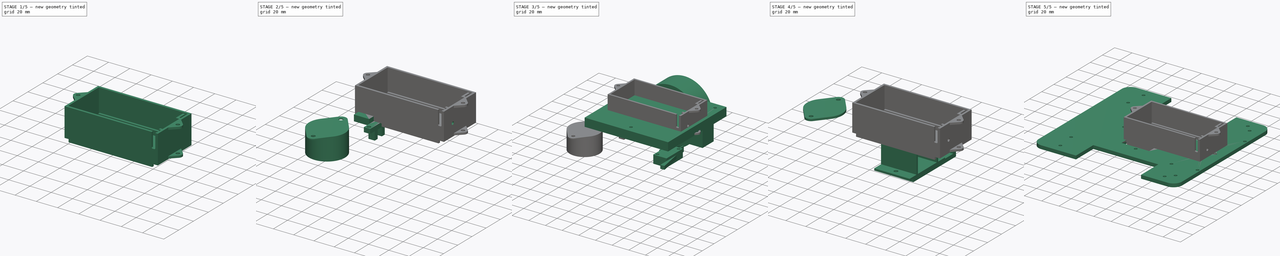
[diagram: build sequence overview — one tinted view per stage of 5, left to right]
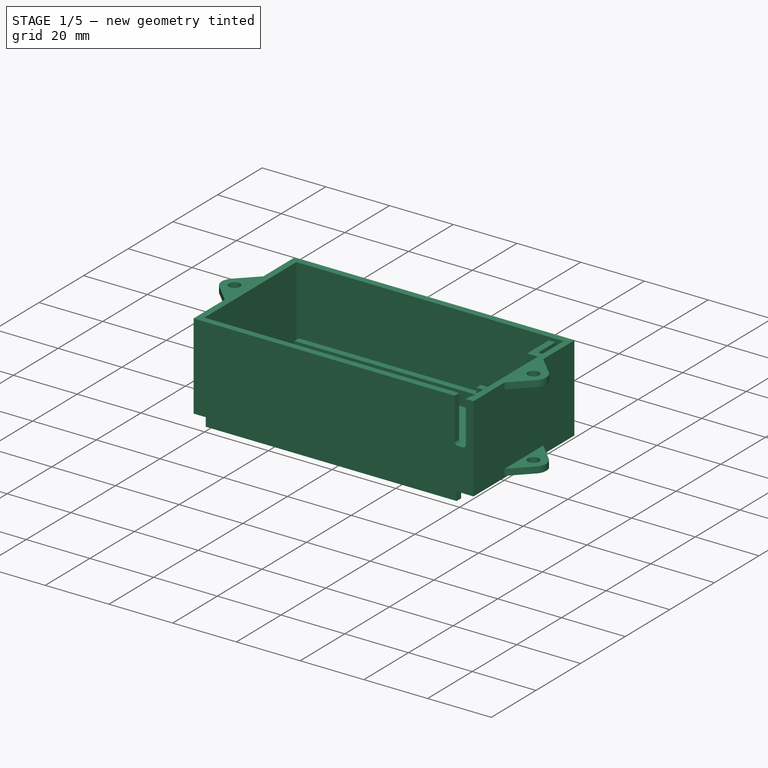
[diagram: stage 1 of 5 — iso view after this stage's code; geometry added in this stage tinted green]
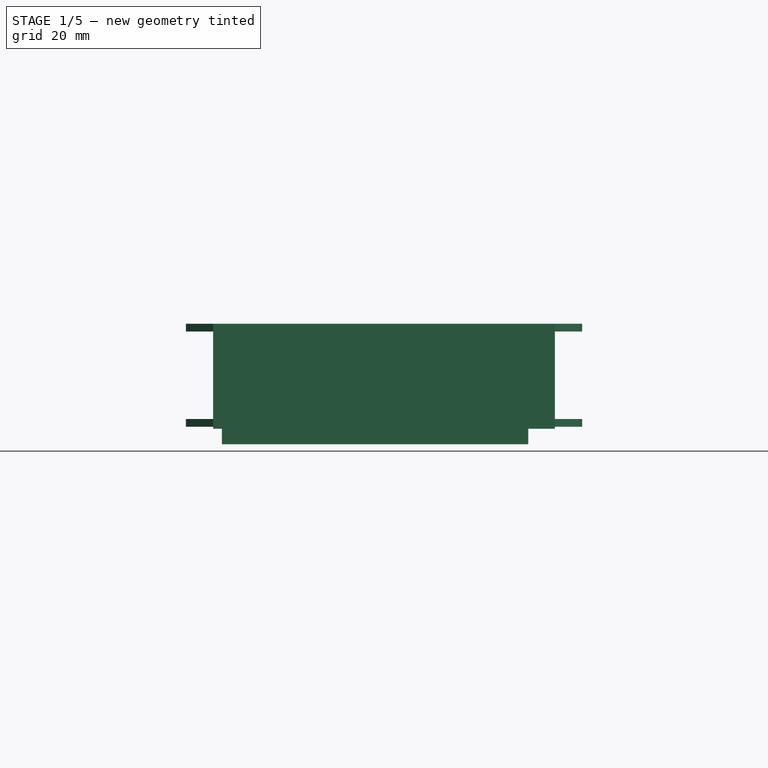
[diagram: stage 1 of 5 — front view after this stage's code; geometry added in this stage tinted green]
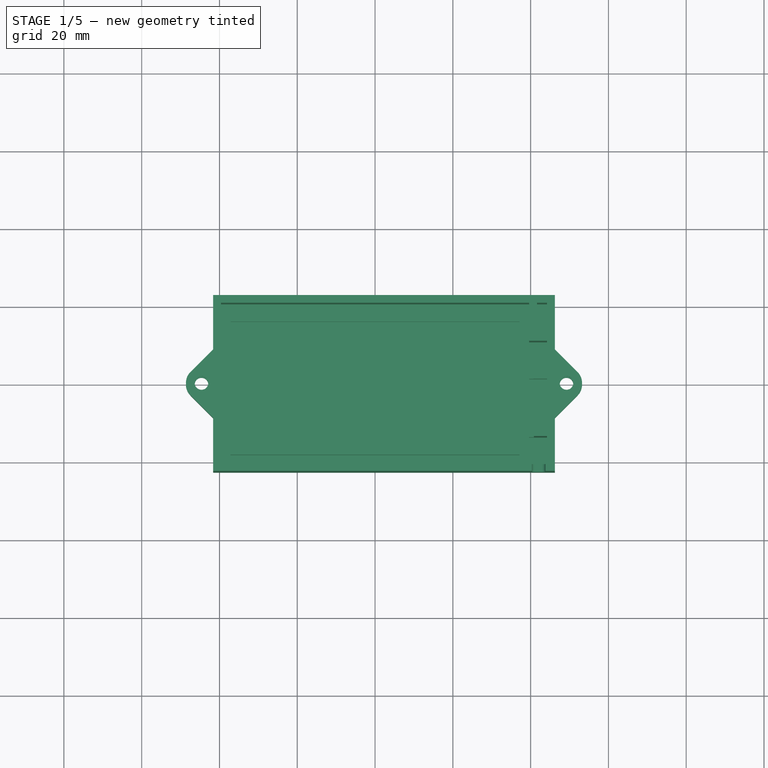
[diagram: stage 1 of 5 — top view after this stage's code; geometry added in this stage tinted green]
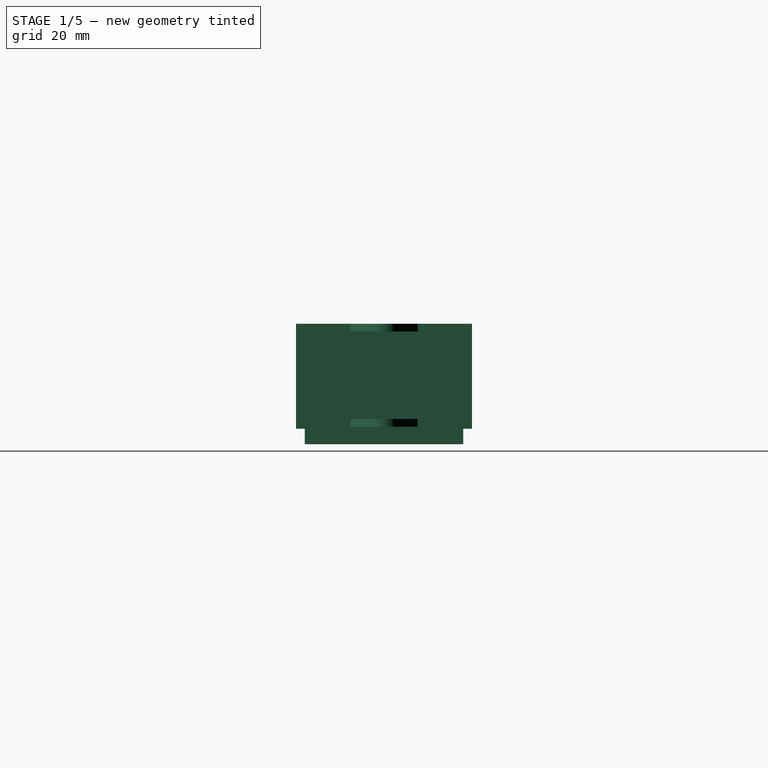
[diagram: stage 1 of 5 — right view after this stage's code; geometry added in this stage tinted green]
FCSTD DOCUMENT  (FreeCAD 0.21R33668 +26 (Git))
Label: baseRoulante
License: All rights reserved
LicenseURL: http://en.wikipedia.org/wiki/All_rights_reserved
objects: Sketcher::SketchObject×60, PartDesign::Pad×44, PartDesign::SubShapeBinder×23, PartDesign::Body×19, PartDesign::Pocket×14, App::Part×4, Part::Mirroring×3, PartDesign::FeatureBase×3, Spreadsheet::Sheet×2, PartDesign::Revolution×1
note: 226 computed .brp shape members not serialized (recipe doc carries the construction recipe); baked Part::Feature solids carry a one-line shape summary decoded from their .brp

FEATURE [Sketcher::SketchObject] Sketch  label="BoitierBatteriePatronEsquisseXy"
  FullyConstrained = true
  MapMode = 5
  expr: .Constraints.chargeurEpaisseur = <<BoitierBatterieDimensions>>.chargeurEpaisseur
  expr: .Constraints.chargeurLongeur = <<BoitierBatterieDimensions>>.chargeurLongeur
  expr: .Constraints.chargeurPcbEpaisseur = <<BoitierBatterieDimensions>>.chargeurPcbEpaisseur
  expr: .Constraints.chargeurPortUsbLargeur = <<BoitierBatterieDimensions>>.chargeurPortUsbLargeur
  expr: .Constraints.chargeurSupportEpaisseur = <<BoitierBatterieDimensions>>.chargeurSupportEpaisseur
  expr: .Constraints.chargeurSupportMargeBord = <<BoitierBatterieDimensions>>.chargeurSupportMargeBord
  expr: .Constraints.filBatteriePercageDiametre = <<BoitierBatterieDimensions>>.filBatteriePercageDiametre
  expr: .Constraints.plastiqueEpaisseur = Spreadsheet.plastiqueEpaisseur
  expr: .Constraints.supportBatterieLargeur = <<BoitierBatterieDimensions>>.supportBatterieLargeur
  expr: .Constraints.supportBatterieLongueur = <<BoitierBatterieDimensions>>.supportBatterieLongueur
  expr: .Constraints.supportBatterieMarge = Spreadsheet.marge
  expr: .Constraints.supportBatterieSupportEpaisseur = <<BoitierBatterieDimensions>>.supportBatterieSupportEpaisseur
  expr: .Constraints.supportBatterieSupportMargeBord = <<BoitierBatterieDimensions>>.supportBatterieSupportMargeBord
  sketch-geometry (83):
    g0: LineSegment StartX=-39.125 StartY=20.125 StartZ=0 EndX=39.125 EndY=20.125 EndZ=0
    g1: LineSegment StartX=39.125 StartY=20.125 StartZ=0 EndX=39.125 EndY=-20.125 EndZ=0
    g2: LineSegment StartX=39.125 StartY=-20.125 StartZ=0 EndX=-39.125 EndY=-20.125 EndZ=0
    g3: LineSegment StartX=-39.125 StartY=-20.125 StartZ=0 EndX=-39.125 EndY=20.125 EndZ=0
    g4: LineSegment StartX=-39.125 StartY=20.125 StartZ=0 EndX=-39.625 EndY=20.125 EndZ=0
    g5: LineSegment StartX=-39.625 StartY=20.125 StartZ=0 EndX=-41.625 EndY=20.125 EndZ=0
    g6: LineSegment StartX=-39.125 StartY=20.125 StartZ=0 EndX=-39.125 EndY=20.625 EndZ=0
    g7: LineSegment StartX=-39.125 StartY=20.625 StartZ=0 EndX=-39.125 EndY=22.625 EndZ=0
    g8: LineSegment StartX=39.125 StartY=-20.125 StartZ=0 EndX=39.125 EndY=-20.625 EndZ=0
    g9: LineSegment StartX=39.125 StartY=-22.625 StartZ=0 EndX=39.125 EndY=-20.625 EndZ=0
    g10: LineSegment StartX=-41.625 StartY=22.625 StartZ=0 EndX=39.125 EndY=22.625 EndZ=0
    g11: LineSegment StartX=39.125 StartY=-22.625 StartZ=0 EndX=-41.625 EndY=-22.625 EndZ=0
    g12: LineSegment StartX=-39.625 StartY=20.625 StartZ=0 EndX=39.125 EndY=20.625 EndZ=0
    g13: LineSegment StartX=39.125 StartY=-20.625 StartZ=0 EndX=-39.625 EndY=-20.625 EndZ=0
    g14: LineSegment StartX=39.125 StartY=20.125 StartZ=0 EndX=39.125 EndY=20.625 EndZ=0
    g15: LineSegment StartX=44.225 StartY=-22.625 StartZ=0 EndX=46.225 EndY=-22.625 EndZ=0
    g16: LineSegment StartX=46.225 StartY=-22.625 StartZ=0 EndX=46.225 EndY=22.625 EndZ=0
    g17: GeomPoint X=44.225 Y=10.375 Z=0
    g18: LineSegment StartX=39.125 StartY=-20.625 StartZ=0 EndX=39.625 EndY=-20.625 EndZ=0
    g19: LineSegment StartX=39.125 StartY=20.625 StartZ=0 EndX=39.625 EndY=20.625 EndZ=0
    g20: LineSegment StartX=39.125 StartY=22.625 StartZ=0 EndX=46.225 EndY=22.625 EndZ=0
    g21: GeomPoint X=44.225 Y=10.875 Z=0
    g22: LineSegment StartX=44.225 StartY=10.875 StartZ=0 EndX=39.625 EndY=10.875 EndZ=0
    g23: LineSegment StartX=39.625 StartY=10.875 StartZ=0 EndX=39.625 EndY=20.625 EndZ=0
    g24: LineSegment StartX=39.625 StartY=10.875 StartZ=0 EndX=39.625 EndY=-20.125 EndZ=0
    g25: LineSegment StartX=39.625 StartY=-20.125 StartZ=0 EndX=39.125 EndY=-20.125 EndZ=0
    g26: LineSegment StartX=39.625 StartY=-20.125 StartZ=0 EndX=39.625 EndY=-20.625 EndZ=0
    g27: LineSegment StartX=39.625 StartY=20.625 StartZ=0 EndX=41.625 EndY=20.625 EndZ=0
    g28: LineSegment StartX=41.625 StartY=20.625 StartZ=0 EndX=44.225 EndY=20.625 EndZ=0
    g29: LineSegment StartX=41.625 StartY=12.875 StartZ=0 EndX=44.225 EndY=12.875 EndZ=0
    g30: LineSegment StartX=44.225 StartY=10.875 StartZ=0 EndX=44.225 EndY=10.375 EndZ=0
    g31: LineSegment StartX=44.225 StartY=12.875 StartZ=0 EndX=44.225 EndY=10.875 EndZ=0
    g32: LineSegment StartX=-37.125 StartY=18.125 StartZ=0 EndX=37.125 EndY=18.125 EndZ=0
    g33: LineSegment StartX=37.125 StartY=18.125 StartZ=0 EndX=37.125 EndY=16.125 EndZ=0
    g34: LineSegment StartX=37.125 StartY=16.125 StartZ=0 EndX=-37.125 EndY=16.125 EndZ=0
    g35: LineSegment StartX=-37.125 StartY=16.125 StartZ=0 EndX=-37.125 EndY=18.125 EndZ=0
    g36: LineSegment StartX=-37.125 StartY=-16.125 StartZ=0 EndX=37.125 EndY=-16.125 EndZ=0
    g37: LineSegment StartX=37.125 StartY=-16.125 StartZ=0 EndX=37.125 EndY=-18.125 EndZ=0
    g38: LineSegment StartX=37.125 StartY=-18.125 StartZ=0 EndX=-37.125 EndY=-18.125 EndZ=0
    g39: LineSegment StartX=-37.125 StartY=-18.125 StartZ=0 EndX=-37.125 EndY=-16.125 EndZ=0
    g40: LineSegment StartX=-37.125 StartY=18.125 StartZ=0 EndX=-37.125 EndY=20.125 EndZ=0
    g41: LineSegment StartX=40.325 StartY=-22.625 StartZ=0 EndX=40.325 EndY=-20.625 EndZ=0
    g42: LineSegment StartX=43.825 StartY=-22.625 StartZ=0 EndX=43.825 EndY=-20.625 EndZ=0
    g43: LineSegment StartX=39.625 StartY=-13.625 StartZ=0 EndX=39.625 EndY=-11.625 EndZ=0
    g44: LineSegment StartX=39.625 StartY=1.375 StartZ=0 EndX=39.625 EndY=3.375 EndZ=0
    g45: LineSegment StartX=44.225 StartY=10.375 StartZ=0 EndX=44.225 EndY=3.375 EndZ=0
    g46: LineSegment StartX=44.225 StartY=3.375 StartZ=0 EndX=44.225 EndY=1.375 EndZ=0
    g47: LineSegment StartX=44.225 StartY=1.375 StartZ=0 EndX=44.225 EndY=-11.625 EndZ=0
    g48: LineSegment StartX=44.225 StartY=-11.625 StartZ=0 EndX=44.225 EndY=-13.625 EndZ=0
    g49: LineSegment StartX=44.225 StartY=-13.625 StartZ=0 EndX=44.225 EndY=-20.625 EndZ=0
    g50: LineSegment StartX=39.625 StartY=-20.625 StartZ=0 EndX=40.325 EndY=-20.625 EndZ=0
    g51: LineSegment StartX=40.325 StartY=-20.625 StartZ=0 EndX=43.825 EndY=-20.625 EndZ=0
    g52: LineSegment StartX=43.825 StartY=-20.625 StartZ=0 EndX=44.225 EndY=-20.625 EndZ=0
    g53: LineSegment StartX=39.125 StartY=-22.625 StartZ=0 EndX=40.325 EndY=-22.625 EndZ=0
    g54: LineSegment StartX=40.325 StartY=-22.625 StartZ=0 EndX=43.825 EndY=-22.625 EndZ=0
    g55: LineSegment StartX=43.825 StartY=-22.625 StartZ=0 EndX=44.225 EndY=-22.625 EndZ=0
    g56: LineSegment StartX=39.625 StartY=3.375 StartZ=0 EndX=40.825 EndY=3.375 EndZ=0
    g57: LineSegment StartX=40.825 StartY=3.375 StartZ=0 EndX=44.225 EndY=3.375 EndZ=0
    g58: LineSegment StartX=44.225 StartY=1.375 StartZ=0 EndX=40.825 EndY=1.375 EndZ=0
    g59: LineSegment StartX=40.825 StartY=1.375 StartZ=0 EndX=39.625 EndY=1.375 EndZ=0
    g60: LineSegment StartX=40.825 StartY=3.375 StartZ=0 EndX=40.825 EndY=1.375 EndZ=0
    g61: LineSegment StartX=39.625 StartY=-11.625 StartZ=0 EndX=40.825 EndY=-11.625 EndZ=0
    g62: LineSegment StartX=40.825 StartY=-11.625 StartZ=0 EndX=44.225 EndY=-11.625 EndZ=0
    g63: LineSegment StartX=44.225 StartY=-13.625 StartZ=0 EndX=40.825 EndY=-13.625 EndZ=0
    g64: LineSegment StartX=40.825 StartY=-13.625 StartZ=0 EndX=39.625 EndY=-13.625 EndZ=0
    g65: LineSegment StartX=40.825 StartY=-11.625 StartZ=0 EndX=40.825 EndY=-13.625 EndZ=0
    g66: LineSegment StartX=-41.625 StartY=2 StartZ=0 EndX=-41.625 EndY=22.625 EndZ=0
    g67: LineSegment StartX=-39.625 StartY=2 StartZ=0 EndX=-39.625 EndY=20.625 EndZ=0
    g68: LineSegment StartX=-41.625 StartY=-22.625 StartZ=0 EndX=-41.625 EndY=-2 EndZ=0
    g69: LineSegment StartX=-39.625 StartY=-20.625 StartZ=0 EndX=-39.625 EndY=-2 EndZ=0
    g70: LineSegment StartX=-41.625 StartY=2 StartZ=0 EndX=-39.625 EndY=2 EndZ=0
    g71: LineSegment StartX=-41.625 StartY=-2 StartZ=0 EndX=-39.625 EndY=-2 EndZ=0
    g72: LineSegment StartX=-39.625 StartY=2 StartZ=0 EndX=-39.625 EndY=-2 EndZ=0
    g73: LineSegment StartX=-41.625 StartY=2 StartZ=0 EndX=-41.625 EndY=-2 EndZ=0
    g74: LineSegment StartX=44.225 StartY=20.625 StartZ=0 EndX=44.225 EndY=16.75 EndZ=0
    g75: LineSegment StartX=44.225 StartY=16.75 StartZ=0 EndX=44.225 EndY=12.875 EndZ=0
    g76: LineSegment StartX=41.625 StartY=20.625 StartZ=0 EndX=41.625 EndY=16.75 EndZ=0
    g77: LineSegment StartX=41.625 StartY=16.75 StartZ=0 EndX=41.625 EndY=12.875 EndZ=0
    g78: LineSegment StartX=-37.125 StartY=18.125 StartZ=0 EndX=-39.125 EndY=18.125 EndZ=0
    g79: LineSegment StartX=39.625 StartY=-20.125 StartZ=0 EndX=43.725 EndY=-20.125 EndZ=0
    g80: LineSegment StartX=43.725 StartY=-20.125 StartZ=0 EndX=44.225 EndY=-20.125 EndZ=0
    g81: LineSegment StartX=43.725 StartY=-20.125 StartZ=0 EndX=43.725 EndY=20.125 EndZ=0
    g82: LineSegment StartX=43.725 StartY=20.125 StartZ=0 EndX=39.125 EndY=20.125 EndZ=0
  constraints (226):
    c: Coincident(g0,g1)
    c: Coincident(g1,g2)
    c: Coincident(g2,g3)
    c: Coincident(g3,g0)
    c: Horizontal(g2)
    c: Vertical(g3)
    c: DistanceX(g0,g0) = 78.25  'supportBatterieLongueur'
    c: Symmetric(g0,g0,g-2)
    c: Symmetric(g1,g0,g-1)
    c: Coincident(g4,g0)
    c: Horizontal(g4)
    c: Coincident(g5,g4)
    c: Horizontal(g5)
    c: DistanceX(g4,g4) = 0.5  'supportBatterieMarge'
    c: DistanceX(g5,g5) = 2  'plastiqueEpaisseur'
    c: Coincident(g6,g0)
    c: Vertical(g6)
    c: Coincident(g7,g6)
    c: Vertical(g7)
    c: Coincident(g8,g1)
    c: Vertical(g8)
    c: Vertical(g9)
    c: Equal(g4,g6)
    c: Equal(g6,g8)
    c: Coincident(g9,g8)
    c: Coincident(g11,g68)
    c: Coincident(g66,g10)
    c: Horizontal(g10)
    c: Horizontal(g11)
    c: PointOnObject(g7,g10)
    c: Coincident(g13,g69)
    c: Coincident(g67,g12)
    c: Horizontal(g12)
    c: Horizontal(g13)
    c: PointOnObject(g6,g12)
    c: Coincident(g8,g13)
    c: Coincident(g9,g11)
    c: Coincident(g14,g0)
    c: Coincident(g14,g12)
    c: Vertical(g14)
    c: Coincident(g53,g11)
    c: Coincident(g15,g55)
    c: Horizontal(g15)
    c: Coincident(g16,g15)
    c: Vertical(g16)
    c: DistanceY(g52,g17) = 31  'chargeurLongeur'
    c: Coincident(g18,g13)
    c: Coincident(g50,g18)
    c: Equal(g18,g8)
    c: DistanceX(g50,g52) = 4.6  'chargeurEpaisseur'
    c: Vertical(g55,g52)
    c: Coincident(g19,g12)
    c: Horizontal(g19)
    c: Coincident(g20,g10)
    c: Coincident(g20,g16)
    c: Horizontal(g20)
    c: DistanceY(g3,g3) = 40.25  'supportBatterieLargeur'
    c: Horizontal(g18)
    c: Coincident(g22,g21)
    c: Horizontal(g22)
    c: Coincident(g23,g22)
    c: Vertical(g23)
    c: Coincident(g19,g23)
    c: Equal(g14,g19)
    c: Coincident(g24,g22)
    c: Vertical(g24)
    c: Coincident(g25,g24)
    c: Coincident(g25,g1)
    c: Horizontal(g25)
    c: Coincident(g26,g24)
    c: Coincident(g26,g18)
    c: Coincident(g27,g19)
    c: Horizontal(g27)
    c: Coincident(g28,g27)
    c: Horizontal(g28)
    c: Coincident(g76,g28)
    c: Coincident(g29,g77)
    c: Horizontal(g29)
    c: Coincident(g74,g28)
    c: Coincident(g75,g29)
    c: Coincident(g30,g22)
    c: Coincident(g30,g17)
    c: Coincident(g45,g17)
    c: Coincident(g49,g52)
    c: Vertical(g30)
    c: Vertical(g22,g29)
    c: Coincident(g31,g29)
    c: Coincident(g31,g22)
    c: Vertical(g12,g10)
    c: Equal(g31,g27)
    c: Equal(g27,g9)
    c: Equal(g9,g5)
    c: Equal(g5,g7)
    c: Equal(g5,g15)
    c: Coincident(g32,g33)
    c: Coincident(g33,g34)
    c: Coincident(g34,g35)
    c: Coincident(g35,g32)
    c: Horizontal(g34)
    c: Vertical(g33)
    c: Vertical(g35)
    c: Coincident(g36,g37)
    c: Coincident(g37,g38)
    c: Coincident(g38,g39)
    c: Coincident(g39,g36)
    c: Horizontal(g36)
    c: Horizontal(g38)
    c: Vertical(g37)
    c: Vertical(g39)
    c: Equal(g35,g39)
    c: Equal(g32,g36)
    c: Coincident(g40,g32)
    c: PointOnObject(g40,g0)
    c: Vertical(g40)
    c: DistanceY(g40,g40) = 2  'supportBatterieSupportMargeBord'
    c: DistanceY(g35,g35) = 2  'supportBatterieSupportEpaisseur'
    c: Symmetric(g32,g32,g-2)
    c: Symmetric(g34,g36,g-1)
    c: Equal(g30,g4)
    c: Vertical(g41)
    c: Vertical(g42)
    c: DistanceX(g41,g42) = 3.5  'chargeurPortUsbLargeur'
    c: Coincident(g64,g43)
    c: Coincident(g43,g61)
    c: Vertical(g43)
    c: Coincident(g59,g44)
    c: Coincident(g44,g56)
    c: Vertical(g44)
    c: Coincident(g45,g46)
    c: Vertical(g45)
    c: Coincident(g57,g45)
    c: Coincident(g46,g47)
    c: Vertical(g46)
    c: Coincident(g46,g58)
    c: DistanceY(g44,g44) = 2  'chargeurSupportEpaisseur'
    c: Coincident(g47,g48)
    c: Vertical(g47)
    c: Coincident(g48,g49)
    c: Vertical(g48)
    c: Vertical(g49)
    c: Coincident(g62,g47)
    c: Coincident(g63,g48)
    c: Equal(g44,g43)
    c: Equal(g45,g49)
    c: Coincident(g50,g51)
    c: Horizontal(g50)
    c: Coincident(g41,g50)
    c: Coincident(g51,g52)
    c: Horizontal(g51)
    c: Horizontal(g52)
    c: Coincident(g42,g51)
    c: Coincident(g53,g54)
    c: Horizontal(g53)
    c: Coincident(g41,g53)
    c: Coincident(g54,g55)
    c: Horizontal(g54)
    c: Horizontal(g55)
    c: Coincident(g42,g54)
    c: Coincident(g56,g57)
    c: Horizontal(g56)
    c: Horizontal(g57)
    c: Coincident(g58,g59)
    c: Horizontal(g58)
    c: Horizontal(g59)
    c: Coincident(g60,g56)
    c: Coincident(g60,g58)
    c: Vertical(g60)
    c: PointOnObject(g44,g24)
    c: Coincident(g61,g62)
    c: Horizontal(g61)
    c: Horizontal(g62)
    c: Coincident(g63,g64)
    c: Horizontal(g63)
    c: Horizontal(g64)
    c: Coincident(g65,g61)
    c: Vertical(g65)
    c: Coincident(g63,g65)
    c: PointOnObject(g43,g24)
    c: Vertical(g66)
    c: PointOnObject(g5,g66)
    c: Vertical(g67)
    c: PointOnObject(g4,g67)
    c: Vertical(g68)
    c: Vertical(g69)
    c: Coincident(g70,g66)
    c: Coincident(g70,g67)
    c: Horizontal(g70)
    c: Coincident(g71,g68)
    c: Coincident(g71,g69)
    c: Horizontal(g71)
    c: Symmetric(g66,g68,g-1)
    c: DistanceY(g68,g66) = 4  'filBatteriePercageDiametre'
    c: Coincident(g72,g67)
    c: Coincident(g72,g69)
    c: Vertical(g72)
    c: Coincident(g73,g66)
    c: Coincident(g73,g68)
    c: Coincident(g74,g75)
    c: Vertical(g74)
    c: Vertical(g75)
    c: Equal(g74,g75)
    c: Coincident(g76,g77)
    c: Vertical(g76)
    c: Vertical(g77)
    c: Coincident(g78,g32)
    c: PointOnObject(g78,g3)
    c: Horizontal(g78)
    c: Equal(g78,g40)
    c: Equal(g56,g61)
    c: Equal(g61,g53)
    c: DistanceX(g56,g56) = 1.2  'chargeurPcbEpaisseur'
    c: DistanceX(g10,g16) = 87.85  'boitierLongeur'
    c: DistanceY(g11,g10) = 45.25  'boitierLargeur'
    c: DistanceY(g49,g49) = 7  'chargeurSupportMargeBord'
    c: Coincident(g79,g25)
    c: Horizontal(g79)
    c: Coincident(g80,g79)
    c: PointOnObject(g80,g49)
    c: Horizontal(g80)
    c: Equal(g80,g4)
    c: Coincident(g81,g79)
    c: Vertical(g81)
    c: Coincident(g82,g81)
    c: Coincident(g82,g0)
    c: Horizontal(g82)
    c: Equal(g77,g76)
FEATURE [PartDesign::SubShapeBinder] Binder002  label="BoitierBatterieBoitierPatronEsquisseXyCopieLiee"
  BindCopyOnChange = 0
  BindMode = 0
  ClaimChildren = false
  Context = -> Part002 [Body.Binder002.]
  Fuse = false
  MakeFace = true
  OffsetFill = false
  OffsetIntersection = false
  OffsetJoinType = 0
  OffsetOpenResult = false
  PartialLoad = false
  Relative = true
  Support = -> [Sketch]
  _Version = 2
FEATURE [Sketcher::SketchObject] Sketch006  label="BoitierBatterieFondEsquisse"
  ExternalGeometry = -> [Binder002]
  FullyConstrained = true
  MapMode = 5
  Support = -> [XY_Plane]
  sketch-geometry (4):
    g0: LineSegment StartX=-41.625 StartY=-22.625 StartZ=0 EndX=46.225 EndY=-22.625 EndZ=0
    g1: LineSegment StartX=46.225 StartY=-22.625 StartZ=0 EndX=46.225 EndY=22.625 EndZ=0
    g2: LineSegment StartX=46.225 StartY=22.625 StartZ=0 EndX=-41.625 EndY=22.625 EndZ=0
    g3: LineSegment StartX=-41.625 StartY=22.625 StartZ=0 EndX=-41.625 EndY=-22.625 EndZ=0
  constraints (10):
    c: Coincident(g0,g1)
    c: Coincident(g1,g2)
    c: Coincident(g2,g3)
    c: Coincident(g3,g0)
    c: Horizontal(g0)
    c: Horizontal(g2)
    c: Vertical(g1)
    c: Vertical(g3)
    c: Coincident(g0,g-4)
    c: Coincident(g1,g-3)
FEATURE [PartDesign::Pad] Pad  label="BoitierBatterieFond"
  Direction = (0,0,1)
  Length = 2
  Length2 = 10
  Profile = -> Sketch006
  ReferenceAxis = -> Sketch006 [N_Axis]
  Type = 0
  expr: Length = Spreadsheet.plastiqueEpaisseur
FEATURE [Sketcher::SketchObject] Sketch007  label="BoitierBatterieSupportBatterieSupportEsquisse"
  ExternalGeometry = -> [Binder002]
  FullyConstrained = true
  MapMode = 5
  Placement = pos=(0,0,2) rot=(0,0,1;0rad)
  Support = -> [Pad]
  sketch-geometry (8):
    g0: LineSegment StartX=-37.125 StartY=16.125 StartZ=0 EndX=37.125 EndY=16.125 EndZ=0
    g1: LineSegment StartX=37.125 StartY=16.125 StartZ=0 EndX=37.125 EndY=18.125 EndZ=0
    g2: LineSegment StartX=37.125 StartY=18.125 StartZ=0 EndX=-37.125 EndY=18.125 EndZ=0
    g3: LineSegment StartX=-37.125 StartY=18.125 StartZ=0 EndX=-37.125 EndY=16.125 EndZ=0
    g4: LineSegment StartX=-37.125 StartY=-18.125 StartZ=0 EndX=37.125 EndY=-18.125 EndZ=0
    g5: LineSegment StartX=37.125 StartY=-18.125 StartZ=0 EndX=37.125 EndY=-16.125 EndZ=0
    g6: LineSegment StartX=37.125 StartY=-16.125 StartZ=0 EndX=-37.125 EndY=-16.125 EndZ=0
    g7: LineSegment StartX=-37.125 StartY=-16.125 StartZ=0 EndX=-37.125 EndY=-18.125 EndZ=0
  constraints (20):
    c: Coincident(g0,g1)
    c: Coincident(g1,g2)
    c: Coincident(g2,g3)
    c: Coincident(g3,g0)
    c: Horizontal(g0)
    c: Horizontal(g2)
    c: Vertical(g1)
    c: Vertical(g3)
    c: Coincident(g0,g-3)
    c: Coincident(g1,g-4)
    c: Coincident(g4,g5)
    c: Coincident(g5,g6)
    c: Coincident(g6,g7)
    c: Coincident(g7,g4)
    c: Horizontal(g4)
    c: Horizontal(g6)
    c: Vertical(g5)
    c: Vertical(g7)
    c: Coincident(g4,g-6)
    c: Coincident(g5,g-5)
FEATURE [PartDesign::Pad] Pad001  label="BoitierBatterieSupportBatterieSupport"
  BaseFeature = -> Pad
  Direction = (0,0,1)
  Length = 5
  Length2 = 10
  Profile = -> Sketch007
  ReferenceAxis = -> Sketch007 [N_Axis]
  Type = 0
  expr: Length = <<BoitierBatterieDimensions>>.supportBatterieSupportHauteur
FEATURE [Sketcher::SketchObject] Sketch008  label="BoitierBatteriePourtourEsquisse"
  ExternalGeometry = -> [Binder002]
  FullyConstrained = true
  MapMode = 5
  Placement = pos=(0,0,2) rot=(0,0,1;0rad)
  Support = -> [Pad001]
  sketch-geometry (14):
    g0: LineSegment StartX=-41.625 StartY=22.625 StartZ=0 EndX=46.225 EndY=22.625 EndZ=0
    g1: LineSegment StartX=46.225 StartY=22.625 StartZ=0 EndX=46.225 EndY=-22.625 EndZ=0
    g2: LineSegment StartX=46.225 StartY=-22.625 StartZ=0 EndX=-41.625 EndY=-22.625 EndZ=0
    g3: LineSegment StartX=-41.625 StartY=-22.625 StartZ=0 EndX=-41.625 EndY=22.625 EndZ=0
    g4: LineSegment StartX=-39.625 StartY=20.625 StartZ=0 EndX=39.625 EndY=20.625 EndZ=0
    g5: LineSegment StartX=39.625 StartY=20.625 StartZ=0 EndX=39.625 EndY=10.875 EndZ=0
    g6: LineSegment StartX=41.625 StartY=20.625 StartZ=0 EndX=44.225 EndY=20.625 EndZ=0
    g7: LineSegment StartX=41.625 StartY=20.625 StartZ=0 EndX=41.625 EndY=12.875 EndZ=0
    g8: LineSegment StartX=41.625 StartY=12.875 StartZ=0 EndX=44.225 EndY=12.875 EndZ=0
    g9: LineSegment StartX=44.225 StartY=12.875 StartZ=0 EndX=44.225 EndY=20.625 EndZ=0
    g10: LineSegment StartX=39.625 StartY=10.875 StartZ=0 EndX=44.225 EndY=10.875 EndZ=0
    g11: LineSegment StartX=44.225 StartY=10.875 StartZ=0 EndX=44.225 EndY=-20.625 EndZ=0
    g12: LineSegment StartX=-39.625 StartY=20.625 StartZ=0 EndX=-39.625 EndY=-20.625 EndZ=0
    g13: LineSegment StartX=-39.625 StartY=-20.625 StartZ=0 EndX=44.225 EndY=-20.625 EndZ=0
  constraints (28):
    c: Coincident(g0,g-3)
    c: Coincident(g0,g-5)
    c: Coincident(g0,g1)
    c: Coincident(g1,g-14)
    c: Coincident(g1,g2)
    c: Coincident(g2,g-15)
    c: Coincident(g2,g3)
    c: Coincident(g3,g0)
    c: Coincident(g4,g-4)
    c: Coincident(g4,g-12)
    c: Coincident(g4,g5)
    c: Coincident(g5,g-10)
    c: Coincident(g6,g-7)
    c: Coincident(g6,g-6)
    c: Coincident(g7,g6)
    c: Coincident(g7,g-9)
    c: Coincident(g8,g7)
    c: Coincident(g8,g-8)
    c: Coincident(g9,g8)
    c: Coincident(g9,g6)
    c: Coincident(g10,g5)
    c: Coincident(g10,g-11)
    c: Coincident(g11,g10)
    c: Coincident(g11,g-13)
    c: Coincident(g12,g4)
    c: Coincident(g12,g-16)
    c: Coincident(g13,g12)
    c: Coincident(g13,g11)
FEATURE [PartDesign::Pad] Pad002  label="BoitierBatteriePourtour"
  BaseFeature = -> Pad001
  Direction = (0,0,1)
  Length = 25
  Length2 = 10
  Profile = -> Sketch008
  ReferenceAxis = -> Sketch008 [N_Axis]
  Type = 0
  expr: Length = <<BoitierBatterieDimensions>>.boitierPourtourHauteur
FEATURE [Sketcher::SketchObject] Sketch009  label="BoitierBatterieChargeurSupportEsquisse"
  ExternalGeometry = -> [Binder002]
  FullyConstrained = true
  MapMode = 5
  Placement = pos=(0,0,2) rot=(0,0,1;0rad)
  Support = -> [Pad]
  sketch-geometry (8):
    g0: LineSegment StartX=39.625 StartY=3.375 StartZ=0 EndX=44.225 EndY=3.375 EndZ=0
    g1: LineSegment StartX=44.225 StartY=3.375 StartZ=0 EndX=44.225 EndY=1.375 EndZ=0
    g2: LineSegment StartX=44.225 StartY=1.375 StartZ=0 EndX=39.625 EndY=1.375 EndZ=0
    g3: LineSegment StartX=39.625 StartY=1.375 StartZ=0 EndX=39.625 EndY=3.375 EndZ=0
    g4: LineSegment StartX=39.625 StartY=-13.625 StartZ=0 EndX=44.225 EndY=-13.625 EndZ=0
    g5: LineSegment StartX=44.225 StartY=-13.625 StartZ=0 EndX=44.225 EndY=-11.625 EndZ=0
    g6: LineSegment StartX=44.225 StartY=-11.625 StartZ=0 EndX=39.625 EndY=-11.625 EndZ=0
    g7: LineSegment StartX=39.625 StartY=-11.625 StartZ=0 EndX=39.625 EndY=-13.625 EndZ=0
  constraints (20):
    c: Coincident(g0,g1)
    c: Coincident(g1,g2)
    c: Coincident(g2,g3)
    c: Coincident(g3,g0)
    c: Horizontal(g0)
    c: Horizontal(g2)
    c: Vertical(g1)
    c: Vertical(g3)
    c: Coincident(g0,g-3)
    c: Coincident(g1,g-4)
    c: Coincident(g4,g5)
    c: Coincident(g5,g6)
    c: Coincident(g6,g7)
    c: Coincident(g7,g4)
    c: Horizontal(g4)
    c: Horizontal(g6)
    c: Vertical(g5)
    c: Vertical(g7)
    c: Coincident(g4,g-5)
    c: Coincident(g5,g-6)
FEATURE [PartDesign::Pad] Pad003  label="BoitierBatterieChargeurSupport"
  BaseFeature = -> Pad002
  Direction = (0,0,1)
  Length = 6
  Length2 = 10
  Profile = -> Sketch009
  ReferenceAxis = -> Sketch009 [N_Axis]
  Type = 0
  expr: Length = <<BoitierBatterieDimensions>>.chargeurSupportHauteur
FEATURE [Sketcher::SketchObject] Sketch010  label="BoitierBatterieChargeurSupportEncocheLongueEsquisse"
  ExternalGeometry = -> [Binder002]
  FullyConstrained = true
  MapMode = 5
  Placement = pos=(0,0,8) rot=(0,0,1;0rad)
  Support = -> [Pad003]
  sketch-geometry (4):
    g0: LineSegment StartX=40.825 StartY=-11.625 StartZ=0 EndX=44.225 EndY=-11.625 EndZ=0
    g1: LineSegment StartX=44.225 StartY=-11.625 StartZ=0 EndX=44.225 EndY=-13.625 EndZ=0
    g2: LineSegment StartX=44.225 StartY=-13.625 StartZ=0 EndX=40.825 EndY=-13.625 EndZ=0
    g3: LineSegment StartX=40.825 StartY=-13.625 StartZ=0 EndX=40.825 EndY=-11.625 EndZ=0
  constraints (10):
    c: Coincident(g0,g1)
    c: Coincident(g1,g2)
    c: Coincident(g2,g3)
    c: Coincident(g3,g0)
    c: Horizontal(g0)
    c: Horizontal(g2)
    c: Vertical(g1)
    c: Vertical(g3)
    c: Coincident(g0,g-3)
    c: Coincident(g1,g-4)
FEATURE [PartDesign::Pad] Pad004  label="BoitierBatterieChargeurSupportEncocheLongue"
  BaseFeature = -> Pad003
  Direction = (0,0,1)
  Length = 18
  Length2 = 10
  Profile = -> Sketch010
  ReferenceAxis = -> Sketch010 [N_Axis]
  Type = 0
  expr: Length = <<BoitierBatterieDimensions>>.chargeurLargeur
FEATURE [Sketcher::SketchObject] Sketch011  label="BoitierBatterieChargeurSupportEncocheCourteEsquisse"
  ExternalGeometry = -> [Binder002]
  FullyConstrained = true
  MapMode = 5
  Placement = pos=(0,0,8) rot=(0,0,1;0rad)
  Support = -> [Pad003]
  sketch-geometry (4):
    g0: LineSegment StartX=40.825 StartY=3.375 StartZ=0 EndX=44.225 EndY=3.375 EndZ=0
    g1: LineSegment StartX=44.225 StartY=3.375 StartZ=0 EndX=44.225 EndY=1.375 EndZ=0
    g2: LineSegment StartX=44.225 StartY=1.375 StartZ=0 EndX=40.825 EndY=1.375 EndZ=0
    g3: LineSegment StartX=40.825 StartY=1.375 StartZ=0 EndX=40.825 EndY=3.375 EndZ=0
  constraints (10):
    c: Coincident(g0,g1)
    c: Coincident(g1,g2)
    c: Coincident(g2,g3)
    c: Coincident(g3,g0)
    c: Horizontal(g0)
    c: Horizontal(g2)
    c: Vertical(g1)
    c: Vertical(g3)
    c: Coincident(g0,g-3)
    c: Coincident(g1,g-4)
FEATURE [PartDesign::Pad] Pad005  label="BoitierBatterieChargeurSupportEncocheCourte"
  BaseFeature = -> Pad004
  Direction = (0,0,1)
  Length = 1.5
  Length2 = 10
  Profile = -> Sketch011
  ReferenceAxis = -> Sketch011 [N_Axis]
  Type = 0
  expr: Length = <<BoitierBatterieDimensions>>.chargeurSupportEncocheCourteHauteur
FEATURE [Sketcher::SketchObject] Sketch013  label="BoitierBatteriePourtourCouvercleEncocheEsquisse"
  ExternalGeometry = -> [Binder002]
  FullyConstrained = true
  MapMode = 5
  Placement = pos=(0,0,27) rot=(0,0,1;0rad)
  Support = -> [Pad002]
  sketch-geometry (4):
    g0: LineSegment StartX=44.225 StartY=20.625 StartZ=0 EndX=39.625 EndY=20.625 EndZ=0
    g1: LineSegment StartX=39.625 StartY=20.625 StartZ=0 EndX=39.625 EndY=10.875 EndZ=0
    g2: LineSegment StartX=39.625 StartY=10.875 StartZ=0 EndX=44.225 EndY=10.875 EndZ=0
    g3: LineSegment StartX=44.225 StartY=10.875 StartZ=0 EndX=44.225 EndY=20.625 EndZ=0
  constraints (10):
    c: Coincident(g0,g1)
    c: Coincident(g1,g2)
    c: Coincident(g2,g3)
    c: Coincident(g3,g0)
    c: Horizontal(g0)
    c: Horizontal(g2)
    c: Vertical(g1)
    c: Vertical(g3)
    c: Coincident(g0,g-3)
    c: Coincident(g1,g-4)
FEATURE [PartDesign::Pocket] Pocket001  label="BoitierBatteriePourtourCouvercleEncoche"
  BaseFeature = -> Pad005
  Direction = (0,0,-1)
  Length = 1
  Length2 = 5
  Profile = -> Sketch013
  ReferenceAxis = -> Sketch013 [N_Axis]
  Type = 0
  expr: Length = Spreadsheet.couvercleRebordHauteur + Spreadsheet.marge
FEATURE [Sketcher::SketchObject] Sketch016  label="BoitierBatterieFilPercageEsquisse"
  ExternalGeometry = -> [Binder002]
  FullyConstrained = true
  MapMode = 5
  Placement = pos=(-40.625,-6e-15,0) rot=(0.57735,-0.57735,-0.57735;2.0944rad)
  expr: Constraints[6] = <<BoitierBatterieDimensions>>.filBatteriePercageCentreHauteur
  sketch-geometry (5):
    g0: LineSegment StartX=2 StartY=2 StartZ=0 EndX=2 EndY=6.5 EndZ=0
    g1: LineSegment StartX=-2 StartY=2 StartZ=0 EndX=-2 EndY=6.5 EndZ=0
    g2: LineSegment StartX=2 StartY=6.5 StartZ=0 EndX=-6e-15 EndY=6.5 EndZ=0
    g3: LineSegment StartX=-6.2e-15 StartY=6.5 StartZ=0 EndX=-2 EndY=6.5 EndZ=0
    g4: Circle CenterX=-6.2e-15 CenterY=6.5 CenterZ=0 NormalX=0 NormalY=0 NormalZ=1 AngleXU=0 Radius=2
  constraints (13):
    c: Vertical(g0)
    c: Vertical(g1)
    c: Coincident(g1,g3)
    c: Coincident(g0,g2)
    c: Coincident(g0,g-3)
    c: Coincident(g1,g-4)
    c: DistanceY(g0,g0) = 4.5
    c: Coincident(g2,g3)
    c: Horizontal(g2)
    c: Horizontal(g3)
    c: Coincident(g4,g2)
    c: PointOnObject(g1,g4)
    c: Equal(g3,g2)
FEATURE [PartDesign::Pocket] Pocket003  label="BoitierBatterieFilPercage"
  BaseFeature = -> Pocket001
  Direction = (1,0,0)
  Length = 2
  Length2 = 5
  Profile = -> Sketch016
  ReferenceAxis = -> Sketch016 [N_Axis]
  Type = 4
  expr: Length = <<BoitierBatterieDimensions>>.plastiqueEpaisseur
FEATURE [Sketcher::SketchObject] Sketch017  label="BoitierBatterieChargeurPortUsbEncocheEsquisse"
  ExternalGeometry = -> [Binder002]
  FullyConstrained = true
  MapMode = 5
  Placement = pos=(0,-22.625,0) rot=(1,0,0;1.5708rad)
  Support = -> [Pocket003]
  expr: Constraints[11] = <<BoitierBatterieDimensions>>.boitierPourtourHauteur + Spreadsheet.plastiqueEpaisseur
  expr: Constraints[12] = <<BoitierBatterieDimensions>>.chargeurPortUsbEncocheLongueurDepuisBord
  expr: Constraints[18] = <<BoitierBatterieDimensions>>.chargeurPortUsbDiametre
  sketch-geometry (10):
    g0: LineSegment StartX=40.325 StartY=2 StartZ=0 EndX=40.325 EndY=13 EndZ=0
    g1: LineSegment StartX=43.825 StartY=2 StartZ=0 EndX=43.825 EndY=13 EndZ=0
    g2: LineSegment StartX=40.325 StartY=14 StartZ=0 EndX=40.325 EndY=29 EndZ=0
    g3: LineSegment StartX=43.825 StartY=14 StartZ=0 EndX=43.825 EndY=29 EndZ=0
    g4: LineSegment StartX=40.325 StartY=29 StartZ=0 EndX=43.825 EndY=29 EndZ=0
    g5: LineSegment StartX=41.325 StartY=13 StartZ=0 EndX=42.825 EndY=13 EndZ=0
    g6: ArcOfCircle CenterX=41.325 CenterY=14 CenterZ=0 NormalX=0 NormalY=0 NormalZ=1 AngleXU=0 Radius=1 StartAngle=3.14159 EndAngle=4.71239
    g7: GeomPoint X=40.325 Y=13 Z=0
    g8: ArcOfCircle CenterX=42.825 CenterY=14 CenterZ=0 NormalX=0 NormalY=0 NormalZ=1 AngleXU=0 Radius=1 StartAngle=4.71239 EndAngle=6.28319
    g9: GeomPoint X=43.825 Y=13 Z=0
  constraints (24):
    c: Coincident(g0,g-3)
    c: Vertical(g0)
    c: Coincident(g1,g-4)
    c: Vertical(g1)
    c: Coincident(g7,g0)
    c: Coincident(g9,g1)
    c: Vertical(g3)
    c: Vertical(g2)
    c: Coincident(g4,g2)
    c: Coincident(g4,g3)
    c: Horizontal(g4)
    c: DistanceY(g1,g3) = 27
    c: DistanceY(g9,g3) = 16
    c: Horizontal(g5)
    c: PointOnObject(g7,g2)
    c: PointOnObject(g7,g5)
    c: Tangent(g2,g6) = 1.5708
    c: Tangent(g5,g6) = -1.5708
    c: Diameter(g6) = 2
    c: PointOnObject(g9,g3)
    c: PointOnObject(g9,g5)
    c: Tangent(g3,g8) = -1.5708
    c: Tangent(g5,g8) = -1.5708
    c: Equal(g6,g8)
FEATURE [PartDesign::Pocket] Pocket004  label="BoitierBatterieChargeurPortUsbEncoche"
  BaseFeature = -> Pocket003
  Direction = (0,1,-2e-16)
  Length = 5
  Length2 = 5
  Profile = -> Sketch017
  ReferenceAxis = -> Sketch017 [N_Axis]
  Type = 2
FEATURE [PartDesign::SubShapeBinder] Binder008  label="CarteElecCopieLiee"
  BindCopyOnChange = 0
  BindMode = 0
  ClaimChildren = false
  Context = -> Part001 [Body009.Binder008.]
  Fuse = false
  MakeFace = true
  OffsetFill = false
  OffsetIntersection = false
  OffsetJoinType = 0
  OffsetOpenResult = false
  PartialLoad = false
  Relative = true
  Support = -> [Body008[Pad029.Face8]]
  _Version = 2
FEATURE [PartDesign::SubShapeBinder] Binder009  label="CapteurVitesse1CopieLiee"
  BindCopyOnChange = 0
  BindMode = 0
  ClaimChildren = false
  Context = -> Part001 [Body009.Binder009.]
  Fuse = false
  MakeFace = true
  OffsetFill = false
  OffsetIntersection = false
  OffsetJoinType = 0
  OffsetOpenResult = false
  PartialLoad = false
  Relative = true
  Support = -> [Part__Mirroring002[Face23,Face8,Face4,Face6]]
  _Version = 2
FEATURE [PartDesign::SubShapeBinder] Binder010  label="CapteurVitesse2CopieLiee"
  BindCopyOnChange = 0
  BindMode = 0
  ClaimChildren = false
  Context = -> Part001 [Body009.Binder010.]
  Fuse = false
  MakeFace = true
  OffsetFill = false
  OffsetIntersection = false
  OffsetJoinType = 0
  OffsetOpenResult = false
  PartialLoad = false
  Relative = true
  Support = -> [Body004[Pad018.Face23,Pad018.Face6,Pad018.Face8,Pad018.Face4]]
  _Version = 2
FEATURE [PartDesign::SubShapeBinder] Binder011  label="CapteurContact1CopieLiee"
  BindCopyOnChange = 0
  BindMode = 0
  ClaimChildren = false
  Context = -> Part001 [Body009.Binder011.]
  Fuse = false
  MakeFace = true
  OffsetFill = false
  OffsetIntersection = false
  OffsetJoinType = 0
  OffsetOpenResult = false
  PartialLoad = false
  Relative = true
  Support = -> [Part__Mirroring001[Face4,Face26,Face18,Face14,Face25,Face9]]
  _Version = 2
FEATURE [PartDesign::SubShapeBinder] Binder012  label="CapteurContact2CopieLiee"
  BindCopyOnChange = 0
  BindMode = 0
  ClaimChildren = false
  Context = -> Part001 [Body009.Binder012.]
  Fuse = false
  MakeFace = true
  OffsetFill = false
  OffsetIntersection = false
  OffsetJoinType = 0
  OffsetOpenResult = false
  PartialLoad = false
  Relative = true
  Support = -> [Body007[Pad028.Face4,Pad028.Face9,Pad028.Face25,Pad028.Face18,Pad028.Face14,Pad028.Face26]]
  _Version = 2
FEATURE [PartDesign::SubShapeBinder] Binder013  label="MoteurRoue1CopieLiee"
  BindCopyOnChange = 0
  BindMode = 0
  ClaimChildren = false
  Context = -> Part001 [Body009.Binder013.]
  Fuse = false
  MakeFace = true
  OffsetFill = false
  OffsetIntersection = false
  OffsetJoinType = 0
  OffsetOpenResult = false
  PartialLoad = false
  Relative = true
  Support = -> [Body002[Pad015.Face8,Pad015.Face1,Pad015.Face15]]
  _Version = 2
FEATURE [PartDesign::SubShapeBinder] Binder014  label="MoteurRoue2CopieLiee"
  BindCopyOnChange = 0
  BindMode = 0
  ClaimChildren = false
  Context = -> Part001 [Body009.Binder014.]
  Fuse = false
  MakeFace = true
  OffsetFill = false
  OffsetIntersection = false
  OffsetJoinType = 0
  OffsetOpenResult = false
  PartialLoad = false
  Relative = true
  Support = -> [Part__Mirroring[Face1,Face8,Face15]]
  _Version = 2
FEATURE [Sketcher::SketchObject] Sketch044  label="BoitierBatterieSupportVisEsquisse"
  ExternalGeometry = -> [Pad002]
  FullyConstrained = true
  MapMode = 5
  Placement = pos=(0,0,27) rot=(0,0,1;0rad)
  Support = -> [Pad002]
  expr: Constraints[13] = Spreadsheet.couvercleVisRebordDiametreExterieur
  expr: Constraints[3] = Spreadsheet.couvercleVisPercageDiametre
  expr: Constraints[7] = Spreadsheet.couvercleVisCentreBordDistance
  sketch-geometry (12):
    g0: Circle CenterX=-44.625 CenterY=0 CenterZ=0 NormalX=0 NormalY=0 NormalZ=1 AngleXU=0 Radius=1.75
    g1: Circle CenterX=49.225 CenterY=0 CenterZ=0 NormalX=0 NormalY=0 NormalZ=1 AngleXU=0 Radius=1.75
    g2: LineSegment StartX=-41.625 StartY=0 StartZ=0 EndX=-44.625 EndY=0 EndZ=0
    g3: LineSegment StartX=46.225 StartY=0 StartZ=0 EndX=49.225 EndY=0 EndZ=0
    g4: ArcOfCircle CenterX=-44.625 CenterY=0 CenterZ=0 NormalX=0 NormalY=0 NormalZ=1 AngleXU=0 Radius=4 StartAngle=2.35619 EndAngle=3.92699
    g5: ArcOfCircle CenterX=49.225 CenterY=0 CenterZ=0 NormalX=0 NormalY=0 NormalZ=1 AngleXU=0 Radius=4 StartAngle=5.49779 EndAngle=7.06858
    g6: LineSegment StartX=-47.4534 StartY=2.82843 StartZ=0 EndX=-41.625 EndY=8.65685 EndZ=0
    g7: LineSegment StartX=-47.4534 StartY=-2.82843 StartZ=0 EndX=-41.625 EndY=-8.65685 EndZ=0
    g8: LineSegment StartX=52.0534 StartY=2.82843 StartZ=0 EndX=46.225 EndY=8.65685 EndZ=0
    g9: LineSegment StartX=52.0534 StartY=-2.82843 StartZ=0 EndX=46.225 EndY=-8.65685 EndZ=0
    g10: LineSegment StartX=46.225 StartY=-8.65685 StartZ=0 EndX=46.225 EndY=8.65685 EndZ=0
    g11: LineSegment StartX=-41.625 StartY=8.65685 StartZ=0 EndX=-41.625 EndY=-8.65685 EndZ=0
  constraints (32):
    c: PointOnObject(g0,g-1)
    c: PointOnObject(g1,g-1)
    c: Equal(g1,g0)
    c: Diameter(g0) = 3.5
    c: PointOnObject(g2,g-3)
    c: Coincident(g2,g0)
    c: Horizontal(g2)
    c: DistanceX(g2,g2) = 3
    c: PointOnObject(g3,g-4)
    c: Coincident(g3,g1)
    c: Horizontal(g3)
    c: Equal(g3,g2)
    c: Coincident(g4,g0)
    c: Diameter(g4) = 8
    c: Coincident(g5,g1)
    c: Equal(g5,g4)
    c: PointOnObject(g6,g-3)
    c: PointOnObject(g7,g-3)
    c: PointOnObject(g8,g-4)
    c: PointOnObject(g9,g-4)
    c: Coincident(g10,g9)
    c: Coincident(g10,g8)
    c: Tangent(g8,g5) = -1.5708
    c: Tangent(g9,g5) = 1.5708
    c: Equal(g8,g9)
    c: Tangent(g6,g4) = 1.5708
    c: Tangent(g7,g4) = -1.5708
    c: Coincident(g11,g6)
    c: Coincident(g11,g7)
    c: Angle(g6,g11) = 0.785398
    c: Equal(g6,g7)
    c: Equal(g6,g8)
FEATURE [PartDesign::Pad] Pad031  label="BoitierBatterieSupportVis"
  BaseFeature = -> Pocket004
  Direction = (0,0,1)
  Length = 2
  Length2 = 10
  Profile = -> Sketch044
  ReferenceAxis = -> Sketch044 [N_Axis]
  Reversed = true
  Type = 0
  expr: Length = <<dimensions>>.plastiqueEpaisseur
FEATURE [PartDesign::Body] Body  label="BoitierBatterieBoitier"
  Group = -> [Binder002,Binder016,Sketch006,Pad,Sketch007,Pad001,Sketch008,Pad002,Sketch009,Pad003,Sketch010,Pad004,Sketch011,Pad005,Sketch013,Pocket001,Sketch016,Pocket003,Sketch017,Pocket004,Sketch044,Pad031,Sketch070,Pocket,Sketch086,Pocket019]
  Origin = -> Origin
  Placement = pos=(0,0,-2) rot=(0,0,1;0rad)
  Tip = -> Pocket019
FEATURE [PartDesign::SubShapeBinder] Binder031  label="BoitierBatterieCouverclePatronEsquisseXyCopieLiee"
  BindCopyOnChange = 0
  BindMode = 0
  ClaimChildren = false
  Context = -> Part002 [Body019.Binder031.]
  Fuse = false
  MakeFace = true
  OffsetFill = false
  OffsetIntersection = false
  OffsetJoinType = 0
  OffsetOpenResult = false
  PartialLoad = false
  Relative = true
  Support = -> [Sketch]
  _Version = 2
FEATURE [Sketcher::SketchObject] Sketch087  label="Boitier BatterieCouvercleRebordEsquisse"
  ExternalGeometry = -> [Binder031]
  FullyConstrained = true
  MapMode = 5
  Support = -> [XY_Plane024]
  expr: Constraints[34] = <<BoitierBatterieDimensions>>.couvercleRebordMarge
  expr: Constraints[59] = <<BoitierBatterieDimensions>>.couvercleRebordLargeur
  sketch-geometry (22):
    g0: LineSegment StartX=-39.625 StartY=20.625 StartZ=0 EndX=39.625 EndY=20.625 EndZ=0
    g1: LineSegment StartX=39.625 StartY=20.625 StartZ=0 EndX=39.625 EndY=10.875 EndZ=0
    g2: LineSegment StartX=39.625 StartY=10.875 StartZ=0 EndX=44.225 EndY=10.875 EndZ=0
    g3: LineSegment StartX=44.225 StartY=10.875 StartZ=0 EndX=44.225 EndY=-20.625 EndZ=0
    g4: LineSegment StartX=44.225 StartY=-20.625 StartZ=0 EndX=-39.625 EndY=-20.625 EndZ=0
    g5: LineSegment StartX=-39.625 StartY=-20.625 StartZ=0 EndX=-39.625 EndY=20.625 EndZ=0
    g6: LineSegment StartX=-39.625 StartY=20.375 StartZ=0 EndX=-39.375 EndY=20.375 EndZ=0
    g7: LineSegment StartX=-39.375 StartY=20.375 StartZ=0 EndX=-39.375 EndY=20.625 EndZ=0
    g8: LineSegment StartX=-39.375 StartY=20.375 StartZ=0 EndX=-39.375 EndY=-20.375 EndZ=0
    g9: LineSegment StartX=-39.375 StartY=-20.375 StartZ=0 EndX=43.975 EndY=-20.375 EndZ=0
    g10: LineSegment StartX=43.975 StartY=-20.375 StartZ=0 EndX=43.975 EndY=20.375 EndZ=0
    g11: LineSegment StartX=43.975 StartY=20.375 StartZ=0 EndX=-39.375 EndY=20.375 EndZ=0
    g12: LineSegment StartX=43.975 StartY=-20.375 StartZ=0 EndX=44.225 EndY=-20.375 EndZ=0
    g13: LineSegment StartX=43.975 StartY=-20.375 StartZ=0 EndX=43.975 EndY=-20.625 EndZ=0
    g14: LineSegment StartX=-37.375 StartY=18.375 StartZ=0 EndX=41.975 EndY=18.375 EndZ=0
    g15: LineSegment StartX=41.975 StartY=18.375 StartZ=0 EndX=41.975 EndY=-18.375 EndZ=0
    g16: LineSegment StartX=41.975 StartY=-18.375 StartZ=0 EndX=-37.375 EndY=-18.375 EndZ=0
    g17: LineSegment StartX=-37.375 StartY=-18.375 StartZ=0 EndX=-37.375 EndY=18.375 EndZ=0
    g18: LineSegment StartX=-37.375 StartY=18.375 StartZ=0 EndX=-39.375 EndY=18.375 EndZ=0
    g19: LineSegment StartX=-37.375 StartY=18.375 StartZ=0 EndX=-37.375 EndY=20.375 EndZ=0
    g20: LineSegment StartX=41.975 StartY=-18.375 StartZ=0 EndX=41.975 EndY=-20.375 EndZ=0
    g21: LineSegment StartX=41.975 StartY=-18.375 StartZ=0 EndX=43.975 EndY=-18.375 EndZ=0
  constraints (60):
    c: Coincident(g0,g-3)
    c: Coincident(g0,g-8)
    c: Coincident(g1,g0)
    c: Coincident(g1,g-6)
    c: Coincident(g2,g1)
    c: Coincident(g2,g-7)
    c: Coincident(g3,g2)
    c: Coincident(g3,g-5)
    c: Coincident(g4,g3)
    c: Coincident(g4,g-4)
    c: Coincident(g5,g4)
    c: Coincident(g5,g0)
    c: PointOnObject(g6,g5)
    c: Horizontal(g6)
    c: Coincident(g7,g6)
    c: PointOnObject(g7,g0)
    c: Vertical(g7)
    c: Coincident(g8,g6)
    c: Vertical(g8)
    c: Horizontal(g9)
    c: Coincident(g10,g9)
    c: Vertical(g10)
    c: Coincident(g11,g6)
    c: Coincident(g8,g9)
    c: Horizontal(g11)
    c: Coincident(g12,g9)
    c: PointOnObject(g12,g3)
    c: Horizontal(g12)
    c: Coincident(g13,g9)
    c: PointOnObject(g13,g4)
    c: Vertical(g13)
    c: Equal(g6,g7)
    c: Equal(g12,g13)
    c: Equal(g12,g7)
    c: DistanceY(g7,g7) = 0.25
    c: Coincident(g11,g10)
    c: Coincident(g14,g15)
    c: Coincident(g15,g16)
    c: Coincident(g16,g17)
    c: Coincident(g17,g14)
    c: Horizontal(g14)
    c: Horizontal(g16)
    c: Vertical(g15)
    c: Vertical(g17)
    c: Coincident(g18,g14)
    c: PointOnObject(g18,g8)
    c: Horizontal(g18)
    c: Coincident(g19,g14)
    c: PointOnObject(g19,g11)
    c: Vertical(g19)
    c: Equal(g19,g18)
    c: Coincident(g20,g15)
    c: PointOnObject(g20,g9)
    c: Vertical(g20)
    c: Coincident(g21,g15)
    c: PointOnObject(g21,g10)
    c: Horizontal(g21)
    c: Equal(g21,g20)
    c: Equal(g21,g19)
    c: DistanceY(g19,g19) = 2
FEATURE [PartDesign::Pad] Pad056  label="Boitier BatterieCouvercleRebord"
  Direction = (0,0,1)
  Length = 0.5
  Length2 = 10
  Profile = -> Sketch087
  ReferenceAxis = -> Sketch087 [N_Axis]
  Type = 0
  expr: Length = Spreadsheet.couvercleRebordHauteur
FEATURE [Sketcher::SketchObject] Sketch088  label="BoitierBatterieCouverclePlaqueEsquisse"
  ExternalGeometry = -> [Binder031]
  FullyConstrained = true
  MapMode = 5
  Placement = pos=(0,0,0.5) rot=(0,0,1;0rad)
  Support = -> [Pad056]
  expr: Constraints[10] = <<BoitierBatterieDimensions>>.couvercleVisPercageDiametre
  expr: Constraints[17] = <<BoitierBatterieDimensions>>.couvercleVisCentreBordDistance
  expr: Constraints[21] = <<BoitierBatterieDimensions>>.couvercleVisRebordDiametreExterieur
  sketch-geometry (18):
    g0: LineSegment StartX=-41.625 StartY=22.625 StartZ=0 EndX=46.225 EndY=22.625 EndZ=0
    g1: LineSegment StartX=46.225 StartY=-22.625 StartZ=0 EndX=-41.625 EndY=-22.625 EndZ=0
    g2: Circle CenterX=-44.625 CenterY=0 CenterZ=0 NormalX=0 NormalY=0 NormalZ=1 AngleXU=0 Radius=1.75
    g3: Circle CenterX=49.225 CenterY=0 CenterZ=0 NormalX=0 NormalY=0 NormalZ=1 AngleXU=0 Radius=1.75
    g4: LineSegment StartX=-44.625 StartY=0 StartZ=0 EndX=-41.625 EndY=0 EndZ=0
    g5: LineSegment StartX=49.225 StartY=0 StartZ=0 EndX=46.225 EndY=0 EndZ=0
    g6: ArcOfCircle CenterX=-44.625 CenterY=0 CenterZ=0 NormalX=0 NormalY=0 NormalZ=1 AngleXU=0 Radius=4 StartAngle=2.35619 EndAngle=3.92699
    g7: ArcOfCircle CenterX=49.225 CenterY=0 CenterZ=0 NormalX=0 NormalY=0 NormalZ=1 AngleXU=0 Radius=4 StartAngle=5.49779 EndAngle=7.06858
    g8: LineSegment StartX=-47.4534 StartY=2.82843 StartZ=0 EndX=-41.625 EndY=8.65685 EndZ=0
    g9: LineSegment StartX=-47.4534 StartY=-2.82843 StartZ=0 EndX=-41.625 EndY=-8.65685 EndZ=0
    g10: LineSegment StartX=-41.625 StartY=-22.625 StartZ=0 EndX=-41.625 EndY=-8.65685 EndZ=0
    g11: LineSegment StartX=-41.625 StartY=-8.65685 StartZ=0 EndX=-41.625 EndY=8.65685 EndZ=0
    g12: LineSegment StartX=-41.625 StartY=8.65685 StartZ=0 EndX=-41.625 EndY=22.625 EndZ=0
    g13: LineSegment StartX=52.0534 StartY=-2.82843 StartZ=0 EndX=46.225 EndY=-8.65685 EndZ=0
    g14: LineSegment StartX=52.0534 StartY=2.82843 StartZ=0 EndX=46.225 EndY=8.65685 EndZ=0
    g15: LineSegment StartX=46.225 StartY=22.625 StartZ=0 EndX=46.225 EndY=8.65685 EndZ=0
    g16: LineSegment StartX=46.225 StartY=8.65685 StartZ=0 EndX=46.225 EndY=-8.65685 EndZ=0
    g17: LineSegment StartX=46.225 StartY=-8.65685 StartZ=0 EndX=46.225 EndY=-22.625 EndZ=0
  constraints (46):
    c: Coincident(g0,g15)
    c: Coincident(g17,g1)
    c: Coincident(g1,g10)
    c: Coincident(g12,g0)
    c: Horizontal(g0)
    c: Horizontal(g1)
    c: Coincident(g0,g-3)
    c: Coincident(g17,g-4)
    c: PointOnObject(g2,g-1)
    c: PointOnObject(g3,g-1)
    c: Diameter(g2) = 3.5
    c: Equal(g2,g3)
    c: Coincident(g4,g2)
    c: Horizontal(g4)
    c: Coincident(g5,g3)
    c: Horizontal(g5)
    c: Equal(g5,g4)
    c: DistanceX(g4,g4) = 3
    c: Coincident(g6,g2)
    c: Coincident(g7,g3)
    c: Equal(g6,g7)
    c: Diameter(g6) = 8
    c: Equal(g9,g8)
    c: Tangent(g8,g6) = 1.5708
    c: Tangent(g9,g6) = -1.5708
    c: Coincident(g10,g11)
    c: Vertical(g10)
    c: Coincident(g11,g12)
    c: Vertical(g11)
    c: Vertical(g12)
    c: PointOnObject(g4,g11)
    c: Coincident(g11,g8)
    c: Coincident(g10,g9)
    c: Angle(g8,g11) = 0.785398
    c: Equal(g14,g13)
    c: Tangent(g14,g7) = -1.5708
    c: Coincident(g15,g16)
    c: Vertical(g15)
    c: Coincident(g16,g17)
    c: Vertical(g16)
    c: Vertical(g17)
    c: PointOnObject(g5,g16)
    c: Coincident(g13,g17)
    c: Coincident(g14,g15)
    c: Angle(g16,g14) = 0.785398
    c: Tangent(g13,g7) = 1.5708
FEATURE [PartDesign::Pad] Pad057  label="BoitierBatterieCouverclePlaque"
  BaseFeature = -> Pad056
  Direction = (0,0,1)
  Length = 2
  Length2 = 10
  Profile = -> Sketch088
  ReferenceAxis = -> Sketch088 [N_Axis]
  Type = 0
  expr: Length = <<BoitierBatterieDimensions>>.plastiqueEpaisseur
FEATURE [Sketcher::SketchObject] Sketch089  label="BoitierBatterieCouvercleRebord2Esquisse"
  ExternalGeometry = -> [Pad057,Binder031]
  FullyConstrained = true
  MapMode = 5
  Placement = pos=(0,0,0) rot=(1,0,0;3.14159rad)
  Support = -> [Pad057]
  expr: Constraints[22] = <<BoitierBatterieDimensions>>.couvercleRebordMarge
  sketch-geometry (9):
    g0: LineSegment StartX=-39.375 StartY=20.375 StartZ=0 EndX=-39.375 EndY=-20.375 EndZ=0
    g1: LineSegment StartX=-37.375 StartY=-18.375 StartZ=0 EndX=-37.375 EndY=18.375 EndZ=0
    g2: LineSegment StartX=-37.375 StartY=-18.375 StartZ=0 EndX=39.375 EndY=-18.375 EndZ=0
    g3: LineSegment StartX=-39.375 StartY=-20.375 StartZ=0 EndX=39.375 EndY=-20.375 EndZ=0
    g4: LineSegment StartX=39.375 StartY=-18.375 StartZ=0 EndX=39.375 EndY=-20.375 EndZ=0
    g5: LineSegment StartX=39.375 StartY=-20.375 StartZ=0 EndX=39.625 EndY=-20.375 EndZ=0
    g6: LineSegment StartX=-39.375 StartY=20.375 StartZ=0 EndX=39.375 EndY=20.375 EndZ=0
    g7: LineSegment StartX=-37.375 StartY=18.375 StartZ=0 EndX=39.375 EndY=18.375 EndZ=0
    g8: LineSegment StartX=39.375 StartY=20.375 StartZ=0 EndX=39.375 EndY=18.375 EndZ=0
  constraints (23):
    c: Coincident(g0,g-3)
    c: Coincident(g0,g-6)
    c: Coincident(g1,g-4)
    c: Coincident(g2,g1)
    c: Horizontal(g2)
    c: Coincident(g3,g0)
    c: Horizontal(g3)
    c: Coincident(g4,g2)
    c: Coincident(g4,g3)
    c: Vertical(g4)
    c: Coincident(g5,g3)
    c: PointOnObject(g5,g-7)
    c: Horizontal(g5)
    c: Coincident(g6,g0)
    c: Horizontal(g6)
    c: Coincident(g7,g1)
    c: Horizontal(g7)
    c: Coincident(g-5,g1)
    c: Coincident(g8,g6)
    c: Coincident(g8,g7)
    c: Vertical(g8)
    c: Vertical(g2,g7)
    c: DistanceX(g5,g5) = 0.25
FEATURE [PartDesign::Pad] Pad058  label="BoitierBatterieCouvercleRebord"
  BaseFeature = -> Pad057
  Direction = (0,0,-1)
  Length = 4
  Length2 = 10
  Profile = -> Sketch089
  ReferenceAxis = -> Sketch089 [N_Axis]
  Type = 0
  expr: Length = <<BoitierBatterieDimensions>>.couvercleRebordHauteur2
FEATURE [PartDesign::Body] Body019  label="BoitierBatterieCouvercle"
  Group = -> [Binder031,Sketch087,Pad056,Sketch088,Pad057,Sketch089,Pad058]
  Origin = -> Origin024
  Placement = pos=(0,0,24.5) rot=(0,0,1;0rad)
  Tip = -> Pad058
FEATURE [App::Part] Part002  label="BoitierBatterie"
  Group = -> [Spreadsheet,Sketch,Body,Body019]
  Origin = -> Origin017
  Placement = pos=(-85,-2.6,-27) rot=(0,0,1;1.5708rad)
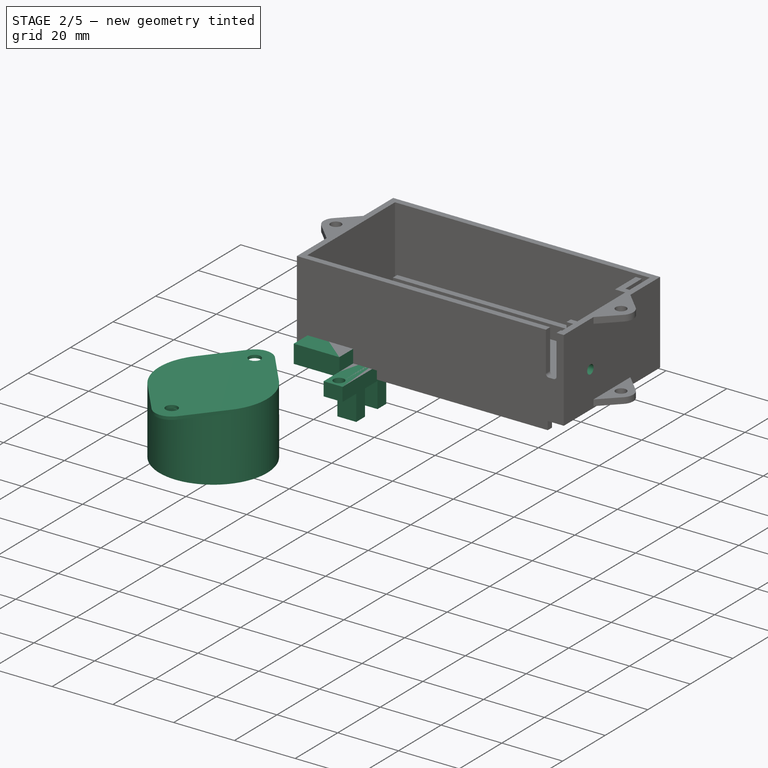
[diagram: stage 2 of 5 — iso view after this stage's code; geometry added in this stage tinted green]
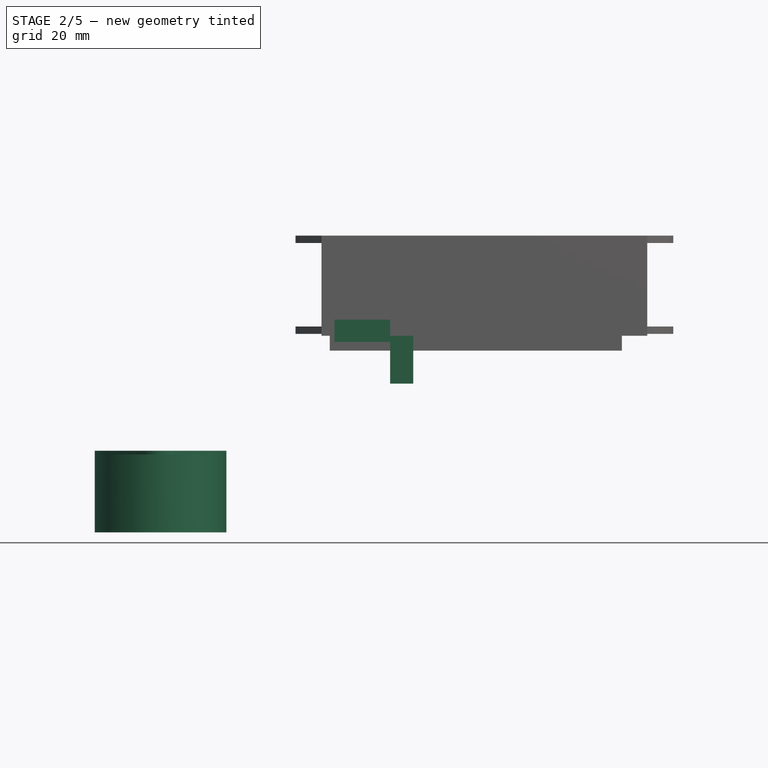
[diagram: stage 2 of 5 — front view after this stage's code; geometry added in this stage tinted green]
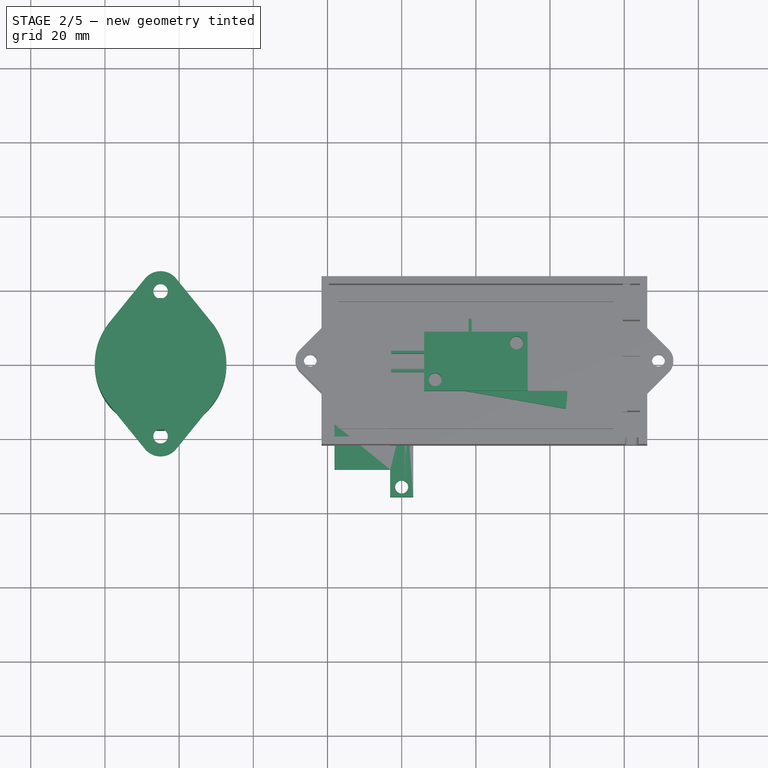
[diagram: stage 2 of 5 — top view after this stage's code; geometry added in this stage tinted green]
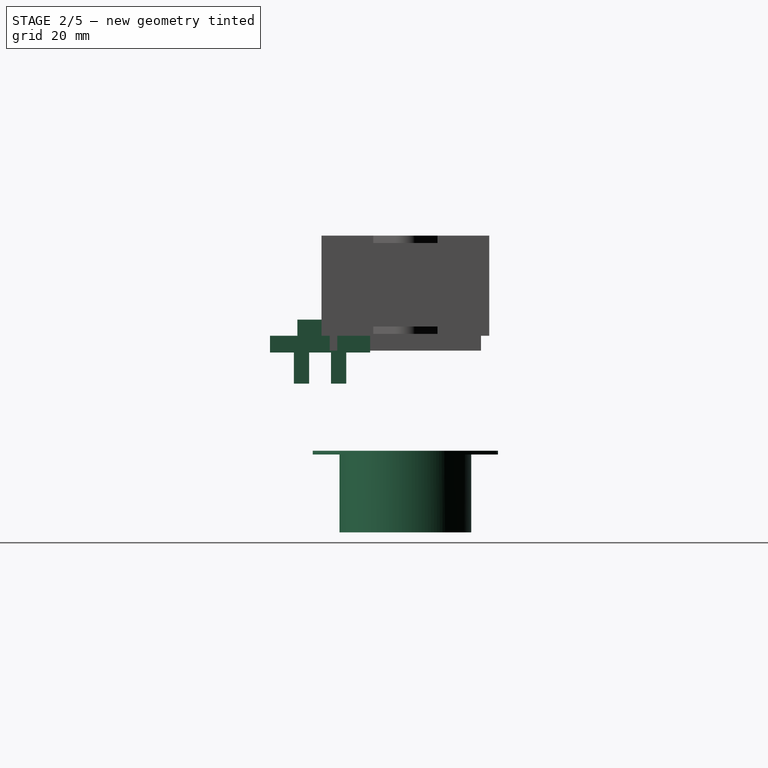
[diagram: stage 2 of 5 — right view after this stage's code; geometry added in this stage tinted green]
FEATURE [Sketcher::SketchObject] Sketch024  label="RoueFolleBaseEsquisse"
  FullyConstrained = true
  MapMode = 5
  Support = -> [XY_Plane004]
  expr: Constraints[1] = <<dimensions>>.roueFolleDiametre
  sketch-geometry (1):
    g0: Circle CenterX=0 CenterY=0 CenterZ=0 NormalX=0 NormalY=0 NormalZ=1 AngleXU=0 Radius=17.75
  constraints (2):
    c: Coincident(g0,g-1)
    c: Diameter(g0) = 35.5
FEATURE [PartDesign::Pad] Pad012  label="RoueFolleBase"
  Direction = (0,0,1)
  Length = 21
  Length2 = 10
  Profile = -> Sketch024
  ReferenceAxis = -> Sketch024 [N_Axis]
  Type = 0
  expr: Length = <<dimensions>>.roueFolleHauteur
FEATURE [Sketcher::SketchObject] Sketch025  label="RoueFolleSupportVisEsquisse"
  ExternalGeometry = -> [Pad012]
  FullyConstrained = true
  MapMode = 5
  Placement = pos=(0,0,21) rot=(0,0,1;0rad)
  Support = -> [Pad012]
  expr: Constraints[13] = <<dimensions>>.roueFolleVisSupportDiametre
  expr: Constraints[2] = <<dimensions>>.roueFolleVisDiametre
  expr: Constraints[3] = <<dimensions>>.roueFolleVisDistance
  sketch-geometry (10):
    g0: Circle CenterX=0 CenterY=19.525 CenterZ=0 NormalX=0 NormalY=0 NormalZ=1 AngleXU=0 Radius=1.95
    g1: Circle CenterX=0 CenterY=-19.525 CenterZ=0 NormalX=0 NormalY=0 NormalZ=1 AngleXU=0 Radius=1.95
    g2: LineSegment StartX=-4.23261 StartY=22.9583 StartZ=0 EndX=-13.7851 EndY=11.1818 EndZ=0
    g3: LineSegment StartX=4.23261 StartY=22.9583 StartZ=0 EndX=13.7851 EndY=11.1818 EndZ=0
    g4: LineSegment StartX=4.23261 StartY=-22.9583 StartZ=0 EndX=13.7851 EndY=-11.1818 EndZ=0
    g5: LineSegment StartX=-13.7851 StartY=-11.1818 StartZ=0 EndX=-4.23261 EndY=-22.9583 EndZ=0
    g6: ArcOfCircle CenterX=0 CenterY=0 CenterZ=0 NormalX=0 NormalY=0 NormalZ=1 AngleXU=0 Radius=17.75 StartAngle=2.46009 EndAngle=3.8231
    g7: ArcOfCircle CenterX=0 CenterY=0 CenterZ=0 NormalX=0 NormalY=0 NormalZ=1 AngleXU=0 Radius=17.75 StartAngle=5.60168 EndAngle=6.96469
    g8: ArcOfCircle CenterX=0 CenterY=19.525 CenterZ=0 NormalX=0 NormalY=0 NormalZ=1 AngleXU=0 Radius=5.45 StartAngle=0.681504 EndAngle=2.46009
    g9: ArcOfCircle CenterX=0 CenterY=-19.525 CenterZ=0 NormalX=0 NormalY=0 NormalZ=1 AngleXU=0 Radius=5.45 StartAngle=3.8231 EndAngle=5.60168
  constraints (22):
    c: PointOnObject(g0,g-2)
    c: Equal(g0,g1)
    c: Diameter(g0) = 3.9
    c: DistanceY(g1,g0) = 39.05
    c: Symmetric(g0,g1,g-1)
    c: Coincident(g7,g6)
    c: Coincident(g7,g3)
    c: Coincident(g8,g0)
    c: Coincident(g9,g1)
    c: Equal(g8,g9)
    c: Coincident(g6,g-1)
    c: Equal(g6,g-3)
    c: Equal(g7,g-3)
    c: Diameter(g8) = 10.9
    c: Tangent(g8,g3) = 1.5708
    c: Tangent(g8,g2) = -1.5708
    c: Tangent(g9,g4) = -1.5708
    c: Tangent(g9,g5) = -1.5708
    c: Tangent(g6,g2) = -1.5708
    c: Tangent(g6,g5) = -1.5708
    c: Tangent(g3,g-3)
    c: Tangent(g7,g4) = -1.5708
FEATURE [PartDesign::Pad] Pad013  label="RoueFolleSupportVis"
  BaseFeature = -> Pad012
  Direction = (0,0,1)
  Length = 1
  Length2 = 10
  Profile = -> Sketch025
  ReferenceAxis = -> Sketch025 [N_Axis]
  Type = 0
  expr: Length = <<dimensions>>.roueFolleVisSupportEpaisseur
FEATURE [PartDesign::Body] Body002  label="MoteurRoue"
  Group = -> [Sketch023,Pad010,Sketch001,Pocket007,Sketch002,Pad011,Sketch026,Pad014,Sketch027,Pad015]
  Origin = -> Origin003
  Placement = pos=(0,-40,-31) rot=(0,0,1;0rad)
  Tip = -> Pad015
FEATURE [Sketcher::SketchObject] Sketch028  label="CapteurVitesseBaseEsquisse"
  FullyConstrained = true
  MapMode = 5
  Support = -> [XY_Plane005]
  expr: Constraints[10] = Spreadsheet001.capteurVitesseBaseLargeur
  expr: Constraints[14] = <<dimensions>>.capteurVitesseBaseVisDiametre
  expr: Constraints[15] = <<dimensions>>.capteurVitesseBaseVisDistance
  expr: Constraints[9] = <<dimensions>>.capteurVitesseBaseLongeur
  sketch-geometry (6):
    g0: LineSegment StartX=-13.5 StartY=3.11 StartZ=0 EndX=13.5 EndY=3.11 EndZ=0
    g1: LineSegment StartX=13.5 StartY=3.11 StartZ=0 EndX=13.5 EndY=-3.11 EndZ=0
    g2: LineSegment StartX=13.5 StartY=-3.11 StartZ=0 EndX=-13.5 EndY=-3.11 EndZ=0
    g3: LineSegment StartX=-13.5 StartY=-3.11 StartZ=0 EndX=-13.5 EndY=3.11 EndZ=0
    g4: Circle CenterX=10.75 CenterY=0 CenterZ=0 NormalX=0 NormalY=0 NormalZ=1 AngleXU=0 Radius=1.75
    g5: Circle CenterX=-10.75 CenterY=0 CenterZ=0 NormalX=0 NormalY=0 NormalZ=1 AngleXU=0 Radius=1.75
  constraints (16):
    c: Coincident(g0,g1)
    c: Coincident(g1,g2)
    c: Coincident(g2,g3)
    c: Coincident(g3,g0)
    c: Horizontal(g0)
    c: Horizontal(g2)
    c: Vertical(g1)
    c: Vertical(g3)
    c: Symmetric(g0,g1,g-1)
    c: DistanceX(g0,g0) = 27
    c: DistanceY(g1,g1) = 6.22
    c: PointOnObject(g4,g-1)
    c: Symmetric(g4,g5,g-1)
    c: Equal(g4,g5)
    c: Diameter(g4) = 3.5
    c: DistanceX(g5,g4) = 21.5
FEATURE [PartDesign::Pad] Pad016  label="CapteurVitesseBase"
  Direction = (0,0,1)
  Length = 4.5
  Length2 = 10
  Profile = -> Sketch028
  ReferenceAxis = -> Sketch028 [N_Axis]
  Type = 0
  expr: Length = <<dimensions>>.capteurVitesseBaseHauteur
FEATURE [Sketcher::SketchObject] Sketch029  label="CapteurVitesseTigeEsquisse"
  ExternalGeometry = -> [Pad016]
  FullyConstrained = true
  MapMode = 5
  Placement = pos=(0,0,0) rot=(1,0,0;3.14159rad)
  Support = -> [Pad016]
  expr: Constraints[21] = <<dimensions>>.capteurVitesseTigeEpaisseur
  expr: Constraints[22] = <<dimensions>>.capteurVitesseTigeDistance
  sketch-geometry (8):
    g0: LineSegment StartX=-7.05 StartY=3.11 StartZ=0 EndX=-2.95 EndY=3.11 EndZ=0
    g1: LineSegment StartX=-2.95 StartY=3.11 StartZ=0 EndX=-2.95 EndY=-3.11 EndZ=0
    g2: LineSegment StartX=-2.95 StartY=-3.11 StartZ=0 EndX=-7.05 EndY=-3.11 EndZ=0
    g3: LineSegment StartX=-7.05 StartY=-3.11 StartZ=0 EndX=-7.05 EndY=3.11 EndZ=0
    g4: LineSegment StartX=2.95 StartY=3.11 StartZ=0 EndX=7.05 EndY=3.11 EndZ=0
    g5: LineSegment StartX=7.05 StartY=3.11 StartZ=0 EndX=7.05 EndY=-3.11 EndZ=0
    g6: LineSegment StartX=7.05 StartY=-3.11 StartZ=0 EndX=2.95 EndY=-3.11 EndZ=0
    g7: LineSegment StartX=2.95 StartY=-3.11 StartZ=0 EndX=2.95 EndY=3.11 EndZ=0
  constraints (23):
    c: Coincident(g0,g1)
    c: Coincident(g1,g2)
    c: Coincident(g2,g3)
    c: Coincident(g3,g0)
    c: Horizontal(g0)
    c: Horizontal(g2)
    c: Vertical(g1)
    c: Vertical(g3)
    c: Coincident(g4,g5)
    c: Coincident(g5,g6)
    c: Coincident(g6,g7)
    c: Coincident(g7,g4)
    c: Horizontal(g4)
    c: Horizontal(g6)
    c: Vertical(g5)
    c: Vertical(g7)
    c: PointOnObject(g6,g-4)
    c: PointOnObject(g0,g-3)
    c: PointOnObject(g1,g-4)
    c: Symmetric(g0,g4,g-2)
    c: Equal(g4,g0)
    c: DistanceX(g4,g4) = 4.1
    c: DistanceX(g0,g4) = 5.9
FEATURE [PartDesign::Pad] Pad017  label="CapteurVitesseTige"
  BaseFeature = -> Pad016
  Direction = (0,0,-1)
  Length = 8.4
  Length2 = 10
  Profile = -> Sketch029
  ReferenceAxis = -> Sketch029 [N_Axis]
  Type = 0
  expr: Length = <<dimensions>>.capteurVitesseTigeLongeur
FEATURE [Sketcher::SketchObject] Sketch030  label="capteurVitesseConnectionEsquisse"
  ExternalGeometry = -> [Pad017]
  FullyConstrained = true
  MapMode = 5
  Placement = pos=(0,-3.11,0) rot=(1,0,0;1.5708rad)
  Support = -> [Pad017]
  expr: Constraints[7] = <<dimensions>>.capteurVitesseConnectionLargeur
  expr: Constraints[8] = <<dimensions>>.capteurVitesseConnectionHauteur
  expr: Constraints[9] = <<dimensions>>.capteurVitesseConnectionPcbEpaisseur
  sketch-geometry (4):
    g0: LineSegment StartX=-6.125 StartY=8.85 StartZ=0 EndX=6.125 EndY=8.85 EndZ=0
    g1: LineSegment StartX=6.125 StartY=8.85 StartZ=0 EndX=6.125 EndY=2.85 EndZ=0
    g2: LineSegment StartX=6.125 StartY=2.85 StartZ=0 EndX=-6.125 EndY=2.85 EndZ=0
    g3: LineSegment StartX=-6.125 StartY=2.85 StartZ=0 EndX=-6.125 EndY=8.85 EndZ=0
  constraints (11):
    c: Coincident(g0,g1)
    c: Coincident(g1,g2)
    c: Coincident(g2,g3)
    c: Coincident(g3,g0)
    c: Horizontal(g0)
    c: Vertical(g1)
    c: Vertical(g3)
    c: DistanceX(g0,g0) = 12.25
    c: DistanceY(g1,g1) = 6
    c: DistanceY(g1,g-3) = 1.65
    c: Symmetric(g1,g2,g-2)
FEATURE [PartDesign::Pad] Pad018  label="capteurVitesseConnection"
  BaseFeature = -> Pad017
  Direction = (0,-1,2e-16)
  Length = 15
  Length2 = 10
  Profile = -> Sketch030
  ReferenceAxis = -> Sketch030 [N_Axis]
  Type = 0
  expr: Length = <<dimensions>>.capteurVitesseConnectionLongueur
FEATURE [PartDesign::Body] Body006  label="CapteurIr"
  Group = -> [Sketch034,Pad022,Sketch035,Pad023,Sketch036,Pad024]
  Origin = -> Origin007
  Placement = pos=(-82.5,61.5,20) rot=(0,1,0;3.14159rad)
  Tip = -> Pad024
FEATURE [Sketcher::SketchObject] Sketch037  label="CapteurContactBaseEsquisse"
  FullyConstrained = true
  MapMode = 5
  Support = -> [XY_Plane008]
  expr: Constraints[10] = <<dimensions>>.capteurContactLargeur
  expr: Constraints[12] = <<dimensions>>.capteurContactVisDiametre
  expr: Constraints[13] = <<dimensions>>.capteurContactVisCentreBordDistance
  expr: Constraints[9] = <<dimensions>>.capteurContactLongeur
  sketch-geometry (10):
    g0: LineSegment StartX=-13.95 StartY=7.95 StartZ=0 EndX=13.95 EndY=7.95 EndZ=0
    g1: LineSegment StartX=13.95 StartY=7.95 StartZ=0 EndX=13.95 EndY=-7.95 EndZ=0
    g2: LineSegment StartX=13.95 StartY=-7.95 StartZ=0 EndX=-13.95 EndY=-7.95 EndZ=0
    g3: LineSegment StartX=-13.95 StartY=-7.95 StartZ=0 EndX=-13.95 EndY=7.95 EndZ=0
    g4: Circle CenterX=10.96 CenterY=4.96 CenterZ=0 NormalX=0 NormalY=0 NormalZ=1 AngleXU=0 Radius=1.75
    g5: Circle CenterX=-10.96 CenterY=-4.96 CenterZ=0 NormalX=0 NormalY=0 NormalZ=1 AngleXU=0 Radius=1.75
    g6: LineSegment StartX=10.96 StartY=4.96 StartZ=0 EndX=13.95 EndY=4.96 EndZ=0
    g7: LineSegment StartX=10.96 StartY=4.96 StartZ=0 EndX=10.96 EndY=7.95 EndZ=0
    g8: LineSegment StartX=-10.96 StartY=-4.96 StartZ=0 EndX=-13.95 EndY=-4.96 EndZ=0
    g9: LineSegment StartX=-10.96 StartY=-4.96 StartZ=0 EndX=-10.96 EndY=-7.95 EndZ=0
  constraints (29):
    c: Coincident(g0,g1)
    c: Coincident(g1,g2)
    c: Coincident(g2,g3)
    c: Coincident(g3,g0)
    c: Horizontal(g0)
    c: Horizontal(g2)
    c: Vertical(g1)
    c: Vertical(g3)
    c: Symmetric(g1,g0,g-1)
    c: DistanceX(g0,g0) = 27.9
    c: DistanceY(g1,g1) = 15.9
    c: Equal(g4,g5)
    c: Diameter(g4) = 3.5
    c: Distance(g4,g1) = 2.99
    c: Coincident(g6,g4)
    c: PointOnObject(g6,g1)
    c: Horizontal(g6)
    c: Coincident(g7,g4)
    c: PointOnObject(g7,g0)
    c: Vertical(g7)
    c: Equal(g7,g6)
    c: Coincident(g8,g5)
    c: PointOnObject(g8,g3)
    c: Horizontal(g8)
    c: Coincident(g9,g5)
    c: PointOnObject(g9,g2)
    c: Vertical(g9)
    c: Equal(g8,g9)
    c: Equal(g9,g6)
FEATURE [PartDesign::Pad] Pad025  label="CapteurContactBase"
  Direction = (0,0,1)
  Length = 9.9
  Length2 = 10
  Profile = -> Sketch037
  ReferenceAxis = -> Sketch037 [N_Axis]
  Type = 0
  expr: Length = <<dimensions>>.capteurContactHauteur
FEATURE [Sketcher::SketchObject] Sketch038  label="CapteurContactTigeEsquisse"
  ExternalGeometry = -> [Pad025]
  FullyConstrained = true
  MapMode = 5
  Placement = pos=(0,-7.95,0) rot=(1,0,0;1.5708rad)
  Support = -> [Pad025]
  expr: Constraints[10] = <<dimensions>>.capteurContactTigeDepartDistance
  expr: Constraints[8] = <<dimensions>>.capteurContactTigeLargeur
  expr: Constraints[9] = <<dimensions>>.capteurContactTigeLongeur
  sketch-geometry (7):
    g0: LineSegment StartX=-3.05 StartY=7.075 StartZ=0 EndX=24.65 EndY=7.075 EndZ=0
    g1: LineSegment StartX=24.65 StartY=7.075 StartZ=0 EndX=24.65 EndY=2.825 EndZ=0
    g2: LineSegment StartX=24.65 StartY=2.825 StartZ=0 EndX=-3.05 EndY=2.825 EndZ=0
    g3: LineSegment StartX=-3.05 StartY=2.825 StartZ=0 EndX=-3.05 EndY=7.075 EndZ=0
    g4: LineSegment StartX=13.95 StartY=9.9 StartZ=0 EndX=13.95 EndY=7.075 EndZ=0
    g5: LineSegment StartX=13.95 StartY=0 StartZ=0 EndX=13.95 EndY=2.825 EndZ=0
    g6: LineSegment StartX=-3.15 StartY=7.075 StartZ=0 EndX=-3.15 EndY=2.825 EndZ=0
  constraints (22):
    c: Coincident(g0,g1)
    c: Coincident(g1,g2)
    c: Coincident(g2,g3)
    c: Coincident(g3,g0)
    c: Horizontal(g0)
    c: Horizontal(g2)
    c: Vertical(g1)
    c: Vertical(g3)
    c: DistanceY(g3,g3) = 4.25
    c: DistanceX(g0,g0) = 27.7
    c: DistanceX(g0,g-3) = 17
    c: Coincident(g4,g-3)
    c: PointOnObject(g4,g0)
    c: Coincident(g5,g-3)
    c: PointOnObject(g5,g2)
    c: Vertical(g5)
    c: Vertical(g4)
    c: Equal(g4,g5)
    c: Vertical(g6)
    c: DistanceX(g6,g0) = 0.1
    c: Horizontal(g0,g6)
    c: Horizontal(g2,g6)
FEATURE [PartDesign::Revolution] Revolution  label="CapteurContactTige"
  Angle = 10
  Axis = (0,-9e-16,-4.25)
  Base = (-3.15,-7.95,7.075)
  BaseFeature = -> Pad025
  Profile = -> Sketch038
  ReferenceAxis = -> Sketch038 [Axis2]
FEATURE [Sketcher::SketchObject] Sketch039  label="CapteurContactConnectionEsquisse"
  ExternalGeometry = -> [Revolution]
  FullyConstrained = true
  MapMode = 5
  Placement = pos=(-13.95,0,0) rot=(0.57735,-0.57735,-0.57735;2.0944rad)
  Support = -> [Revolution]
  expr: Constraints[18] = <<dimensions>>.capteurContactConnectionLargeur
  expr: Constraints[19] = <<dimensions>>.capteurContactConnectionEpaisseur
  expr: Constraints[20] = <<dimensions>>.capteurContactConnectionDistance
  sketch-geometry (10):
    g0: LineSegment StartX=-2.85 StartY=8.2 StartZ=0 EndX=-2.05 EndY=8.2 EndZ=0
    g1: LineSegment StartX=-2.05 StartY=8.2 StartZ=0 EndX=-2.05 EndY=1.7 EndZ=0
    g2: LineSegment StartX=-2.05 StartY=1.7 StartZ=0 EndX=-2.85 EndY=1.7 EndZ=0
    g3: LineSegment StartX=-2.85 StartY=1.7 StartZ=0 EndX=-2.85 EndY=8.2 EndZ=0
    g4: LineSegment StartX=2.05 StartY=8.2 StartZ=0 EndX=2.85 EndY=8.2 EndZ=0
    g5: LineSegment StartX=2.85 StartY=8.2 StartZ=0 EndX=2.85 EndY=1.7 EndZ=0
    g6: LineSegment StartX=2.85 StartY=1.7 StartZ=0 EndX=2.05 EndY=1.7 EndZ=0
    g7: LineSegment StartX=2.05 StartY=1.7 StartZ=0 EndX=2.05 EndY=8.2 EndZ=0
    g8: LineSegment StartX=-2.85 StartY=8.2 StartZ=0 EndX=-2.85 EndY=9.9 EndZ=0
    g9: LineSegment StartX=-2.85 StartY=1.7 StartZ=0 EndX=-2.85 EndY=0 EndZ=0
  constraints (29):
    c: Coincident(g0,g1)
    c: Coincident(g1,g2)
    c: Coincident(g2,g3)
    c: Coincident(g3,g0)
    c: Horizontal(g0)
    c: Horizontal(g2)
    c: Vertical(g1)
    c: Vertical(g3)
    c: Coincident(g4,g5)
    c: Coincident(g5,g6)
    c: Coincident(g6,g7)
    c: Coincident(g7,g4)
    c: Horizontal(g4)
    c: Horizontal(g6)
    c: Vertical(g5)
    c: Vertical(g7)
    c: Equal(g1,g7)
    c: Equal(g4,g0)
    c: DistanceY(g5,g5) = 6.5
    c: DistanceX(g4,g4) = 0.8
    c: DistanceX(g0,g4) = 4.1
    c: Symmetric(g4,g0,g-2)
    c: Coincident(g8,g0)
    c: PointOnObject(g8,g-3)
    c: Vertical(g8)
    c: Coincident(g9,g2)
    c: PointOnObject(g9,g-1)
    c: Vertical(g9)
    c: Equal(g8,g9)
FEATURE [PartDesign::Pad] Pad026  label="CapteurContactConnection"
  BaseFeature = -> Revolution
  Direction = (-1,0,0)
  Length = 8.9
  Length2 = 10
  Profile = -> Sketch039
  ReferenceAxis = -> Sketch039 [N_Axis]
  Type = 0
  expr: Length = <<dimensions>>.capteurContactConnectionLongeur
FEATURE [Sketcher::SketchObject] Sketch040  label="CapteurContactConnectionCom1Esquisse"
  ExternalGeometry = -> [Pad026]
  FullyConstrained = true
  MapMode = 5
  Placement = pos=(0,7.95,0) rot=(0,0.707107,0.707107;3.14159rad)
  Support = -> [Pad026]
  expr: Constraints[10] = <<dimensions>>.capteurContactConnectionComDistance
  expr: Constraints[8] = <<dimensions>>.capteurContactConnectionEpaisseur
  expr: Constraints[9] = <<dimensions>>.capteurContactConnectionLargeur
  sketch-geometry (6):
    g0: LineSegment StartX=1.15 StartY=8.2 StartZ=0 EndX=1.95 EndY=8.2 EndZ=0
    g1: LineSegment StartX=1.95 StartY=8.2 StartZ=0 EndX=1.95 EndY=1.7 EndZ=0
    g2: LineSegment StartX=1.95 StartY=1.7 StartZ=0 EndX=1.15 EndY=1.7 EndZ=0
    g3: LineSegment StartX=1.15 StartY=1.7 StartZ=0 EndX=1.15 EndY=8.2 EndZ=0
    g4: LineSegment StartX=1.15 StartY=8.2 StartZ=0 EndX=1.15 EndY=9.9 EndZ=0
    g5: LineSegment StartX=1.15 StartY=1.7 StartZ=0 EndX=1.15 EndY=0 EndZ=0
  constraints (18):
    c: Coincident(g0,g1)
    c: Coincident(g1,g2)
    c: Coincident(g2,g3)
    c: Coincident(g3,g0)
    c: Horizontal(g0)
    c: Horizontal(g2)
    c: Vertical(g1)
    c: Vertical(g3)
    c: DistanceX(g0,g0) = 0.8
    c: DistanceY(g1,g1) = 6.5
    c: DistanceX(g0,g-3) = 12
    c: Coincident(g4,g0)
    c: PointOnObject(g4,g-4)
    c: Vertical(g4)
    c: Coincident(g5,g2)
    c: PointOnObject(g5,g-1)
    c: Vertical(g5)
    c: Equal(g4,g5)
FEATURE [PartDesign::Pad] Pad027  label="CapteurContactConnectionCom1"
  BaseFeature = -> Pad026
  Direction = (0,1,-2e-16)
  Length = 3.5
  Length2 = 10
  Profile = -> Sketch040
  ReferenceAxis = -> Sketch040 [N_Axis]
  Type = 0
  expr: Length = <<dimensions>>.capteurContactConnectionComDecalage
FEATURE [Part::Mirroring] Part__Mirroring002  label="CapteurVitesse (Mirror #3)"
  Base = (0,0,0)
  Normal = (0,1,0)
  Source = -> Body004
FEATURE [PartDesign::FeatureBase] Clone002
  BaseFeature = -> Body003
  Placement = pos=(-85,0,-53) rot=(0,0,1;0rad)
FEATURE [PartDesign::Body] Body015  label="CapteurIrSupport"
  Group = -> [Binder024,Sketch066,Pad046,Sketch067,Pad047,Sketch068,Pad048,Sketch069,Pocket012]
  Origin = -> Origin018
  Placement = pos=(-82.5,61.5,20) rot=(0,0,1;3.14159rad)
  Tip = -> Pocket012
FEATURE [Sketcher::SketchObject] Sketch070  label="BoitierBatterieRoueFollePercageEsquisse"
  ExternalGeometry = -> [Pad031]
  FullyConstrained = true
  MapMode = 5
  Placement = pos=(0,0,0) rot=(1,0,0;3.14159rad)
  Support = -> [Pad031]
  expr: Constraints[7] = <<dimensions>>.roueFolleVisDistance
  expr: Constraints[8] = <<dimensions>>.roueFolleVisDiametre
  sketch-geometry (5):
    g0: Circle CenterX=-17.225 CenterY=0 CenterZ=0 NormalX=0 NormalY=0 NormalZ=1 AngleXU=0 Radius=1.95
    g1: Circle CenterX=21.825 CenterY=0 CenterZ=0 NormalX=0 NormalY=0 NormalZ=1 AngleXU=0 Radius=1.95
    g2: LineSegment StartX=-41.625 StartY=22.625 StartZ=0 EndX=-17.225 EndY=0 EndZ=0
    g3: LineSegment StartX=-17.225 StartY=0 StartZ=0 EndX=-41.625 EndY=-22.625 EndZ=0
    g4: LineSegment StartX=46.225 StartY=22.625 StartZ=0 EndX=21.825 EndY=0 EndZ=0
  constraints (12):
    c: Coincident(g2,g-3)
    c: Coincident(g2,g0)
    c: Coincident(g3,g0)
    c: Coincident(g3,g-6)
    c: Equal(g2,g3)
    c: Equal(g0,g1)
    c: Horizontal(g0,g1)
    c: DistanceX(g0,g1) = 39.05
    c: Diameter(g1) = 3.9
    c: Coincident(g4,g-4)
    c: Coincident(g4,g1)
    c: Equal(g2,g4)
FEATURE [PartDesign::Pocket] Pocket  label="BoitierBatterieRoueFollePercage"
  BaseFeature = -> Pad031
  Direction = (0,0,1)
  Length = 5
  Length2 = 5
  Profile = -> Sketch070
  ReferenceAxis = -> Sketch070 [N_Axis]
  Type = 2
FEATURE [PartDesign::Body] Body018  label="MoteurRoueSupport"
  Group = -> [Binder028,Sketch077,Pad053,Sketch082,Pad054,Sketch083,Pad055,Sketch084,Pocket017,Sketch085,Pocket018]
  Origin = -> Origin023
  Placement = pos=(0,-26.5,0) rot=(0,0,1;0rad)
  Tip = -> Pocket018
FEATURE [App::Part] Part003  label="Supports"
  Group = -> [Body013,Body010,Body011,Body012,Body015,Body016,Body017,Body018]
  Origin = -> Origin019
FEATURE [Sketcher::SketchObject] Sketch086  label="BoitierBatterieChargeurLedPercageEsquisse"
  ExternalGeometry = -> [Pad002]
  FullyConstrained = true
  MapMode = 5
  Placement = pos=(44.225,-1.02e-14,0) rot=(-0.57735,0.57735,0.57735;4.18879rad)
  Support = -> [Pad002]
  expr: Constraints[11] = <<BoitierBatterieDimensions>>.chargeurLargeur - Spreadsheet.chargeurLedBordBasDistance
  expr: Constraints[6] = <<BoitierBatterieDimensions>>.chargeurSupportMargeBord + <<BoitierBatterieDimensions>>.chargeurSupportEpaisseur
  expr: Constraints[7] = <<BoitierBatterieDimensions>>.chargeurLedPercageDiametre
  sketch-geometry (4):
    g0: Circle CenterX=10.125 CenterY=12 CenterZ=0 NormalX=0 NormalY=0 NormalZ=1 AngleXU=0 Radius=1.5
    g1: LineSegment StartX=10.125 StartY=12 StartZ=0 EndX=11.625 EndY=12 EndZ=0
    g2: LineSegment StartX=11.625 StartY=12 StartZ=0 EndX=20.625 EndY=12 EndZ=0
    g3: LineSegment StartX=10.125 StartY=12 StartZ=0 EndX=10.125 EndY=27 EndZ=0
  constraints (12):
    c: Coincident(g1,g0)
    c: PointOnObject(g1,g0)
    c: Coincident(g2,g1)
    c: PointOnObject(g2,g-3)
    c: Horizontal(g2)
    c: Horizontal(g1)
    c: DistanceX(g2,g2) = 9
    c: Diameter(g0) = 3
    c: Coincident(g3,g0)
    c: Vertical(g3)
    c: PointOnObject(g3,g-4)
    c: DistanceY(g3,g3) = 15
FEATURE [PartDesign::Pocket] Pocket019  label="BoitierBatterieChargeurLedPercage"
  BaseFeature = -> Pocket
  Direction = (1,-1e-16,-1e-16)
  Length = 5
  Length2 = 5
  Profile = -> Sketch086
  ReferenceAxis = -> Sketch086 [N_Axis]
  Type = 2
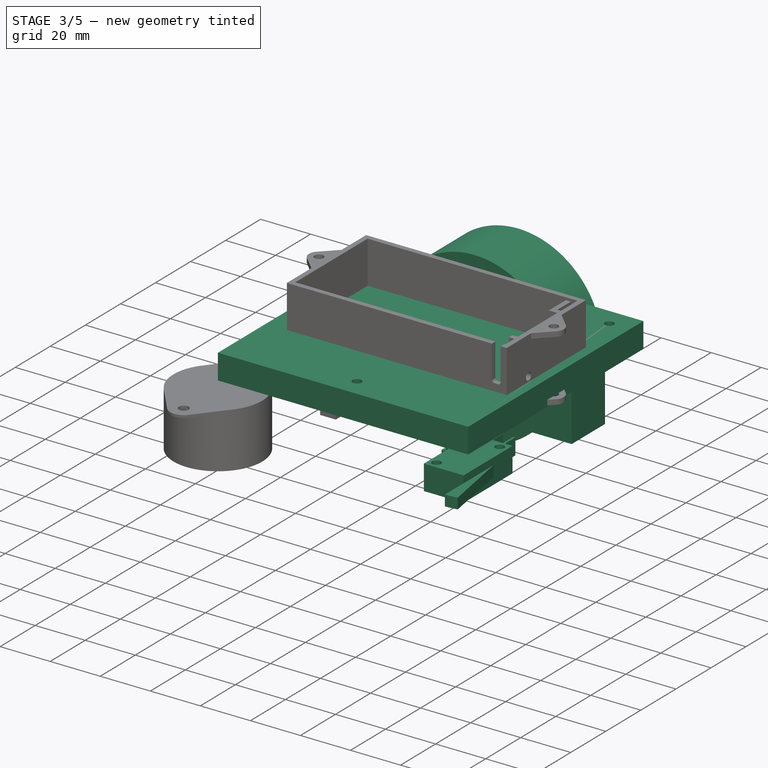
[diagram: stage 3 of 5 — iso view after this stage's code; geometry added in this stage tinted green]
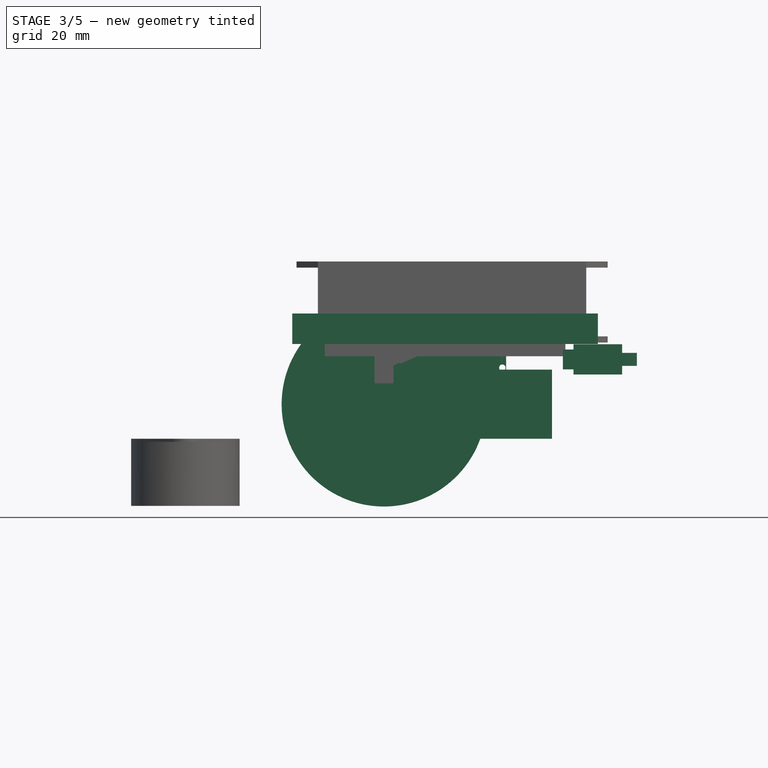
[diagram: stage 3 of 5 — front view after this stage's code; geometry added in this stage tinted green]
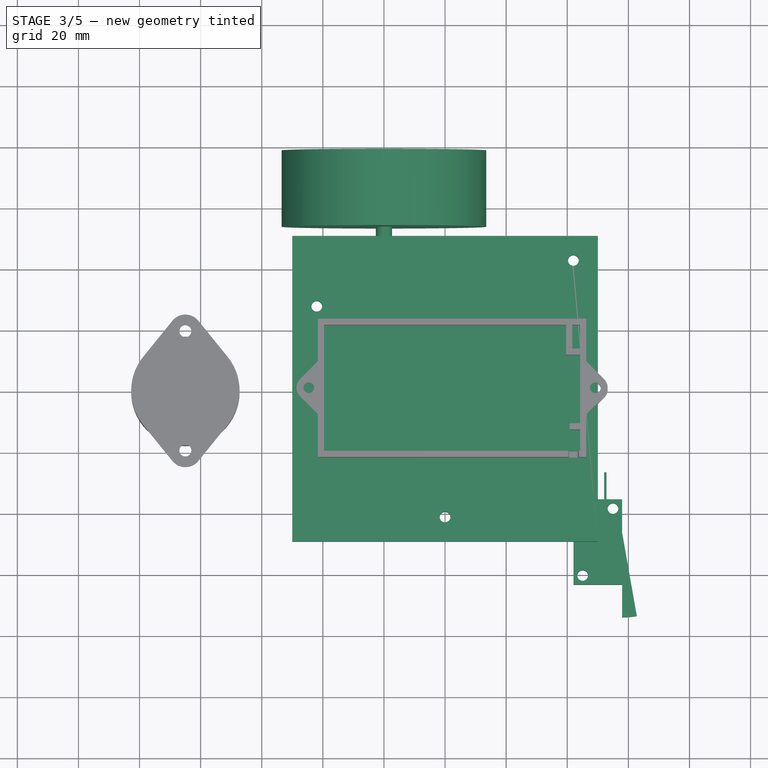
[diagram: stage 3 of 5 — top view after this stage's code; geometry added in this stage tinted green]
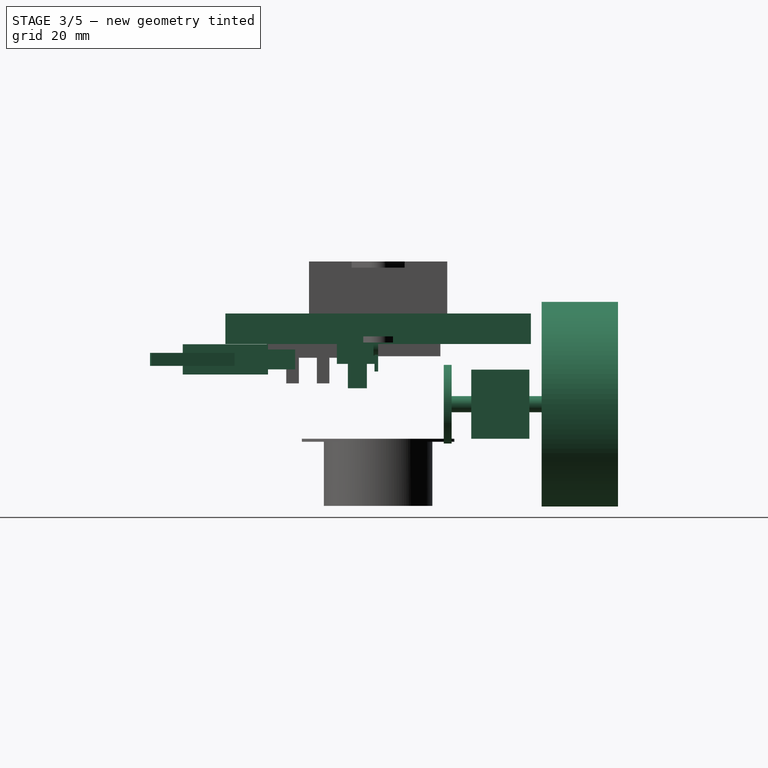
[diagram: stage 3 of 5 — right view after this stage's code; geometry added in this stage tinted green]
FEATURE [Spreadsheet::Sheet] Spreadsheet  label="BoitierBatterieDimensions"
  cells = A1='supportBatterieLongueur; B1(supportBatterieLongueur)=78.25; A2='supportBatterieLargeur; B2(supportBatterieLargeur)=40.25; A3='marge; B3(marge)=0.5; A4='supportBatterieHauteur; B4(supportBatterieHauteur)=19; A5='supportBatterieSupportMargeBord; B5(supportBatterieSupportMargeBord)=2; A6='supportBatterieSupportEpaisseur; B6(supportBatterieSupportEpaisseur)=2; A7='supportBatterieSupportHauteur; B7(supportBatterieSupportHauteur)=5; A8='plastiqueEpaisseur; B8(plastiqueEpaisseur)=2; A9='chargeurEpaisseur; B9(chargeurEpaisseur)=4.6; A10='chargeurLongeur; B10(chargeurLongeur)=31; A11='chargeurLargeur; B11(chargeurLargeur)=18; A12='chargeurPortUsbLargeur; B12(chargeurPortUsbLargeur)=3.5; A13='chargeurPortUsbEncocheLongueur; B13(chargeurPortUsbEncocheLongueur)=15; A14='chargeurPortUsbDiametre; B14(chargeurPortUsbDiametre)=2; A15='chargeurPcbEpaisseur; B15(chargeurPcbEpaisseur)=1.2; A16='chargeurSupportMargeBord; B16(chargeurSupportMargeBord)=7; A17='chargeurSupportEpaisseur; B17(chargeurSupportEpaisseur)=2; A18='chargeurSupportEncocheCourteHauteur; B18(chargeurSupportEncocheCourteHauteur)=1.5; A19='chargeurLedPercageDiametre; B19(chargeurLedPercageDiametre)=3; A20='chargeurLedBordBasDistance; B20(chargeurLedBordBasDistance)=3; A21='filBatteriePercageDiametre; B21(filBatteriePercageDiametre)=4; A22='couvercleVisPercageDiametre; B22(couvercleVisPercageDiametre)=3.5; A23='couvercleVisCentreBordDistance; B23(couvercleVisCentreBordDistance)=3; A24='couvercleVisRebordDiametreExterieur; B24(couvercleVisRebordDiametreExterieur)=8; A25='couvercleRebordHauteur; B25(couvercleRebordHauteur)=0.5; A26='couvercleRebordMarge; B26(couvercleRebordMarge)=0.25; A27='couvercleRebordLargeur; B27(couvercleRebordLargeur)=2; A28='couvercleRebordHauteur2; B28(couvercleRebordHauteur2)=4; A29='boitierBatterieFilletRayon; B29(boitierBatterieFilletRayon)=0.45; A31='boitierPourtourHauteur; B31(boitierPourtourHauteur)==supportBatterieSupportHauteur + marge + supportBatterieHauteur + couvercleRebordHauteur; A32='chargeurSupportHauteur; B32(chargeurSupportHauteur)==boitierPourtourHauteur - couvercleRebordHauteur - marge - chargeurLargeur; A33='filBatteriePercageCentreHauteur; B33(filBatteriePercageCentreHauteur)==plastiqueEpaisseur + supportBatterieSupportHauteur / 2; A34='chargeurPortUsbEncocheLongueurDepuisBord; B34(chargeurPortUsbEncocheLongueurDepuisBord)==chargeurPortUsbEncocheLongueur + marge + couvercleRebordHauteur
FEATURE [Spreadsheet::Sheet] Spreadsheet001  label="dimensions"
  cells = A1='boitierBatterieLongueur; B1(boitierBatterieLongueur)=85.85; A2='boitierBatterieLargeur; B2(boitierBatterieLargeur)=43.25; A3='boitierBatterieHauteur; B3(boitierBatterieHauteur)=27; A4='moteurVisDiametre; B4(moteurVisDiametre)=3.5; A5='moteurVisDistance; B5(moteurVisDistance)==14.5 + moteurVisDiametre; A6='moteurHauteur; B6(moteurHauteur)=22.6; A7='moteurLargeur; B7(moteurLargeur)=19; A8='moteurLongueur; B8(moteurLongueur)=70; A9='moteurVisAxeDistance; B9(moteurVisAxeDistance)=20; A10='moteurAxeBordDistance; B10(moteurAxeBordDistance)=15; A11='moteurAxeDiametre; B11(moteurAxeDiametre)=5.3; A12='moteurAxeLongueur; B12(moteurAxeLongueur)=9; A13='moteurSupportLargeur; B13(moteurSupportLargeur)=13; A14='moteurSupportHauteur; B14(moteurSupportHauteur)=39; A15='moteurSupportRenforcementEpaisseur; B15(moteurSupportRenforcementEpaisseur)=4; A16='moteurSupportMoteursDistance; B16(moteurSupportMoteursDistance)=61; A17='moteurSupportVisDiametre; B17(moteurSupportVisDiametre)=3.5; A18='moteurSupportVisDistance; B18(moteurSupportVisDistance)=40; A19='moteurSupportSuiveurLigneVisDiametre; B19(moteurSupportSuiveurLigneVisDiametre)=3.5; A20='roueDiametre; B20(roueDiametre)=67; A21='roueLargeur; B21(roueLargeur)=25; A22='roueMoteurDistance; B22(roueMoteurDistance)==48 - roueLargeur - 19; A23='roueBaseDistance; B23(roueBaseDistance)=4; A24='roueCodeuseDiametre; B24(roueCodeuseDiametre)=25.75; A25='roueCodeuseEpaisseur; B25(roueCodeuseEpaisseur)=2.55; A26='roueFolleHauteur; B26(roueFolleHauteur)=21; A27='roueFolleDiametre; B27(roueFolleDiametre)=35.5; A28='roueFolleVisDiametre; B28(roueFolleVisDiametre)=3.9; A29='roueFolleVisDistance; B29(roueFolleVisDistance)==35.15 + roueFolleVisDiametre; A30='roueFolleVisSupportDiametre; B30(roueFolleVisSupportDiametre)==3.5 * 2 + roueFolleVisDiametre; A31='roueFolleVisSupportEpaisseur; B31(roueFolleVisSupportEpaisseur)=1; A32='capteurVitesseBaseLargeur; B32(capteurVitesseBaseLargeur)=6.22; A33='capteurVitesseBaseLongeur; B33(capteurVitesseBaseLongeur)=27; A34='capteurVitesseBaseHauteur; B34(capteurVitesseBaseHauteur)=4.5; A35='capteurVitesseBaseVisDiametre; B35(capteurVitesseBaseVisDiametre)=3.5; A36='capteurVitesseBaseVisDistance; B36(capteurVitesseBaseVisDistance)==18 + capteurVitesseBaseVisDiametre; A37='capteurVitesseTigeEpaisseur; B37(capteurVitesseTigeEpaisseur)=4.1; A38='capteurVitesseTigeLongeur; B38(capteurVitesseTigeLongeur)=8.4; A39='capteurVitesseTigeDistance; B39(capteurVitesseTigeDistance)=5.9; A40='capteurVitesseConnectionLargeur; B40(capteurVitesseConnectionLargeur)=12.25; A41='capteurVitesseConnectionLongueur; B41(capteurVitesseConnectionLongueur)=15; A42='capteurVitesseConnectionHauteur; B42(capteurVitesseConnectionHauteur)=6; A43='capteurVitesseConnectionPcbEpaisseur; B43(capteurVitesseConnectionPcbEpaisseur)=1.65; A44='capteurUltrasonPcbLongeur; B44(capteurUltrasonPcbLongeur)=40; A45='capteurUltrasonPcbLargeur; B45(capteurUltrasonPcbLargeur)=18; A46='capteurUltrasonPcbEpaisseur; B46(capteurUltrasonPcbEpaisseur)=1.2; A47='capteurUltrasonPcbVisDiametre; B47(capteurUltrasonPcbVisDiametre)=2.1; A48='capteurUltrasonPcbVisDistanceLargeur; B48(capteurUltrasonPcbVisDistanceLargeur)==13.4 + capteurUltrasonPcbVisDiametre; A49='capteurUltrasonPcbVisDistanceLongeur; B49(capteurUltrasonPcbVisDistanceLongeur)==35.4 + capteurUltrasonPcbVisDiametre; A50='capteurUltrasonErDiametre; B50(capteurUltrasonErDiametre)=15.9; A51='capteurUltrasonErLongueur; B51(capteurUltrasonErLongueur)==13.4 - capteurUltrasonPcbEpaisseur; A52='capteurUltrasonErDistanceCentre; B52(capteurUltrasonErDistanceCentre)==37.55 - capteurUltrasonErDiametre; A53='capteurUltrasonConnectionLargeur; B53(capteurUltrasonConnectionLargeur)=10; A54='capteurUltrasonConnectionLongueur; B54(capteurUltrasonConnectionLongueur)=9; A55='capteurUltrasonConnectionEpaisseur; B55(capteurUltrasonConnectionEpaisseur)==5.16 - capteurUltrasonPcbEpaisseur; A56='capteurUltrasonConnectionBaseEpaisseur; B56(capteurUltrasonConnectionBaseEpaisseur)=2.5; A57='capteurIrLongueur; B57(capteurIrLongueur)=29.5; A58='capteurIrLargeur; B58(capteurIrLargeur)=13.5; A59='capteurIrHauteur; B59(capteurIrHauteur)=13; A60='capteurIrVisDiametre; B60(capteurIrVisDiametre)=3.5; A61='capteurIrVisDistance; B61(capteurIrVisDistance)==33.9 + capteurIrVisDiametre; A62='capteurIrVisSupportDiametre; B62(capteurIrVisSupportDiametre)==2.2 * 2 + capteurIrVisDiametre; A63='capteurIrVisSupportEpaisseur; B63(capteurIrVisSupportEpaisseur)=1.5; A64='capteurIrConnectionLongeur; B64(capteurIrConnectionLongeur)=8; A65='capteurIrConnectionLargeur; B65(capteurIrConnectionLargeur)=10.1; A66='capteurIrConnectionEpaisseur; B66(capteurIrConnectionEpaisseur)=6.2; A67='capteurIrConnectionDistance; B67(capteurIrConnectionDistance)=3.7; A68='capteurContactLongeur; B68(capteurContactLongeur)=27.9; A69='capteurContactLargeur; B69(capteurContactLargeur)=15.9; A70='capteurContactHauteur; B70(capteurContactHauteur)=9.9; A71='capteurContactVisDiametre; B71(capteurContactVisDiametre)=3.5; A72='capteurContactVisCentreBordDistance; B72(capteurContactVisCentreBordDistance)==1.24 + capteurContactVisDiametre / 2; A73='capteurContactTigeLongeur; B73(capteurContactTigeLongeur)=27.7; A74='capteurContactTigeLargeur; B74(capteurContactTigeLargeur)=4.25; A75='capteurContactTigeEpaisseur; B75(capteurContactTigeEpaisseur)=0.55; A76='capteurContactTigeDepartDistance; B76(capteurContactTigeDepartDistance)=17; A77='capteurContactConnectionLongeur; B77(capteurContactConnectionLongeur)=8.9; A78='capteurContactConnectionLargeur; B78(capteurContactConnectionLargeur)=6.5; A79='capteurContactConnectionEpaisseur; B79(capteurContactConnectionEpaisseur)=0.8; A80='capteurContactConnectionDistance; B80(capteurContactConnectionDistance)=4.1; A81='capteurContactConnectionComDistance; B81(capteurContactConnectionComDistance)=12; A82='capteurContactConnectionComDecalage; B82(capteurContactConnectionComDecalage)=3.5; A83='carteElecLongeur; B83(carteElecLongeur)=100; A84='carteElecLargeur; B84(carteElecLargeur)=100; A85='carteElecHauteur; B85(carteElecHauteur)=10; A86='carteElectVisDiametre; B86(carteElectVisDiametre)=3.5; A87='carteElecVisBordDistance; B87(carteElecVisBordDistance)=8; A88='carteElecVisGaucheBordHautDistance; B88(carteElecVisGaucheBordHautDistance)=23; A89='carteElectSupportVisHauteur; B89(carteElectSupportVisHauteur)=10; A90='marge; B90(marge)=0.5; A91='plastiqueEpaisseur; B91(plastiqueEpaisseur)=2; A92='capteurUltrasonSupportMatLargeur; B92(capteurUltrasonSupportMatLargeur)=10; A93='capteurUltrasonSupportMatLongueur; B93(capteurUltrasonSupportMatLongueur)=30; A94='capteurUltrasonSupportPetitMatLargeur; B94(capteurUltrasonSupportPetitMatLargeur)=5; A95='capteurUltrasonSupportPiedEpaisseur; B95(capteurUltrasonSupportPiedEpaisseur)=4; A96='capteurUltrasonSupportVisDiametre; B96(capteurUltrasonSupportVisDiametre)=3.5; A97='baseRoulanteCongeeDiametre; B97(baseRoulanteCongeeDiametre)=20; A98='baseRoulanteEpaisseur; B98(baseRoulanteEpaisseur)=4; A99='supporRoueFolleEpaisseur; B99(supporRoueFolleEpaisseur)=2; A100='capteurIrSupportMatLargeur; B100(capteurIrSupportMatLargeur)=10; +16 more cells
FEATURE [Sketcher::SketchObject] Sketch023  label="MoteurBaseEsquisse"
  FullyConstrained = true
  MapMode = 5
  Support = -> [XY_Plane003]
  expr: Constraints[10] = <<dimensions>>.moteurLargeur
  expr: Constraints[9] = <<dimensions>>.moteurLongueur
  sketch-geometry (4):
    g0: LineSegment StartX=-35 StartY=9.5 StartZ=0 EndX=35 EndY=9.5 EndZ=0
    g1: LineSegment StartX=35 StartY=9.5 StartZ=0 EndX=35 EndY=-9.5 EndZ=0
    g2: LineSegment StartX=35 StartY=-9.5 StartZ=0 EndX=-35 EndY=-9.5 EndZ=0
    g3: LineSegment StartX=-35 StartY=-9.5 StartZ=0 EndX=-35 EndY=9.5 EndZ=0
  constraints (11):
    c: Coincident(g0,g1)
    c: Coincident(g1,g2)
    c: Coincident(g2,g3)
    c: Coincident(g3,g0)
    c: Horizontal(g0)
    c: Horizontal(g2)
    c: Vertical(g1)
    c: Vertical(g3)
    c: Symmetric(g1,g0,g-1)
    c: DistanceX(g0,g0) = 70
    c: DistanceY(g1,g1) = 19
FEATURE [PartDesign::Pad] Pad010  label="MoteurBase"
  Direction = (0,0,1)
  Length = 22.6
  Length2 = 10
  Profile = -> Sketch023
  ReferenceAxis = -> Sketch023 [N_Axis]
  Type = 0
  expr: Length = <<dimensions>>.moteurHauteur
FEATURE [Sketcher::SketchObject] Sketch001  label="MoteurVisPercageEsquisse"
  ExternalGeometry = -> [Pad010]
  FullyConstrained = true
  MapMode = 5
  Placement = pos=(0,-9.5,0) rot=(1,0,0;1.5708rad)
  Support = -> [Pad010]
  expr: Constraints[12] = <<dimensions>>.moteurVisAxeDistance
  expr: Constraints[13] = Spreadsheet001.moteurAxeBordDistance
  expr: Constraints[1] = <<dimensions>>.moteurVisDiametre
  expr: Constraints[3] = <<dimensions>>.moteurVisDistance
  sketch-geometry (5):
    g0: Circle CenterX=4e-16 CenterY=20.3 CenterZ=0 NormalX=0 NormalY=0 NormalZ=1 AngleXU=0 Radius=1.75
    g1: Circle CenterX=4e-16 CenterY=2.3 CenterZ=0 NormalX=0 NormalY=0 NormalZ=1 AngleXU=0 Radius=1.75
    g2: LineSegment StartX=4e-16 StartY=20.3 StartZ=0 EndX=4e-16 EndY=22.6 EndZ=0
    g3: LineSegment StartX=4e-16 StartY=2.3 StartZ=0 EndX=4e-16 EndY=0 EndZ=0
    g4: GeomPoint X=-20 Y=22.6 Z=0
  constraints (14):
    c: Vertical(g0,g1)
    c: Diameter(g0) = 3.5
    c: Equal(g1,g0)
    c: DistanceY(g1,g0) = 18
    c: Coincident(g2,g0)
    c: PointOnObject(g2,g-3)
    c: Vertical(g2)
    c: Coincident(g3,g1)
    c: PointOnObject(g3,g-4)
    c: Vertical(g3)
    c: Equal(g3,g2)
    c: PointOnObject(g4,g-3)
    c: DistanceX(g4,g2) = 20
    c: DistanceX(g-3,g4) = 15
FEATURE [PartDesign::Pocket] Pocket007  label="MoteurVisPercage"
  BaseFeature = -> Pad010
  Direction = (0,1,-2e-16)
  Length = 5
  Length2 = 5
  Profile = -> Sketch001
  ReferenceAxis = -> Sketch001 [N_Axis]
  Type = 1
FEATURE [Sketcher::SketchObject] Sketch002  label="MoteurAxeEsquisse"
  ExternalGeometry = -> [Pocket007]
  FullyConstrained = true
  MapMode = 5
  Placement = pos=(0,-9.5,0) rot=(1,0,0;1.5708rad)
  Support = -> [Pocket007]
  expr: Constraints[0] = <<dimensions>>.moteurAxeDiametre
  expr: Constraints[8] = Spreadsheet001.moteurAxeBordDistance
  sketch-geometry (3):
    g0: Circle CenterX=-20 CenterY=11.3 CenterZ=0 NormalX=0 NormalY=0 NormalZ=1 AngleXU=0 Radius=2.65
    g1: LineSegment StartX=-20 StartY=11.3 StartZ=0 EndX=-20 EndY=22.6 EndZ=0
    g2: LineSegment StartX=-20 StartY=11.3 StartZ=0 EndX=-20 EndY=0 EndZ=0
  constraints (9):
    c: Diameter(g0) = 5.3
    c: Coincident(g1,g0)
    c: PointOnObject(g1,g-3)
    c: Vertical(g1)
    c: Coincident(g2,g0)
    c: PointOnObject(g2,g-4)
    c: Vertical(g2)
    c: Equal(g2,g1)
    c: DistanceX(g-3,g1) = 15
FEATURE [PartDesign::Pad] Pad011  label="MoteurAxe"
  BaseFeature = -> Pocket007
  Direction = (0,-1,2e-16)
  Length = 4
  Length2 = 28
  Profile = -> Sketch002
  ReferenceAxis = -> Sketch002 [N_Axis]
  Type = 4
  expr: Length = Spreadsheet001.roueMoteurDistance
  expr: Length2 = <<dimensions>>.moteurLargeur + <<dimensions>>.moteurAxeLongueur
FEATURE [PartDesign::Body] Body003  label="RoueFolle1"
  Group = -> [Sketch024,Pad012,Sketch025,Pad013]
  Origin = -> Origin004
  Placement = pos=(-85,0,-53) rot=(0,0,1;0rad)
  Tip = -> Pad013
FEATURE [Sketcher::SketchObject] Sketch026  label="RoueEsquisse"
  ExternalGeometry = -> [Pad011]
  FullyConstrained = true
  MapMode = 5
  Placement = pos=(-3e-15,-13.5,5.3e-15) rot=(1,0,0;1.5708rad)
  Support = -> [Pad011]
  expr: Constraints[1] = <<dimensions>>.roueDiametre
  sketch-geometry (1):
    g0: Circle CenterX=-20 CenterY=11.3 CenterZ=0 NormalX=0 NormalY=0 NormalZ=1 AngleXU=0 Radius=33.5
  constraints (2):
    c: Coincident(g0,g-3)
    c: Diameter(g0) = 67
FEATURE [PartDesign::Pad] Pad014  label="Roue"
  BaseFeature = -> Pad011
  Direction = (-2e-16,-1,4e-16)
  Length = 25
  Length2 = 10
  Profile = -> Sketch026
  ReferenceAxis = -> Sketch026 [N_Axis]
  Type = 0
  expr: Length = <<dimensions>>.roueLargeur
FEATURE [Sketcher::SketchObject] Sketch027  label="RoueCodeuseEsquisse"
  ExternalGeometry = -> [Pad014]
  FullyConstrained = true
  MapMode = 5
  Placement = pos=(4.1e-15,18.5,-7.2e-15) rot=(0,0.707107,0.707107;3.14159rad)
  Support = -> [Pad014]
  expr: .AttachmentOffset.Base.z = 0
  expr: Constraints[1] = <<dimensions>>.roueCodeuseDiametre
  sketch-geometry (1):
    g0: Circle CenterX=20 CenterY=11.3 CenterZ=0 NormalX=0 NormalY=0 NormalZ=1 AngleXU=0 Radius=12.875
  constraints (2):
    c: Coincident(g0,g-3)
    c: Diameter(g0) = 25.75
FEATURE [PartDesign::Pad] Pad015  label="RoueCodeuse"
  BaseFeature = -> Pad014
  Direction = (2e-16,1,-4e-16)
  Length = 2.55
  Length2 = 10
  Profile = -> Sketch027
  ReferenceAxis = -> Sketch027 [N_Axis]
  Reversed = true
  Type = 0
  expr: Length = <<dimensions>>.roueCodeuseEpaisseur
FEATURE [PartDesign::Body] Body004  label="CapteurVitesse"
  Group = -> [Sketch028,Pad016,Sketch029,Pad017,Sketch030,Pad018]
  Origin = -> Origin005
  Placement = pos=(-20,23,-4.5) rot=(0,0,-1;1.5708rad)
  Tip = -> Pad018
FEATURE [Sketcher::SketchObject] Sketch031  label="CapteurUltrasonPcbEsquisse"
  FullyConstrained = true
  MapMode = 5
  Placement = pos=(0,0,0) rot=(1,0,0;1.5708rad)
  Support = -> [XZ_Plane006]
  expr: Constraints[10] = <<dimensions>>.capteurUltrasonPcbLargeur
  expr: Constraints[17] = <<dimensions>>.capteurUltrasonPcbVisDiametre
  expr: Constraints[18] = <<dimensions>>.capteurUltrasonPcbVisDistanceLongeur
  expr: Constraints[19] = <<dimensions>>.capteurUltrasonPcbVisDistanceLargeur
  expr: Constraints[9] = <<dimensions>>.capteurUltrasonPcbLongeur
  sketch-geometry (8):
    g0: LineSegment StartX=-20 StartY=9 StartZ=0 EndX=20 EndY=9 EndZ=0
    g1: LineSegment StartX=20 StartY=9 StartZ=0 EndX=20 EndY=-9 EndZ=0
    g2: LineSegment StartX=20 StartY=-9 StartZ=0 EndX=-20 EndY=-9 EndZ=0
    g3: LineSegment StartX=-20 StartY=-9 StartZ=0 EndX=-20 EndY=9 EndZ=0
    g4: Circle CenterX=-18.75 CenterY=7.75 CenterZ=0 NormalX=0 NormalY=0 NormalZ=1 AngleXU=0 Radius=1.05
    g5: Circle CenterX=-18.75 CenterY=-7.75 CenterZ=0 NormalX=0 NormalY=0 NormalZ=1 AngleXU=0 Radius=1.05
    g6: Circle CenterX=18.75 CenterY=-7.75 CenterZ=0 NormalX=0 NormalY=0 NormalZ=1 AngleXU=0 Radius=1.05
    g7: Circle CenterX=18.75 CenterY=7.75 CenterZ=0 NormalX=0 NormalY=0 NormalZ=1 AngleXU=0 Radius=1.05
  constraints (20):
    c: Coincident(g0,g1)
    c: Coincident(g1,g2)
    c: Coincident(g2,g3)
    c: Coincident(g3,g0)
    c: Horizontal(g0)
    c: Horizontal(g2)
    c: Vertical(g1)
    c: Vertical(g3)
    c: Symmetric(g1,g0,g-1)
    c: DistanceX(g0,g0) = 40
    c: DistanceY(g1,g1) = 18
    c: Symmetric(g7,g4,g-2)
    c: Symmetric(g5,g6,g-2)
    c: Symmetric(g4,g5,g-1)
    c: Equal(g4,g7)
    c: Equal(g7,g6)
    c: Equal(g6,g5)
    c: Diameter(g4) = 2.1
    c: DistanceX(g4,g7) = 37.5
    c: DistanceY(g5,g4) = 15.5
FEATURE [PartDesign::Pad] Pad019  label="CapteurUltrasonPcb"
  Direction = (0,-1,-2e-16)
  Length = 1.2
  Length2 = 10
  Placement = pos=(0,0,0) rot=(1,0,0;1.5708rad)
  Profile = -> Sketch031
  ReferenceAxis = -> Sketch031 [N_Axis]
  Type = 0
  expr: Length = <<dimensions>>.capteurUltrasonPcbEpaisseur
FEATURE [PartDesign::Body] Body005  label="CapteurUltrason"
  Group = -> [Sketch031,Pad019,Sketch032,Pad020,Sketch033,Pad021]
  Origin = -> Origin006
  Placement = pos=(43,0,53) rot=(0,0,1;1.5708rad)
  Tip = -> Pad021
FEATURE [Sketcher::SketchObject] Sketch034  label="CapteurIrBaseEsquisse"
  FullyConstrained = true
  MapMode = 5
  Placement = pos=(0,0,0) rot=(1,0,0;1.5708rad)
  Support = -> [XZ_Plane007]
  expr: Constraints[10] = <<dimensions>>.capteurIrHauteur
  expr: Constraints[9] = <<dimensions>>.capteurIrLongueur
  sketch-geometry (4):
    g0: LineSegment StartX=-14.75 StartY=6.5 StartZ=0 EndX=14.75 EndY=6.5 EndZ=0
    g1: LineSegment StartX=14.75 StartY=6.5 StartZ=0 EndX=14.75 EndY=-6.5 EndZ=0
    g2: LineSegment StartX=14.75 StartY=-6.5 StartZ=0 EndX=-14.75 EndY=-6.5 EndZ=0
    g3: LineSegment StartX=-14.75 StartY=-6.5 StartZ=0 EndX=-14.75 EndY=6.5 EndZ=0
  constraints (11):
    c: Coincident(g0,g1)
    c: Coincident(g1,g2)
    c: Coincident(g2,g3)
    c: Coincident(g3,g0)
    c: Horizontal(g0)
    c: Horizontal(g2)
    c: Vertical(g1)
    c: Vertical(g3)
    c: Symmetric(g0,g1,g-1)
    c: DistanceX(g0,g0) = 29.5
    c: DistanceY(g1,g1) = 13
FEATURE [PartDesign::Pad] Pad022  label="CapteurIrBase"
  Direction = (0,-1,-2e-16)
  Length = 13.5
  Length2 = 10
  Placement = pos=(0,0,0) rot=(1,0,0;1.5708rad)
  Profile = -> Sketch034
  ReferenceAxis = -> Sketch034 [N_Axis]
  Type = 0
  expr: Length = <<dimensions>>.capteurIrLargeur
FEATURE [Sketcher::SketchObject] Sketch035  label="CapteurIrVisSupportEsquisse"
  FullyConstrained = true
  MapMode = 5
  Placement = pos=(0,0,0) rot=(-1,0,0;1.5708rad)
  Support = -> [Pad022]
  expr: Constraints[4] = <<dimensions>>.capteurIrVisDiametre
  expr: Constraints[5] = <<dimensions>>.capteurIrVisDistance
  sketch-geometry (6):
    g0: Circle CenterX=-18.7 CenterY=0 CenterZ=0 NormalX=0 NormalY=0 NormalZ=1 AngleXU=0 Radius=1.75
    g1: Circle CenterX=18.7 CenterY=0 CenterZ=0 NormalX=0 NormalY=0 NormalZ=1 AngleXU=0 Radius=1.75
    g2: ArcOfCircle CenterX=-18.7 CenterY=0 CenterZ=0 NormalX=0 NormalY=0 NormalZ=1 AngleXU=0 Radius=3.75 StartAngle=1.5708 EndAngle=4.71239
    g3: ArcOfCircle CenterX=18.7 CenterY=0 CenterZ=0 NormalX=0 NormalY=0 NormalZ=1 AngleXU=0 Radius=3.75 StartAngle=4.71239 EndAngle=7.85398
    g4: LineSegment StartX=-18.7 StartY=3.75 StartZ=0 EndX=18.7 EndY=3.75 EndZ=0
    g5: LineSegment StartX=18.7 StartY=-3.75 StartZ=0 EndX=-18.7 EndY=-3.75 EndZ=0
  constraints (14):
    c: PointOnObject(g0,g-1)
    c: Coincident(g2,g0)
    c: Symmetric(g0,g1,g-1)
    c: Equal(g0,g1)
    c: Diameter(g0) = 3.5
    c: DistanceX(g0,g1) = 37.4
    c: Diameter(g2) = 7.5
    c: Equal(g2,g3)
    c: Coincident(g5,g3)
    c: Horizontal(g5)
    c: Coincident(g1,g3)
    c: Tangent(g4,g2) = 1.5708
    c: Tangent(g4,g3) = 1.5708
    c: Tangent(g5,g2) = 1.5708
FEATURE [PartDesign::Pad] Pad023  label="CapteurIrVisSupport"
  BaseFeature = -> Pad022
  Direction = (0,1,2e-16)
  Length = 1.5
  Length2 = 10
  Placement = pos=(0,0,0) rot=(1,0,0;1.5708rad)
  Profile = -> Sketch035
  ReferenceAxis = -> Sketch035 [N_Axis]
  Reversed = true
  Type = 0
  expr: Length = <<dimensions>>.capteurIrVisSupportEpaisseur
FEATURE [Sketcher::SketchObject] Sketch036  label="CapteurIrConnectionEsquisse"
  FullyConstrained = true
  MapMode = 5
  Placement = pos=(0,-1.4e-15,-6.5) rot=(1,0,0;3.14159rad)
  Support = -> [Pad023]
  expr: Constraints[10] = <<dimensions>>.capteurIrConnectionDistance
  expr: Constraints[8] = <<dimensions>>.capteurIrConnectionLargeur
  expr: Constraints[9] = <<dimensions>>.capteurIrConnectionEpaisseur
  sketch-geometry (4):
    g0: LineSegment StartX=-5.05 StartY=9.9 StartZ=0 EndX=5.05 EndY=9.9 EndZ=0
    g1: LineSegment StartX=5.05 StartY=9.9 StartZ=0 EndX=5.05 EndY=3.7 EndZ=0
    g2: LineSegment StartX=5.05 StartY=3.7 StartZ=0 EndX=-5.05 EndY=3.7 EndZ=0
    g3: LineSegment StartX=-5.05 StartY=3.7 StartZ=0 EndX=-5.05 EndY=9.9 EndZ=0
  constraints (11):
    c: Coincident(g0,g1)
    c: Coincident(g1,g2)
    c: Coincident(g2,g3)
    c: Coincident(g3,g0)
    c: Horizontal(g0)
    c: Vertical(g1)
    c: Vertical(g3)
    c: Symmetric(g2,g1,g-2)
    c: DistanceX(g0,g0) = 10.1
    c: DistanceY(g1,g1) = 6.2
    c: DistanceY(g-1,g1) = 3.7
FEATURE [PartDesign::Pad] Pad024  label="CapteurIrConnection"
  BaseFeature = -> Pad023
  Direction = (0,2e-16,-1)
  Length = 8
  Length2 = 10
  Placement = pos=(0,0,0) rot=(1,0,0;1.5708rad)
  Profile = -> Sketch036
  ReferenceAxis = -> Sketch036 [N_Axis]
  Type = 0
  expr: Length = <<dimensions>>.capteurIrConnectionLongeur
FEATURE [Sketcher::SketchObject] Sketch041  label="CapteurContactConnectionCom2Esquisse"
  ExternalGeometry = -> [Pad027]
  FullyConstrained = true
  MapMode = 5
  Placement = pos=(-1.95,0,0) rot=(0.57735,-0.57735,-0.57735;2.0944rad)
  Support = -> [Pad027]
  expr: Constraints[9] = <<dimensions>>.capteurContactConnectionEpaisseur
  sketch-geometry (4):
    g0: LineSegment StartX=-11.45 StartY=8.2 StartZ=0 EndX=-10.65 EndY=8.2 EndZ=0
    g1: LineSegment StartX=-10.65 StartY=8.2 StartZ=0 EndX=-10.65 EndY=1.7 EndZ=0
    g2: LineSegment StartX=-10.65 StartY=1.7 StartZ=0 EndX=-11.45 EndY=1.7 EndZ=0
    g3: LineSegment StartX=-11.45 StartY=1.7 StartZ=0 EndX=-11.45 EndY=8.2 EndZ=0
  constraints (10):
    c: Coincident(g0,g1)
    c: Coincident(g1,g2)
    c: Coincident(g2,g3)
    c: Coincident(g3,g0)
    c: Horizontal(g0)
    c: Horizontal(g2)
    c: Vertical(g1)
    c: Coincident(g0,g-3)
    c: Coincident(g2,g-3)
    c: DistanceX(g0,g0) = 0.8
FEATURE [PartDesign::Pad] Pad028  label="CapteurContactConnectionCom2"
  BaseFeature = -> Pad027
  Direction = (-1,0,0)
  Length = 8.9
  Length2 = 10
  Profile = -> Sketch041
  ReferenceAxis = -> Sketch041 [N_Axis]
  Type = 0
  expr: Length = <<dimensions>>.capteurContactConnectionLongeur
FEATURE [PartDesign::Body] Body007  label="CapteurContact"
  Group = -> [Sketch037,Pad025,Sketch038,Revolution,Sketch039,Pad026,Sketch040,Pad027,Sketch041,Pad028]
  Origin = -> Origin008
  Placement = pos=(50,50,-10) rot=(0,0,1;1.5708rad)
  Tip = -> Pad028
FEATURE [Sketcher::SketchObject] Sketch042  label="CarteElecBaseEsquisse"
  FullyConstrained = true
  MapMode = 5
  Support = -> [XY_Plane009]
  expr: Constraints[10] = <<dimensions>>.carteElecLargeur
  expr: Constraints[14] = <<dimensions>>.carteElectVisDiametre
  expr: Constraints[22] = <<dimensions>>.carteElecVisBordDistance
  expr: Constraints[34] = <<dimensions>>.carteElecVisGaucheBordHautDistance
  expr: Constraints[9] = <<dimensions>>.carteElecLongeur
  sketch-geometry (12):
    g0: LineSegment StartX=-50 StartY=-50 StartZ=0 EndX=50 EndY=-50 EndZ=0
    g1: LineSegment StartX=50 StartY=-50 StartZ=0 EndX=50 EndY=50 EndZ=0
    g2: LineSegment StartX=50 StartY=50 StartZ=0 EndX=-50 EndY=50 EndZ=0
    g3: LineSegment StartX=-50 StartY=50 StartZ=0 EndX=-50 EndY=-50 EndZ=0
    g4: Circle CenterX=-42 CenterY=27 CenterZ=0 NormalX=0 NormalY=0 NormalZ=1 AngleXU=0 Radius=1.75
    g5: Circle CenterX=42 CenterY=42 CenterZ=0 NormalX=0 NormalY=0 NormalZ=1 AngleXU=0 Radius=1.75
    g6: Circle CenterX=0 CenterY=-42 CenterZ=0 NormalX=0 NormalY=0 NormalZ=1 AngleXU=0 Radius=1.75
    g7: LineSegment StartX=42 StartY=42 StartZ=0 EndX=50 EndY=42 EndZ=0
    g8: LineSegment StartX=42 StartY=42 StartZ=0 EndX=42 EndY=50 EndZ=0
    g9: LineSegment StartX=0 StartY=-42 StartZ=0 EndX=0 EndY=-50 EndZ=0
    g10: LineSegment StartX=-42 StartY=27 StartZ=0 EndX=-50 EndY=27 EndZ=0
    g11: LineSegment StartX=-42 StartY=27 StartZ=0 EndX=-42 EndY=50 EndZ=0
  constraints (35):
    c: Coincident(g0,g1)
    c: Coincident(g1,g2)
    c: Coincident(g2,g3)
    c: Coincident(g3,g0)
    c: Horizontal(g0)
    c: Horizontal(g2)
    c: Vertical(g1)
    c: Vertical(g3)
    c: Symmetric(g2,g0,g-1)
    c: DistanceX(g2,g2) = 100
    c: DistanceY(g1,g1) = 100
    c: PointOnObject(g6,g-2)
    c: Equal(g4,g5)
    c: Equal(g5,g6)
    c: Diameter(g5) = 3.5
    c: Coincident(g7,g5)
    c: PointOnObject(g7,g1)
    c: Horizontal(g7)
    c: Coincident(g8,g5)
    c: PointOnObject(g8,g2)
    c: Vertical(g8)
    c: Equal(g8,g7)
    c: DistanceX(g7,g7) = 8
    c: Coincident(g9,g6)
    c: PointOnObject(g9,g0)
    c: Vertical(g9)
    c: Equal(g9,g7)
    c: Coincident(g10,g4)
    c: PointOnObject(g10,g3)
    c: Coincident(g11,g4)
    c: PointOnObject(g11,g2)
    c: Vertical(g11)
    c: Horizontal(g10)
    c: Equal(g10,g7)
    c: DistanceY(g11,g11) = 23
FEATURE [PartDesign::Pad] Pad029  label="CarteElecBase"
  Direction = (0,0,1)
  Length = 10
  Length2 = 10
  Profile = -> Sketch042
  ReferenceAxis = -> Sketch042 [N_Axis]
  Type = 0
  expr: Length = <<dimensions>>.carteElecHauteur
FEATURE [PartDesign::Body] Body008  label="CarteElec"
  Group = -> [Sketch042,Pad029]
  Origin = -> Origin009
  Placement = pos=(-15,0,14) rot=(0,0,-1;1.5708rad)
  Tip = -> Pad029
FEATURE [Part::Mirroring] Part__Mirroring  label="MoteurRoue (Mirror #1)"
  Base = (0,0,0)
  Normal = (0,1,0)
  Source = -> Body002
FEATURE [Part::Mirroring] Part__Mirroring001  label="CapteurContact (Mirror #2)"
  Base = (0,0,0)
  Normal = (0,1,0)
  Source = -> Body007
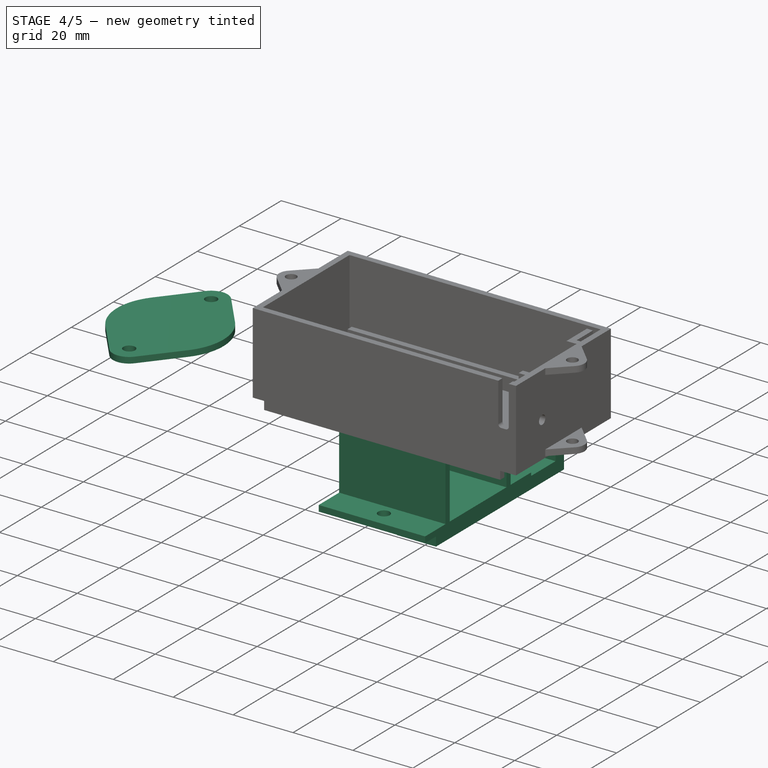
[diagram: stage 4 of 5 — iso view after this stage's code; geometry added in this stage tinted green]
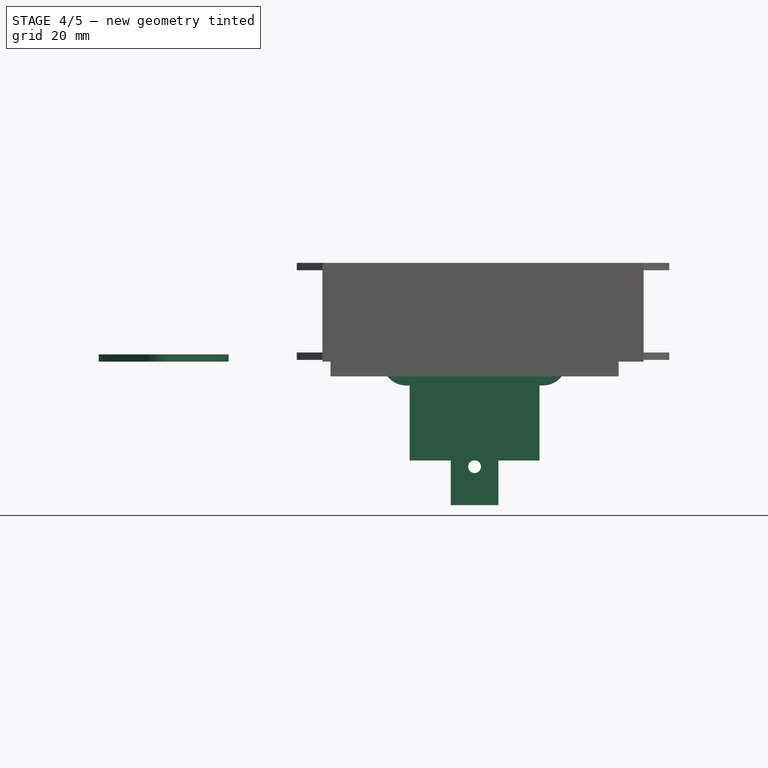
[diagram: stage 4 of 5 — front view after this stage's code; geometry added in this stage tinted green]
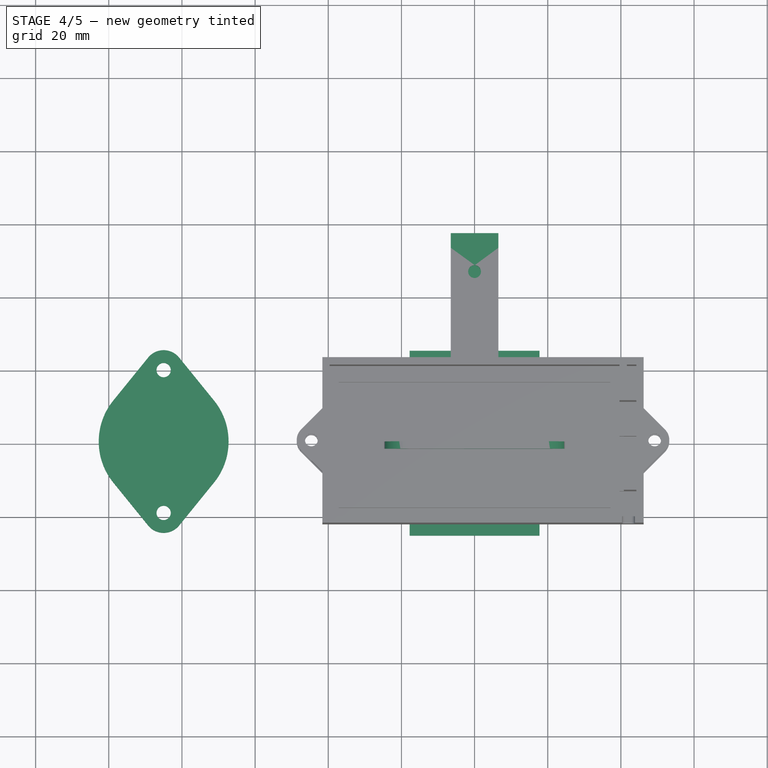
[diagram: stage 4 of 5 — top view after this stage's code; geometry added in this stage tinted green]
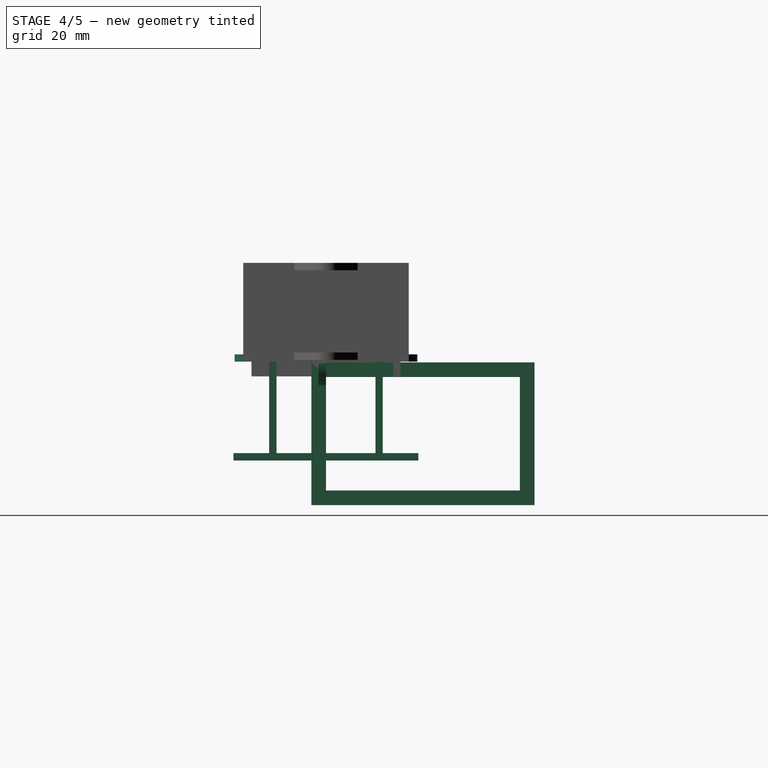
[diagram: stage 4 of 5 — right view after this stage's code; geometry added in this stage tinted green]
FEATURE [Sketcher::SketchObject] Sketch032  label="CapteurUltrasonErEsquisse"
  FullyConstrained = true
  MapMode = 5
  Placement = pos=(0,-1.2,0) rot=(1,0,0;1.5708rad)
  Support = -> [Pad019]
  expr: Constraints[3] = <<dimensions>>.capteurUltrasonErDiametre
  expr: Constraints[4] = <<dimensions>>.capteurUltrasonErDistanceCentre
  sketch-geometry (2):
    g0: Circle CenterX=-10.825 CenterY=0 CenterZ=0 NormalX=0 NormalY=0 NormalZ=1 AngleXU=0 Radius=7.95
    g1: Circle CenterX=10.825 CenterY=0 CenterZ=0 NormalX=0 NormalY=0 NormalZ=1 AngleXU=0 Radius=7.95
  constraints (5):
    c: PointOnObject(g0,g-1)
    c: Symmetric(g0,g1,g-1)
    c: Equal(g0,g1)
    c: Diameter(g0) = 15.9
    c: DistanceX(g0,g1) = 21.65
FEATURE [PartDesign::Pad] Pad020  label="CapteurUltrasonEr"
  BaseFeature = -> Pad019
  Direction = (0,-1,-2e-16)
  Length = 12.2
  Length2 = 10
  Placement = pos=(0,0,0) rot=(1,0,0;1.5708rad)
  Profile = -> Sketch032
  ReferenceAxis = -> Sketch032 [N_Axis]
  Type = 0
  expr: Length = <<dimensions>>.capteurUltrasonErLongueur
FEATURE [Sketcher::SketchObject] Sketch033  label="CapteurUltrasonConnectionEsquisse"
  ExternalGeometry = -> [Pad020]
  FullyConstrained = true
  MapMode = 5
  Placement = pos=(0,0,0) rot=(-1,0,0;1.5708rad)
  Support = -> [Pad020]
  expr: Constraints[10] = <<dimensions>>.capteurUltrasonConnectionBaseEpaisseur
  expr: Constraints[8] = <<dimensions>>.capteurUltrasonConnectionLargeur
  expr: Constraints[9] = <<dimensions>>.capteurUltrasonConnectionLongueur
  sketch-geometry (4):
    g0: LineSegment StartX=-5 StartY=-6.5 StartZ=0 EndX=5 EndY=-6.5 EndZ=0
    g1: LineSegment StartX=5 StartY=-6.5 StartZ=0 EndX=5 EndY=-15.5 EndZ=0
    g2: LineSegment StartX=5 StartY=-15.5 StartZ=0 EndX=-5 EndY=-15.5 EndZ=0
    g3: LineSegment StartX=-5 StartY=-15.5 StartZ=0 EndX=-5 EndY=-6.5 EndZ=0
  constraints (11):
    c: Coincident(g0,g1)
    c: Coincident(g1,g2)
    c: Coincident(g2,g3)
    c: Coincident(g3,g0)
    c: Horizontal(g2)
    c: Vertical(g1)
    c: Vertical(g3)
    c: Symmetric(g0,g0,g-2)
    c: DistanceX(g0,g0) = 10
    c: DistanceY(g1,g1) = 9
    c: DistanceY(g-3,g0) = 2.5
FEATURE [PartDesign::Pad] Pad021  label="CapteurUltrasonConnection"
  BaseFeature = -> Pad020
  Direction = (0,1,2e-16)
  Length = 3.96
  Length2 = 10
  Placement = pos=(0,0,0) rot=(1,0,0;1.5708rad)
  Profile = -> Sketch033
  ReferenceAxis = -> Sketch033 [N_Axis]
  Type = 0
  expr: Length = <<dimensions>>.capteurUltrasonConnectionEpaisseur
FEATURE [PartDesign::Body] Body014  label="RoueFolle2"
  BaseFeature = -> Body003
  Group = -> [Clone002]
  Origin = -> Origin016
  Placement = pos=(125,0,2) rot=(0,0,1;0rad)
  Tip = -> Clone002
FEATURE [App::Part] Part001  label="CapteurEtActionneur"
  Group = -> [Body003,Body014,Body005,Body006,Body008,Body002,Part__Mirroring,Body007,Part__Mirroring001,Body004,Part__Mirroring002]
  Origin = -> Origin011
FEATURE [PartDesign::SubShapeBinder] Binder023  label="RoueFolle2CopieLiee"
  BindCopyOnChange = 0
  BindMode = 0
  ClaimChildren = false
  Context = -> Part002 [Body009.Binder023.]
  Fuse = false
  MakeFace = true
  OffsetFill = false
  OffsetIntersection = false
  OffsetJoinType = 0
  OffsetOpenResult = false
  PartialLoad = false
  Relative = true
  Support = -> [Part001[Body014.]]
  _Version = 2
FEATURE [PartDesign::SubShapeBinder] Binder024  label="CapteurIrCopieLiee"
  BindCopyOnChange = 0
  BindMode = 0
  ClaimChildren = false
  Context = -> Part002 [Body015.Binder024.]
  Fuse = false
  MakeFace = true
  OffsetFill = false
  OffsetIntersection = false
  OffsetJoinType = 0
  OffsetOpenResult = false
  PartialLoad = false
  Relative = true
  Support = -> [Part001[Body006.]]
  _Version = 2
FEATURE [Sketcher::SketchObject] Sketch066  label="CapteurIrSupportTeteEsquisse"
  FullyConstrained = true
  MapMode = 5
  Placement = pos=(0,0,0) rot=(1,0,0;1.5708rad)
  Support = -> [XZ_Plane018]
  expr: Constraints[10] = <<dimensions>>.capteurIrVisDistance
  expr: Constraints[8] = <<dimensions>>.capteurIrVisDiametre
  expr: Constraints[9] = <<dimensions>>.capteurIrHauteur
  sketch-geometry (6):
    g0: Circle CenterX=-18.7 CenterY=-4e-16 CenterZ=0 NormalX=0 NormalY=0 NormalZ=1 AngleXU=0 Radius=1.75
    g1: LineSegment StartX=-18.7 StartY=6.5 StartZ=0 EndX=18.7 EndY=6.5 EndZ=0
    g2: LineSegment StartX=18.7 StartY=-6.5 StartZ=0 EndX=-18.7 EndY=-6.5 EndZ=0
    g3: ArcOfCircle CenterX=-18.7 CenterY=-4e-16 CenterZ=0 NormalX=0 NormalY=0 NormalZ=1 AngleXU=0 Radius=6.5 StartAngle=1.5708 EndAngle=4.71239
    g4: ArcOfCircle CenterX=18.7 CenterY=0 CenterZ=0 NormalX=0 NormalY=0 NormalZ=1 AngleXU=0 Radius=6.5 StartAngle=4.71239 EndAngle=7.85398
    g5: Circle CenterX=18.7 CenterY=0 CenterZ=0 NormalX=0 NormalY=0 NormalZ=1 AngleXU=0 Radius=1.75
  constraints (13):
    c: Horizontal(g2)
    c: Coincident(g3,g0)
    c: Tangent(g3,g1) = 1.5708
    c: Tangent(g4,g1) = 1.5708
    c: Tangent(g2,g3) = 1.5708
    c: Coincident(g5,g4)
    c: Tangent(g4,g2) = 1.5708
    c: Equal(g5,g0)
    c: Diameter(g0) = 3.5
    c: Diameter(g3) = 13
    c: DistanceX(g0,g4) = 37.4
    c: Symmetric(g1,g1,g-2)
    c: PointOnObject(g4,g-1)
FEATURE [PartDesign::Pad] Pad046  label="CapteurIrSupportTete"
  Direction = (0,-1,-2e-16)
  Length = 2
  Length2 = 10
  Placement = pos=(0,0,0) rot=(1,0,0;1.5708rad)
  Profile = -> Sketch066
  ReferenceAxis = -> Sketch066 [N_Axis]
  Type = 0
  expr: Length = <<dimensions>>.plastiqueEpaisseur
FEATURE [PartDesign::SubShapeBinder] Binder025  label="RoueFolle1CopieLiee"
  BindCopyOnChange = 0
  BindMode = 0
  ClaimChildren = false
  Context = -> Part003 [Body016.Binder025.]
  Fuse = false
  MakeFace = true
  OffsetFill = false
  OffsetIntersection = false
  OffsetJoinType = 0
  OffsetOpenResult = false
  PartialLoad = false
  Relative = true
  Support = -> [Part001[Body003.]]
  _Version = 2
FEATURE [Sketcher::SketchObject] Sketch071  label="RoueFolle1SupportBaseEsquisse"
  ExternalGeometry = -> [Binder025]
  FullyConstrained = true
  MapMode = 5
  Support = -> [XY_Plane021]
  sketch-geometry (10):
    g0: Circle CenterX=-85 CenterY=19.525 CenterZ=0 NormalX=0 NormalY=0 NormalZ=1 AngleXU=0 Radius=1.95
    g1: Circle CenterX=-85 CenterY=-19.525 CenterZ=0 NormalX=0 NormalY=0 NormalZ=1 AngleXU=0 Radius=1.95
    g2: ArcOfCircle CenterX=-85 CenterY=19.525 CenterZ=0 NormalX=0 NormalY=0 NormalZ=1 AngleXU=0 Radius=5.45 StartAngle=0.681504 EndAngle=2.46009
    g3: ArcOfCircle CenterX=-85 CenterY=-1e-15 CenterZ=0 NormalX=0 NormalY=0 NormalZ=1 AngleXU=0 Radius=17.75 StartAngle=5.60168 EndAngle=6.96469
    g4: ArcOfCircle CenterX=-85 CenterY=-19.525 CenterZ=0 NormalX=0 NormalY=0 NormalZ=1 AngleXU=0 Radius=5.45 StartAngle=3.8231 EndAngle=5.60168
    g5: ArcOfCircle CenterX=-85 CenterY=2e-16 CenterZ=0 NormalX=0 NormalY=0 NormalZ=1 AngleXU=0 Radius=17.75 StartAngle=2.46009 EndAngle=3.8231
    g6: LineSegment StartX=-89.2326 StartY=22.9583 StartZ=0 EndX=-98.7851 EndY=11.1818 EndZ=0
    g7: LineSegment StartX=-80.7674 StartY=22.9583 StartZ=0 EndX=-71.2149 EndY=11.1818 EndZ=0
    g8: LineSegment StartX=-71.2149 StartY=-11.1818 StartZ=0 EndX=-80.7674 EndY=-22.9583 EndZ=0
    g9: LineSegment StartX=-89.2326 StartY=-22.9583 StartZ=0 EndX=-98.7851 EndY=-11.1818 EndZ=0
  constraints (24):
    c: Equal(g-6,g0)
    c: Equal(g-5,g1)
    c: Coincident(g-6,g0)
    c: Coincident(g1,g-5)
    c: Coincident(g6,g-9)
    c: Coincident(g6,g5)
    c: Coincident(g6,g-9)
    c: Coincident(g9,g5)
    c: Coincident(g9,g-12)
    c: Coincident(g-11,g8)
    c: Coincident(g-11,g3)
    c: Coincident(g7,g3)
    c: Coincident(g7,g-10)
    c: Coincident(g7,g-10)
    c: Coincident(g8,g-11)
    c: Coincident(g8,g4)
    c: Coincident(g-12,g9)
    c: Coincident(g-12,g4)
    c: Coincident(g4,g1)
    c: Coincident(g6,g2)
    c: Coincident(g7,g2)
    c: Coincident(g2,g0)
    c: Coincident(g-8,g5)
    c: Equal(g3,g5)
FEATURE [PartDesign::Pad] Pad049  label="RoueFolle1SupportBase"
  Direction = (0,0,1)
  Length = 2
  Length2 = 10
  Profile = -> Sketch071
  ReferenceAxis = -> Sketch071 [N_Axis]
  Type = 0
  expr: Length = <<dimensions>>.supporRoueFolleEpaisseur
FEATURE [PartDesign::Body] Body016  label="RoueFolle1Support"
  Group = -> [Binder025,Sketch071,Pad049]
  Origin = -> Origin021
  Placement = pos=(0,0,-31) rot=(0,0,1;0rad)
  Tip = -> Pad049
FEATURE [Sketcher::SketchObject] Sketch072  label="RoueFolle2SupportBaseEsquisse"
  FullyConstrained = true
  MapMode = 5
  Support = -> [XY_Plane022]
  expr: Constraints[15] = <<dimensions>>.roueFolleSupportPlastiqueVisCentreDistance
  expr: Constraints[20] = <<dimensions>>.roueFolleVisDiametre
  expr: Constraints[21] = <<dimensions>>.roueFolleVisDistance
  expr: Constraints[22] = <<dimensions>>.roueFolleDiametre
  sketch-geometry (8):
    g0: LineSegment StartX=-17.75 StartY=15.525 StartZ=0 EndX=17.75 EndY=15.525 EndZ=0
    g1: LineSegment StartX=17.75 StartY=-15.525 StartZ=0 EndX=-17.75 EndY=-15.525 EndZ=0
    g2: LineSegment StartX=17.75 StartY=-15.525 StartZ=0 EndX=17.75 EndY=15.525 EndZ=0
    g3: LineSegment StartX=-17.75 StartY=15.525 StartZ=0 EndX=-17.75 EndY=-15.525 EndZ=0
    g4: LineSegment StartX=0 StartY=-15.525 StartZ=0 EndX=0 EndY=-19.525 EndZ=0
    g5: LineSegment StartX=0 StartY=15.525 StartZ=0 EndX=0 EndY=19.525 EndZ=0
    g6: Circle CenterX=0 CenterY=19.525 CenterZ=0 NormalX=0 NormalY=0 NormalZ=1 AngleXU=0 Radius=1.95
    g7: Circle CenterX=0 CenterY=-19.525 CenterZ=0 NormalX=0 NormalY=0 NormalZ=1 AngleXU=0 Radius=1.95
  constraints (23):
    c: Horizontal(g0)
    c: Horizontal(g1)
    c: Coincident(g2,g0)
    c: Vertical(g2)
    c: Vertical(g3)
    c: Coincident(g0,g3)
    c: Coincident(g1,g2)
    c: Coincident(g1,g3)
    c: Symmetric(g0,g1,g-1)
    c: PointOnObject(g4,g1)
    c: PointOnObject(g4,g-2)
    c: Vertical(g4)
    c: PointOnObject(g5,g0)
    c: PointOnObject(g5,g-2)
    c: Vertical(g5)
    c: DistanceY(g5,g5) = 4
    c: Coincident(g6,g5)
    c: Coincident(g7,g4)
    c: Equal(g7,g6)
    c: Equal(g4,g5)
    c: Diameter(g6) = 3.9
    c: DistanceY(g4,g5) = 39.05
    c: DistanceX(g0,g0) = 35.5
FEATURE [PartDesign::Pad] Pad050  label="RoueFolle2SupportBase"
  Direction = (0,0,1)
  Length = 2
  Length2 = 10
  Profile = -> Sketch072
  ReferenceAxis = -> Sketch072 [N_Axis]
  Type = 0
  expr: Length = <<dimensions>>.plastiqueEpaisseur
FEATURE [Sketcher::SketchObject] Sketch073  label="RoueFolle2SupportPoteauEsquisse"
  ExternalGeometry = -> [Pad050]
  FullyConstrained = true
  MapMode = 5
  Placement = pos=(0,0,0) rot=(1,0,0;3.14159rad)
  Support = -> [Pad050]
  expr: Constraints[19] = <<dimensions>>.plastiqueEpaisseur
  sketch-geometry (8):
    g0: LineSegment StartX=-17.75 StartY=15.525 StartZ=0 EndX=17.75 EndY=15.525 EndZ=0
    g1: LineSegment StartX=17.75 StartY=15.525 StartZ=0 EndX=17.75 EndY=13.525 EndZ=0
    g2: LineSegment StartX=17.75 StartY=13.525 StartZ=0 EndX=-17.75 EndY=13.525 EndZ=0
    g3: LineSegment StartX=-17.75 StartY=13.525 StartZ=0 EndX=-17.75 EndY=15.525 EndZ=0
    g4: LineSegment StartX=-17.75 StartY=-15.525 StartZ=0 EndX=17.75 EndY=-15.525 EndZ=0
    g5: LineSegment StartX=17.75 StartY=-15.525 StartZ=0 EndX=17.75 EndY=-13.525 EndZ=0
    g6: LineSegment StartX=17.75 StartY=-13.525 StartZ=0 EndX=-17.75 EndY=-13.525 EndZ=0
    g7: LineSegment StartX=-17.75 StartY=-13.525 StartZ=0 EndX=-17.75 EndY=-15.525 EndZ=0
  constraints (20):
    c: Coincident(g0,g1)
    c: Coincident(g1,g2)
    c: Coincident(g2,g3)
    c: Coincident(g3,g0)
    c: Horizontal(g2)
    c: Vertical(g1)
    c: Vertical(g3)
    c: Coincident(g0,g-3)
    c: Coincident(g4,g5)
    c: Coincident(g5,g6)
    c: Coincident(g6,g7)
    c: Coincident(g7,g4)
    c: Horizontal(g6)
    c: Vertical(g5)
    c: Vertical(g7)
    c: Coincident(g4,g-6)
    c: Coincident(g-4,g4)
    c: Coincident(g-5,g0)
    c: Equal(g1,g5)
    c: DistanceY(g1,g1) = 2
FEATURE [PartDesign::Pad] Pad051  label="RoueFolle2SupportPoteau"
  BaseFeature = -> Pad050
  Direction = (0,0,-1)
  Length = 25
  Length2 = 10
  Profile = -> Sketch073
  ReferenceAxis = -> Sketch073 [N_Axis]
  Type = 0
  expr: Length = <<dimensions>>.roueFolleSupportPlastiqueHauteurTotale - <<dimensions>>.plastiqueEpaisseur * 2
FEATURE [Sketcher::SketchObject] Sketch074  label="RoueFolle2SupportLinteauEsquisse"
  ExternalGeometry = -> [Pad051]
  FullyConstrained = true
  MapMode = 5
  Placement = pos=(0,0,-25) rot=(1,0,0;3.14159rad)
  Support = -> [Pad051]
  expr: Constraints[21] = <<dimensions>>.roueFolleVisDistance
  expr: Constraints[23] = <<dimensions>>.roueFolleVisDiametre
  expr: Constraints[27] = <<dimensions>>.roueFolleSupportVisCentreBordDistance
  sketch-geometry (11):
    g0: LineSegment StartX=-17.75 StartY=25.275 StartZ=0 EndX=17.75 EndY=25.275 EndZ=0
    g1: LineSegment StartX=17.75 StartY=-25.275 StartZ=0 EndX=-17.75 EndY=-25.275 EndZ=0
    g2: LineSegment StartX=17.75 StartY=25.275 StartZ=0 EndX=17.75 EndY=15.525 EndZ=0
    g3: LineSegment StartX=17.75 StartY=15.525 StartZ=0 EndX=17.75 EndY=-15.525 EndZ=0
    g4: LineSegment StartX=17.75 StartY=-15.525 StartZ=0 EndX=17.75 EndY=-25.275 EndZ=0
    g5: LineSegment StartX=-17.75 StartY=25.275 StartZ=0 EndX=-17.75 EndY=15.525 EndZ=0
    g6: LineSegment StartX=-17.75 StartY=15.525 StartZ=0 EndX=-17.75 EndY=-15.525 EndZ=0
    g7: LineSegment StartX=-17.75 StartY=-15.525 StartZ=0 EndX=-17.75 EndY=-25.275 EndZ=0
    g8: Circle CenterX=0 CenterY=19.525 CenterZ=0 NormalX=0 NormalY=0 NormalZ=1 AngleXU=0 Radius=1.95
    g9: Circle CenterX=0 CenterY=-19.525 CenterZ=0 NormalX=0 NormalY=0 NormalZ=1 AngleXU=0 Radius=1.95
    g10: LineSegment StartX=0 StartY=25.275 StartZ=0 EndX=0 EndY=19.525 EndZ=0
  constraints (28):
    c: Horizontal(g0)
    c: Horizontal(g1)
    c: Coincident(g2,g0)
    c: Coincident(g2,g-4)
    c: Coincident(g3,g2)
    c: Coincident(g3,g-5)
    c: Coincident(g4,g3)
    c: Coincident(g4,g1)
    c: Vertical(g4)
    c: Vertical(g2)
    c: Coincident(g5,g0)
    c: Coincident(g5,g-3)
    c: Vertical(g5)
    c: Coincident(g6,g5)
    c: Coincident(g6,g-6)
    c: Coincident(g7,g6)
    c: Coincident(g7,g1)
    c: Vertical(g7)
    c: Equal(g2,g4)
    c: PointOnObject(g8,g-2)
    c: Equal(g8,g9)
    c: DistanceY(g9,g8) = 39.05
    c: Symmetric(g8,g9,g-1)
    c: Diameter(g8) = 3.9
    c: Vertical(g10)
    c: PointOnObject(g10,g0)
    c: Coincident(g10,g8)
    c: DistanceY(g10,g10) = 5.75
FEATURE [PartDesign::Pad] Pad052  label="RoueFolle2SupportLinteau"
  BaseFeature = -> Pad051
  Direction = (0,0,-1)
  Length = 2
  Length2 = 10
  Profile = -> Sketch074
  ReferenceAxis = -> Sketch074 [N_Axis]
  Type = 0
  expr: Length = <<dimensions>>.plastiqueEpaisseur
FEATURE [Sketcher::SketchObject] Sketch075  label="RoueFolle2SupportPercageEsquisse"
  ExternalGeometry = -> [Pad050]
  FullyConstrained = true
  MapMode = 5
  Placement = pos=(0,0,2) rot=(0,0,1;0rad)
  Support = -> [Pad050]
  expr: Constraints[3] = <<dimensions>>.roueFolleSupportVisDiametre
  expr: Constraints[4] = <<dimensions>>.roueFolleSupportVisDistance
  sketch-geometry (8):
    g0: Circle CenterX=0 CenterY=10 CenterZ=0 NormalX=0 NormalY=0 NormalZ=1 AngleXU=0 Radius=1.75
    g1: Circle CenterX=0 CenterY=-10 CenterZ=0 NormalX=0 NormalY=0 NormalZ=1 AngleXU=0 Radius=1.75
    g2: LineSegment StartX=-7.75 StartY=5 StartZ=0 EndX=-17.75 EndY=5 EndZ=0
    g3: LineSegment StartX=-17.75 StartY=5 StartZ=0 EndX=-17.75 EndY=-5 EndZ=0
    g4: LineSegment StartX=-17.75 StartY=-5 StartZ=0 EndX=-7.75 EndY=-5 EndZ=0
    g5: LineSegment StartX=-7.75 StartY=-5 StartZ=0 EndX=-7.75 EndY=5 EndZ=0
    g6: Circle CenterX=7.75 CenterY=0 CenterZ=0 NormalX=0 NormalY=0 NormalZ=1 AngleXU=0 Radius=5
    g7: LineSegment StartX=12.75 StartY=0 StartZ=0 EndX=17.75 EndY=0 EndZ=0
  constraints (23):
    c: PointOnObject(g0,g-2)
    c: Equal(g0,g1)
    c: Symmetric(g0,g1,g-1)
    c: Diameter(g0) = 3.5
    c: DistanceY(g1,g0) = 20
    c: Coincident(g2,g3)
    c: Coincident(g3,g4)
    c: Coincident(g4,g5)
    c: Coincident(g5,g2)
    c: Horizontal(g2)
    c: Horizontal(g4)
    c: Vertical(g3)
    c: DistanceX(g2,g2) = 10
    c: Equal(g5,g2)
    c: PointOnObject(g2,g-3)
    c: Symmetric(g2,g4,g-1)
    c: PointOnObject(g6,g-1)
    c: PointOnObject(g7,g6)
    c: PointOnObject(g7,g-4)
    c: PointOnObject(g7,g-1)
    c: PointOnObject(g7,g-1)
    c: DistanceX(g7,g7) = 5
    c: Diameter(g6) = 10
FEATURE [PartDesign::Pocket] Pocket013  label="RoueFolle2SupportPercage"
  BaseFeature = -> Pad052
  Direction = (0,0,-1)
  Length = 5
  Length2 = 5
  Profile = -> Sketch075
  ReferenceAxis = -> Sketch075 [N_Axis]
  Type = 2
FEATURE [PartDesign::SubShapeBinder] Binder028  label="MoteurRoueAxeVisCopieLiee"
  BindCopyOnChange = 0
  BindMode = 0
  ClaimChildren = false
  Context = -> Part003 [Body018.Binder028.]
  Fuse = false
  MakeFace = true
  OffsetFill = false
  OffsetIntersection = false
  OffsetJoinType = 0
  OffsetOpenResult = false
  PartialLoad = false
  Relative = true
  Support = -> [Part001[Body002.Pad015.Face11,Body002.Pad015.Face10]]
  _Version = 2
FEATURE [Sketcher::SketchObject] Sketch077  label="MoteurRoueSupportPateau1Esquisse"
  ExternalGeometry = -> [Binder028]
  FullyConstrained = true
  MapMode = 5
  Placement = pos=(0,0,0) rot=(1,0,0;1.5708rad)
  Support = -> [XZ_Plane023]
  expr: Constraints[7] = <<dimensions>>.moteurSupportLargeur
  expr: Constraints[8] = Spreadsheet001.moteurSupportHauteur
  sketch-geometry (10):
    g0: LineSegment StartX=-6.5 StartY=-0.2 StartZ=0 EndX=6.5 EndY=-0.2 EndZ=0
    g1: LineSegment StartX=6.5 StartY=-0.2 StartZ=0 EndX=6.5 EndY=-39.2 EndZ=0
    g2: LineSegment StartX=6.5 StartY=-39.2 StartZ=0 EndX=-6.5 EndY=-39.2 EndZ=0
    g3: LineSegment StartX=-6.5 StartY=-39.2 StartZ=0 EndX=-6.5 EndY=-0.2 EndZ=0
    g4: Circle CenterX=-1.8e-15 CenterY=-10.7 CenterZ=0 NormalX=0 NormalY=0 NormalZ=1 AngleXU=0 Radius=1.75
    g5: Circle CenterX=4e-16 CenterY=-28.7 CenterZ=0 NormalX=0 NormalY=0 NormalZ=1 AngleXU=0 Radius=1.75
    g6: LineSegment StartX=-6.5 StartY=-0.2 StartZ=0 EndX=-1.8e-15 EndY=-10.7 EndZ=0
    g7: LineSegment StartX=-1.8e-15 StartY=-10.7 StartZ=0 EndX=6.5 EndY=-0.2 EndZ=0
    g8: LineSegment StartX=4e-16 StartY=-28.7 StartZ=0 EndX=-6.5 EndY=-39.2 EndZ=0
    g9: LineSegment StartX=4e-16 StartY=-28.7 StartZ=0 EndX=6.5 EndY=-39.2 EndZ=0
  constraints (24):
    c: Coincident(g0,g1)
    c: Coincident(g1,g2)
    c: Coincident(g2,g3)
    c: Coincident(g3,g0)
    c: Horizontal(g2)
    c: Vertical(g1)
    c: Vertical(g3)
    c: DistanceX(g2,g2) = 13
    c: DistanceY(g1,g1) = 39
    c: Coincident(g4,g-3)
    c: Coincident(g5,g-4)
    c: Equal(g-3,g4)
    c: Equal(g-4,g5)
    c: Coincident(g6,g0)
    c: Coincident(g6,g4)
    c: Coincident(g7,g4)
    c: Coincident(g7,g0)
    c: Coincident(g8,g5)
    c: Coincident(g8,g2)
    c: Coincident(g9,g1)
    c: Coincident(g9,g5)
    c: Equal(g7,g6)
    c: Equal(g6,g8)
    c: Equal(g8,g9)
FEATURE [PartDesign::Pad] Pad053  label="MoteurRoueSupportPateau1"
  Direction = (0,-1,-2e-16)
  Length = 4
  Length2 = 10
  Placement = pos=(0,0,0) rot=(1,0,0;1.5708rad)
  Profile = -> Sketch077
  ReferenceAxis = -> Sketch077 [N_Axis]
  Type = 0
  expr: Length = <<dimensions>>.moteurSupportRenforcementEpaisseur
FEATURE [PartDesign::Body] Body009  label="BasePlaq"
  Group = -> [Binder008,Binder009,Binder010,Binder011,Binder012,Binder013,Binder014,Binder020,Binder021,Binder023,Binder,Binder026,Binder027,Binder029,Binder030,Sketch043,Pad030,Sketch063,Pocket011,Sketch076,Pocket014,Sketch081,Pocket016]
  Origin = -> Origin010
  Tip = -> Pocket016
FEATURE [App::Part] Part004  label="BaseRoulante"
  Group = -> [Body009]
  Origin = -> Origin020
FEATURE [Sketcher::SketchObject] Sketch082  label="MoteurRoueSupportBaseEsquisse"
  ExternalGeometry = -> [Pad053]
  FullyConstrained = true
  MapMode = 5
  Placement = pos=(0,0,0) rot=(-1,0,0;1.5708rad)
  Support = -> [Pad053]
  expr: Constraints[19] = <<dimensions>>.moteurSupportRenforcementEpaisseur
  sketch-geometry (8):
    g0: LineSegment StartX=-6.5 StartY=39.2 StartZ=0 EndX=6.5 EndY=39.2 EndZ=0
    g1: LineSegment StartX=6.5 StartY=39.2 StartZ=0 EndX=6.5 EndY=35.2 EndZ=0
    g2: LineSegment StartX=6.5 StartY=35.2 StartZ=0 EndX=-6.5 EndY=35.2 EndZ=0
    g3: LineSegment StartX=-6.5 StartY=35.2 StartZ=0 EndX=-6.5 EndY=39.2 EndZ=0
    g4: LineSegment StartX=-6.5 StartY=4.2 StartZ=0 EndX=6.5 EndY=4.2 EndZ=0
    g5: LineSegment StartX=6.5 StartY=4.2 StartZ=0 EndX=6.5 EndY=0.2 EndZ=0
    g6: LineSegment StartX=6.5 StartY=0.2 StartZ=0 EndX=-6.5 EndY=0.2 EndZ=0
    g7: LineSegment StartX=-6.5 StartY=0.2 StartZ=0 EndX=-6.5 EndY=4.2 EndZ=0
  constraints (20):
    c: Coincident(g0,g1)
    c: Coincident(g1,g2)
    c: Coincident(g2,g3)
    c: Coincident(g3,g0)
    c: Horizontal(g2)
    c: Vertical(g1)
    c: Vertical(g3)
    c: Coincident(g4,g5)
    c: Coincident(g5,g6)
    c: Coincident(g6,g7)
    c: Coincident(g7,g4)
    c: Horizontal(g4)
    c: Vertical(g5)
    c: Vertical(g7)
    c: Coincident(g0,g-3)
    c: Coincident(g0,g-3)
    c: Coincident(g6,g-4)
    c: Coincident(g5,g-4)
    c: Equal(g1,g5)
    c: DistanceY(g1,g1) = 4
FEATURE [PartDesign::Pad] Pad054  label="MoteurRoueSupportBase"
  BaseFeature = -> Pad053
  Direction = (0,1,2e-16)
  Length = 53
  Length2 = 10
  Placement = pos=(0,0,0) rot=(1,0,0;1.5708rad)
  Profile = -> Sketch082
  ReferenceAxis = -> Sketch082 [N_Axis]
  Type = 0
  expr: Length = <<dimensions>>.moteurSupportMoteursDistance - <<dimensions>>.moteurSupportRenforcementEpaisseur * 2
FEATURE [Sketcher::SketchObject] Sketch083  label="MoteurRoueSupportPateau2Esquisse"
  ExternalGeometry = -> [Pad054]
  FullyConstrained = true
  MapMode = 5
  Placement = pos=(0,53,-1e-16) rot=(-1,0,0;1.5708rad)
  Support = -> [Pad054]
  sketch-geometry (6):
    g0: LineSegment StartX=-6.5 StartY=39.2 StartZ=0 EndX=6.5 EndY=39.2 EndZ=0
    g1: LineSegment StartX=6.5 StartY=39.2 StartZ=0 EndX=6.5 EndY=0.2 EndZ=0
    g2: LineSegment StartX=6.5 StartY=0.2 StartZ=0 EndX=-6.5 EndY=0.2 EndZ=0
    g3: LineSegment StartX=-6.5 StartY=0.2 StartZ=0 EndX=-6.5 EndY=39.2 EndZ=0
    g4: Circle CenterX=4e-16 CenterY=28.7 CenterZ=0 NormalX=0 NormalY=0 NormalZ=1 AngleXU=0 Radius=1.75
    g5: Circle CenterX=-1.8e-15 CenterY=10.7 CenterZ=0 NormalX=0 NormalY=0 NormalZ=1 AngleXU=0 Radius=1.75
  constraints (14):
    c: Coincident(g0,g1)
    c: Coincident(g1,g2)
    c: Coincident(g2,g3)
    c: Coincident(g3,g0)
    c: Horizontal(g0)
    c: Horizontal(g2)
    c: Vertical(g1)
    c: Vertical(g3)
    c: Coincident(g0,g-3)
    c: Coincident(g1,g-4)
    c: Coincident(g4,g-5)
    c: Coincident(g5,g-6)
    c: Equal(g-5,g4)
    c: Equal(g-6,g5)
FEATURE [PartDesign::Pad] Pad055  label="MoteurRoueSupportPateau2"
  BaseFeature = -> Pad054
  Direction = (0,1,2e-16)
  Length = 4
  Length2 = 10
  Placement = pos=(0,0,0) rot=(1,0,0;1.5708rad)
  Profile = -> Sketch083
  ReferenceAxis = -> Sketch083 [N_Axis]
  Type = 0
  expr: Length = <<dimensions>>.moteurSupportRenforcementEpaisseur
FEATURE [Sketcher::SketchObject] Sketch084  label="MoteurRoueSupportVisPercageEsquisse"
  ExternalGeometry = -> [Pad055]
  FullyConstrained = true
  MapMode = 5
  Placement = pos=(0,-9e-16,-4.2) rot=(1,0,0;3.14159rad)
  Support = -> [Pad055]
  expr: Constraints[14] = <<dimensions>>.moteurSupportVisDiametre
  expr: Constraints[15] = Spreadsheet001.moteurSupportVisDistance
  sketch-geometry (7):
    g0: Circle CenterX=2.487e-13 CenterY=-6.5 CenterZ=0 NormalX=0 NormalY=0 NormalZ=1 AngleXU=0 Radius=1.75
    g1: Circle CenterX=2.496e-13 CenterY=-46.5 CenterZ=0 NormalX=0 NormalY=0 NormalZ=1 AngleXU=0 Radius=1.75
    g2: LineSegment StartX=2.487e-13 StartY=-6.5 StartZ=0 EndX=2.496e-13 EndY=-46.5 EndZ=0
    g3: LineSegment StartX=2.487e-13 StartY=-6.5 StartZ=0 EndX=-6.5 EndY=4 EndZ=0
    g4: LineSegment StartX=6.5 StartY=4 StartZ=0 EndX=2.487e-13 EndY=-6.5 EndZ=0
    g5: LineSegment StartX=2.496e-13 StartY=-46.5 StartZ=0 EndX=6.5 EndY=-57 EndZ=0
    g6: LineSegment StartX=-6.5 StartY=-57 StartZ=0 EndX=2.496e-13 EndY=-46.5 EndZ=0
  constraints (16):
    c: Equal(g1,g0)
    c: Coincident(g2,g0)
    c: Coincident(g3,g0)
    c: Coincident(g3,g-3)
    c: Coincident(g4,g-3)
    c: Coincident(g4,g0)
    c: Coincident(g5,g1)
    c: Coincident(g5,g-4)
    c: Coincident(g6,g-4)
    c: Coincident(g6,g1)
    c: Equal(g5,g6)
    c: Equal(g3,g4)
    c: Coincident(g2,g1)
    c: Equal(g5,g4)
    c: Diameter(g0) = 3.5
    c: DistanceY(g2,g2) = 40
FEATURE [PartDesign::Pocket] Pocket017  label="MoteurRoueSupportVisPercage"
  BaseFeature = -> Pad055
  Direction = (0,-2e-16,1)
  Length = 5
  Length2 = 5
  Placement = pos=(0,0,0) rot=(1,0,0;1.5708rad)
  Profile = -> Sketch084
  ReferenceAxis = -> Sketch084 [N_Axis]
  Type = 2
FEATURE [Sketcher::SketchObject] Sketch085  label="MoteurRoueSupportSuiveurLigneVisPercageEsquisse"
  ExternalGeometry = -> [Pad054]
  FullyConstrained = true
  MapMode = 5
  Placement = pos=(0,-8.7e-15,-39.2) rot=(1,0,0;3.14159rad)
  Support = -> [Pad054]
  expr: Constraints[6] = Spreadsheet001.moteurSupportSuiveurLigneVisDiametre
  sketch-geometry (3):
    g0: LineSegment StartX=-6.5 StartY=4 StartZ=0 EndX=6.5 EndY=-53 EndZ=0
    g1: LineSegment StartX=-6.5 StartY=-53 StartZ=0 EndX=6.5 EndY=4 EndZ=0
    g2: Circle CenterX=2.488e-13 CenterY=-24.5 CenterZ=0 NormalX=0 NormalY=0 NormalZ=1 AngleXU=0 Radius=1.75
  constraints (7):
    c: Coincident(g0,g-3)
    c: Coincident(g0,g-6)
    c: Coincident(g1,g-5)
    c: Coincident(g1,g-4)
    c: PointOnObject(g2,g1)
    c: PointOnObject(g2,g0)
    c: Diameter(g2) = 3.5
FEATURE [PartDesign::Pocket] Pocket018  label="MoteurRoueSupportSuiveurLigneVisPercage"
  BaseFeature = -> Pocket017
  Direction = (0,-2e-16,1)
  Length = 5
  Length2 = 5
  Placement = pos=(0,0,0) rot=(1,0,0;1.5708rad)
  Profile = -> Sketch085
  ReferenceAxis = -> Sketch085 [N_Axis]
  Type = 2
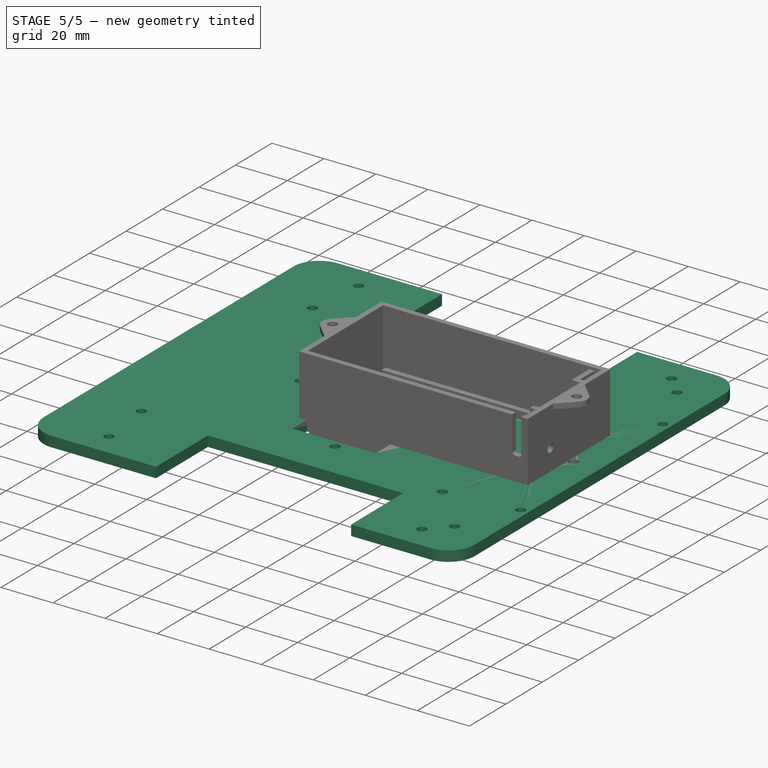
[diagram: stage 5 of 5 — iso view after this stage's code; geometry added in this stage tinted green]
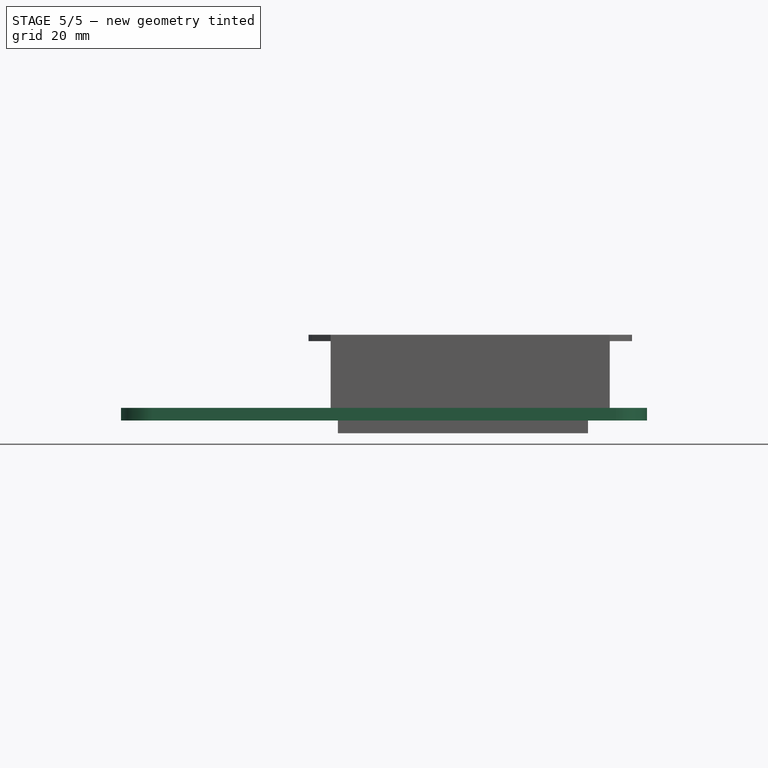
[diagram: stage 5 of 5 — front view after this stage's code; geometry added in this stage tinted green]
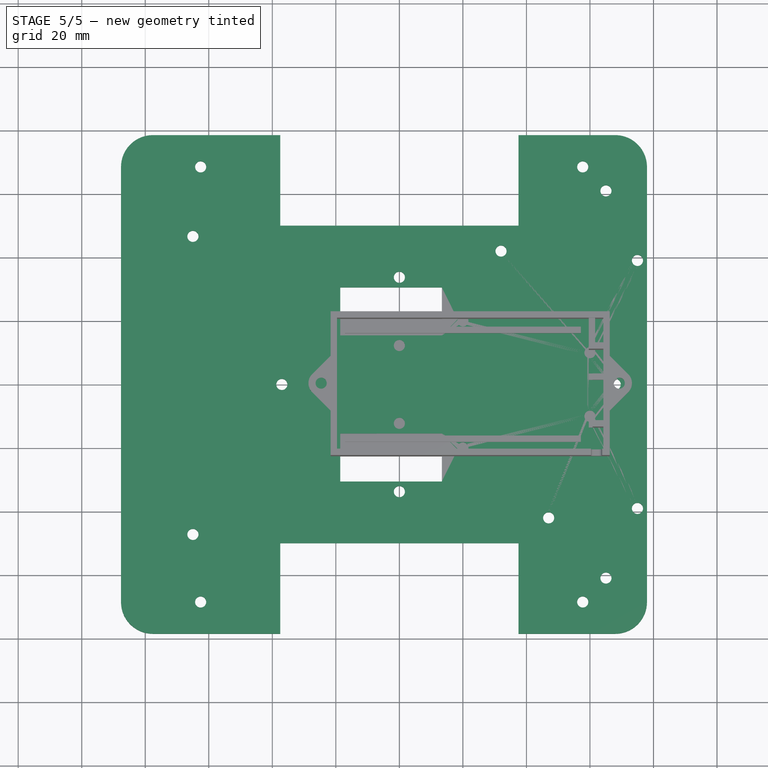
[diagram: stage 5 of 5 — top view after this stage's code; geometry added in this stage tinted green]
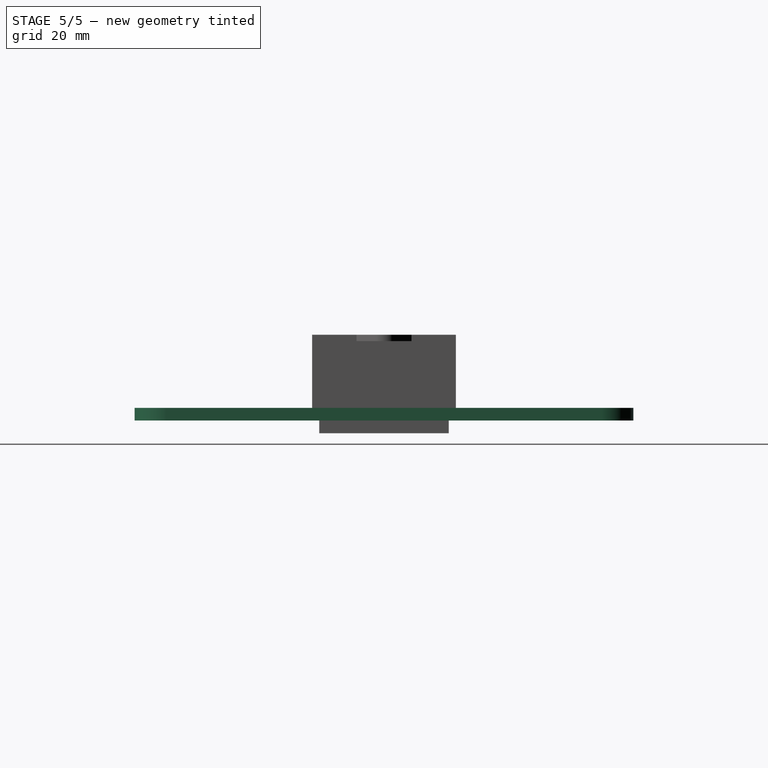
[diagram: stage 5 of 5 — right view after this stage's code; geometry added in this stage tinted green]
FEATURE [PartDesign::SubShapeBinder] Binder016  label="RoueFolleCopieLiee"
  BindCopyOnChange = 0
  BindMode = 0
  ClaimChildren = false
  Context = -> Part002 [Body.Binder016.]
  Fuse = false
  MakeFace = true
  OffsetFill = false
  OffsetIntersection = false
  OffsetJoinType = 0
  OffsetOpenResult = false
  PartialLoad = false
  Relative = true
  Support = -> [Body003[Pad013.Face11]]
  _Version = 2
FEATURE [PartDesign::SubShapeBinder] Binder019  label="CarteElectCopieLiee"
  BindCopyOnChange = 0
  BindMode = 0
  ClaimChildren = false
  Context = -> Part001 [Body010.Binder019.]
  Fuse = false
  MakeFace = true
  OffsetFill = false
  OffsetIntersection = false
  OffsetJoinType = 0
  OffsetOpenResult = false
  PartialLoad = false
  Relative = true
  Support = -> [Body008[Pad029.Face8]]
  _Version = 2
FEATURE [Sketcher::SketchObject] Sketch049  label="CarteElectSupportBaseEsquisse"
  ExternalGeometry = -> [Binder019]
  FullyConstrained = true
  MapMode = 5
  Placement = pos=(0,0,14) rot=(1,0,0;3.14159rad)
  Support = -> [Binder019]
  expr: Constraints[3] = <<dimensions>>.carteElectVisDiametre + <<dimensions>>.plastiqueEpaisseur * 2
  sketch-geometry (6):
    g0: Circle CenterX=-57 CenterY=-7.1e-15 CenterZ=0 NormalX=0 NormalY=0 NormalZ=1 AngleXU=0 Radius=1.75
    g1: Circle CenterX=-57 CenterY=-7.1e-15 CenterZ=0 NormalX=0 NormalY=0 NormalZ=1 AngleXU=0 Radius=3.75
    g2: LineSegment StartX=-57 StartY=-7.1e-15 StartZ=0 EndX=12 EndY=-7.1e-15 EndZ=0
    g3: LineSegment StartX=12 StartY=-42 StartZ=0 EndX=12 EndY=-7.1e-15 EndZ=0
    g4: LineSegment StartX=27 StartY=42 StartZ=0 EndX=-57 EndY=42 EndZ=0
    g5: LineSegment StartX=-57 StartY=42 StartZ=0 EndX=-57 EndY=-7.1e-15 EndZ=0
  constraints (18):
    c: Coincident(g-3,g0)
    c: Equal(g0,g-3)
    c: Coincident(g0,g1)
    c: Diameter(g1) = 7.5
    c: Coincident(g2,g0)
    c: Horizontal(g2)
    c: Coincident(g3,g-4)
    c: Coincident(g3,g2)
    c: Vertical(g3)
    c: Coincident(g4,g-5)
    c: Horizontal(g4)
    c: Coincident(g5,g4)
    c: Coincident(g5,g0)
    c: Vertical(g5)
    c: DistanceX(g2,g2) = -69  'carteElectSupport2x'
    c: DistanceY(g3,g3) = -42  'carteElectSupport2y'
    c: DistanceY(g5,g5) = -42  'carteElectSupport3y'
    c: DistanceX(g4,g4) = -84  'carteElectSupport3x'
FEATURE [PartDesign::Pad] Pad034  label="CarteElectSupportBase"
  Direction = (0,0,-1)
  Length = 10
  Length2 = 10
  Profile = -> Sketch049
  ReferenceAxis = -> Sketch049 [N_Axis]
  Type = 0
  expr: Length = <<dimensions>>.carteElectSupportVisHauteur
FEATURE [PartDesign::Body] Body010  label="CarteElectSupport1"
  Group = -> [Binder019,Sketch049,Pad034]
  Origin = -> Origin012
  Tip = -> Pad034
FEATURE [PartDesign::FeatureBase] Clone  label="CarteElectSupport2Clone"
  BaseFeature = -> Body010
FEATURE [PartDesign::Body] Body011  label="CarteElectSupport2"
  BaseFeature = -> Body010
  Group = -> [Clone]
  Origin = -> Origin013
  Placement = pos=(69,42,0) rot=(0,0,1;0rad)
  Tip = -> Clone
  expr: .Placement.Base.x = -<<CarteElectSupportBaseEsquisse>>.Constraints.carteElectSupport2x
  expr: .Placement.Base.y = -<<CarteElectSupportBaseEsquisse>>.Constraints.carteElectSupport2y
FEATURE [PartDesign::FeatureBase] Clone001  label="CarteElectSupport3Clone"
  BaseFeature = -> Body010
FEATURE [PartDesign::Body] Body012  label="CarteElectSupport3"
  BaseFeature = -> Body010
  Group = -> [Clone001]
  Origin = -> Origin014
  Placement = pos=(84,-42,0) rot=(0,0,1;0rad)
  Tip = -> Clone001
  expr: .Placement.Base.x = -<<CarteElectSupportBaseEsquisse>>.Constraints.carteElectSupport3x
  expr: .Placement.Base.y = Sketch049.Constraints.carteElectSupport3y
FEATURE [PartDesign::SubShapeBinder] Binder  label="BoitierBatterieCopieLiee"
  BindCopyOnChange = 0
  BindMode = 0
  ClaimChildren = false
  Context = -> Part001 [Body009.Binder.]
  Fuse = false
  MakeFace = true
  OffsetFill = false
  OffsetIntersection = false
  OffsetJoinType = 0
  OffsetOpenResult = false
  PartialLoad = false
  Relative = true
  _Version = 2
FEATURE [Sketcher::SketchObject] Sketch043  label="BaseRoulantePlaqueBaseEsquisse"
  ExternalGeometry = -> [Binder008,Binder012,Binder011,Binder014,Binder013,Binder009,Binder010,Binder]
  FullyConstrained = true
  MapMode = 5
  Support = -> [XY_Plane010]
  expr: Constraints[109] = <<dimensions>>.roueBaseDistance
  expr: Constraints[150] = <<dimensions>>.capteurUltrasonSupportVisDiametre
  expr: Constraints[151] = <<dimensions>>.capteurUltrasonSupportMatLargeur
  expr: Constraints[157] = <<dimensions>>.baseRoulanteCongeeDiametre
  expr: Constraints[21] = <<dimensions>>.marge
  expr: Constraints[27] = <<dimensions>>.marge
  expr: Constraints[31] = <<dimensions>>.marge
  sketch-geometry (72):
    g0: Circle CenterX=45.04 CenterY=60.96 CenterZ=0 NormalX=0 NormalY=0 NormalZ=1 AngleXU=0 Radius=1.75
    g1: Circle CenterX=54.96 CenterY=39.04 CenterZ=0 NormalX=0 NormalY=0 NormalZ=1 AngleXU=0 Radius=1.75
    g2: Circle CenterX=27 CenterY=-42 CenterZ=0 NormalX=0 NormalY=0 NormalZ=1 AngleXU=0 Radius=1.75
    g3: Circle CenterX=12 CenterY=42 CenterZ=0 NormalX=0 NormalY=0 NormalZ=1 AngleXU=0 Radius=1.75
    g4: Circle CenterX=-57 CenterY=-9.8e-15 CenterZ=0 NormalX=0 NormalY=0 NormalZ=1 AngleXU=0 Radius=1.75
    g5: Circle CenterX=-20 CenterY=-33.75 CenterZ=0 NormalX=0 NormalY=0 NormalZ=1 AngleXU=0 Radius=1.75
    g6: Circle CenterX=-20 CenterY=-12.25 CenterZ=0 NormalX=0 NormalY=0 NormalZ=1 AngleXU=0 Radius=1.75
    g7: Circle CenterX=-20 CenterY=12.25 CenterZ=0 NormalX=0 NormalY=0 NormalZ=1 AngleXU=0 Radius=1.75
    g8: Circle CenterX=-20 CenterY=33.75 CenterZ=0 NormalX=0 NormalY=0 NormalZ=1 AngleXU=0 Radius=1.75
    g9: Circle CenterX=54.96 CenterY=-39.04 CenterZ=0 NormalX=0 NormalY=0 NormalZ=1 AngleXU=0 Radius=1.75
    g10: Circle CenterX=45.04 CenterY=-60.96 CenterZ=0 NormalX=0 NormalY=0 NormalZ=1 AngleXU=0 Radius=1.75
    g11: LineSegment StartX=-38.61 StartY=30.55 StartZ=0 EndX=-6.625 EndY=30.55 EndZ=0
    g12: LineSegment StartX=-6.625 StartY=30.55 StartZ=0 EndX=-6.625 EndY=15.45 EndZ=0
    g13: LineSegment StartX=-6.625 StartY=15.45 StartZ=0 EndX=-38.61 EndY=15.45 EndZ=0
    g14: LineSegment StartX=-38.61 StartY=15.45 StartZ=0 EndX=-38.61 EndY=30.55 EndZ=0
    g15: LineSegment StartX=-38.11 StartY=29.125 StartZ=0 EndX=-38.61 EndY=29.125 EndZ=0
    g16: LineSegment StartX=-7.125 StartY=24.05 StartZ=0 EndX=-6.625 EndY=24.05 EndZ=0
    g17: LineSegment StartX=-38.61 StartY=-15.45 StartZ=0 EndX=-6.625 EndY=-15.45 EndZ=0
    g18: LineSegment StartX=-6.625 StartY=-15.45 StartZ=0 EndX=-6.625 EndY=-30.55 EndZ=0
    g19: LineSegment StartX=-6.625 StartY=-30.55 StartZ=0 EndX=-38.61 EndY=-30.55 EndZ=0
    g20: LineSegment StartX=-38.61 StartY=-30.55 StartZ=0 EndX=-38.61 EndY=-15.45 EndZ=0
    g21: LineSegment StartX=-7.125 StartY=-24.05 StartZ=0 EndX=-6.625 EndY=-24.05 EndZ=0
    g22: LineSegment StartX=-23.11 StartY=-15.95 StartZ=0 EndX=-23.11 EndY=-15.45 EndZ=0
    g23: LineSegment StartX=-38.11 StartY=-16.875 StartZ=0 EndX=-38.61 EndY=-16.875 EndZ=0
    g24: LineSegment StartX=-35 StartY=49.5 StartZ=0 EndX=-35 EndY=50 EndZ=0
    g25: LineSegment StartX=-35 StartY=-49.5 StartZ=0 EndX=-35 EndY=-50 EndZ=0
    g26: LineSegment StartX=-23.11 StartY=30.05 StartZ=0 EndX=-23.11 EndY=30.55 EndZ=0
    g27: LineSegment StartX=-23.11 StartY=15.95 StartZ=0 EndX=-23.11 EndY=15.45 EndZ=0
    g28: LineSegment StartX=-23.11 StartY=-30.55 StartZ=0 EndX=-23.11 EndY=-30.05 EndZ=0
    g29: LineSegment StartX=17.5 StartY=50 StartZ=0 EndX=17.5 EndY=78.5 EndZ=0
    g30: LineSegment StartX=13.5 StartY=78.5 StartZ=0 EndX=17.5 EndY=78.5 EndZ=0
    g31: LineSegment StartX=17.5 StartY=50 StartZ=0 EndX=-57.5 EndY=50 EndZ=0
    g32: LineSegment StartX=-57.5 StartY=50 StartZ=0 EndX=-57.5 EndY=78.5 EndZ=0
    g33: LineSegment StartX=-57.5 StartY=78.5 StartZ=0 EndX=-53.5 EndY=78.5 EndZ=0
    g34: LineSegment StartX=-57.5 StartY=-50 StartZ=0 EndX=17.5 EndY=-50 EndZ=0
    g35: LineSegment StartX=-57.5 StartY=-50 StartZ=0 EndX=-57.5 EndY=-78.5 EndZ=0
    g36: LineSegment StartX=17.5 StartY=-50 StartZ=0 EndX=17.5 EndY=-78.5 EndZ=0
    g37: LineSegment StartX=13.5 StartY=-78.5 StartZ=0 EndX=17.5 EndY=-78.5 EndZ=0
    g38: LineSegment StartX=-57.5 StartY=-78.5 StartZ=0 EndX=-53.5 EndY=-78.5 EndZ=0
    g39: LineSegment StartX=17.5 StartY=78.5 StartZ=0 EndX=37.725 EndY=78.5 EndZ=0
    g40: LineSegment StartX=37.725 StartY=78.5 StartZ=0 EndX=37.725 EndY=68.5 EndZ=0
    g41: Circle CenterX=37.725 CenterY=68.5 CenterZ=0 NormalX=0 NormalY=0 NormalZ=1 AngleXU=0 Radius=1.75
    g42: LineSegment StartX=57.95 StartY=9.2008e-08 StartZ=0 EndX=57.95 EndY=68.5 EndZ=0
    g43: LineSegment StartX=57.95 StartY=9.2008e-08 StartZ=0 EndX=47.95 EndY=9.2008e-08 EndZ=0
    g44: Circle CenterX=47.95 CenterY=9.2008e-08 CenterZ=0 NormalX=0 NormalY=0 NormalZ=1 AngleXU=0 Radius=1.75
    g45: LineSegment StartX=57.95 StartY=-78.5 StartZ=0 EndX=37.725 EndY=-78.5 EndZ=0
    g46: LineSegment StartX=37.725 StartY=-78.5 StartZ=0 EndX=17.5 EndY=-78.5 EndZ=0
    g47: LineSegment StartX=37.725 StartY=-78.5 StartZ=0 EndX=37.725 EndY=-68.5 EndZ=0
    g48: Circle CenterX=37.725 CenterY=-68.5 CenterZ=0 NormalX=0 NormalY=0 NormalZ=1 AngleXU=0 Radius=1.75
    g49: LineSegment StartX=-107.625 StartY=-78.5 StartZ=0 EndX=-82.5625 EndY=-78.5 EndZ=0
    g50: LineSegment StartX=-82.5625 StartY=-78.5 StartZ=0 EndX=-57.5 EndY=-78.5 EndZ=0
    g51: LineSegment StartX=-82.5625 StartY=-78.5 StartZ=0 EndX=-82.5625 EndY=-68.5 EndZ=0
    g52: Circle CenterX=-82.5625 CenterY=-68.5 CenterZ=0 NormalX=0 NormalY=0 NormalZ=1 AngleXU=0 Radius=1.75
    g53: LineSegment StartX=-57.5 StartY=78.5 StartZ=0 EndX=-82.5625 EndY=78.5 EndZ=0
    g54: LineSegment StartX=-82.5625 StartY=78.5 StartZ=0 EndX=-107.625 EndY=78.5 EndZ=0
    g55: LineSegment StartX=-82.5625 StartY=78.5 StartZ=0 EndX=-82.5625 EndY=68.5 EndZ=0
    g56: Circle CenterX=-82.5625 CenterY=68.5 CenterZ=0 NormalX=0 NormalY=0 NormalZ=1 AngleXU=0 Radius=1.75
    g57: ArcOfCircle CenterX=47.95 CenterY=68.5 CenterZ=0 NormalX=0 NormalY=0 NormalZ=1 AngleXU=0 Radius=10 StartAngle=5e-16 EndAngle=1.5708
    g58: LineSegment StartX=37.725 StartY=78.5 StartZ=0 EndX=57.95 EndY=78.5 EndZ=0
    g59: LineSegment StartX=37.725 StartY=78.5 StartZ=0 EndX=47.95 EndY=78.5 EndZ=0
    g60: LineSegment StartX=57.95 StartY=68.5 StartZ=0 EndX=57.95 EndY=78.5 EndZ=0
    g61: ArcOfCircle CenterX=47.95 CenterY=-68.5 CenterZ=0 NormalX=0 NormalY=0 NormalZ=1 AngleXU=0 Radius=10 StartAngle=4.71239 EndAngle=6.28319
    g62: LineSegment StartX=47.95 StartY=-78.5 StartZ=0 EndX=37.725 EndY=-78.5 EndZ=0
    g63: LineSegment StartX=57.95 StartY=-78.5 StartZ=0 EndX=57.95 EndY=-68.5 EndZ=0
    g64: LineSegment StartX=57.95 StartY=-68.5 StartZ=0 EndX=57.95 EndY=9.2008e-08 EndZ=0
    g65: LineSegment StartX=-107.625 StartY=78.5 StartZ=0 EndX=-107.625 EndY=68.5 EndZ=0
    g66: ArcOfCircle CenterX=-97.625 CenterY=68.5 CenterZ=0 NormalX=0 NormalY=0 NormalZ=1 AngleXU=0 Radius=10 StartAngle=1.5708 EndAngle=3.14159
    g67: LineSegment StartX=-97.625 StartY=78.5 StartZ=0 EndX=-82.5625 EndY=78.5 EndZ=0
    g68: LineSegment StartX=-107.625 StartY=68.5 StartZ=0 EndX=-107.625 EndY=-68.5 EndZ=0
    g69: LineSegment StartX=-107.625 StartY=-68.5 StartZ=0 EndX=-107.625 EndY=-78.5 EndZ=0
    g70: ArcOfCircle CenterX=-97.625 CenterY=-68.5 CenterZ=0 NormalX=0 NormalY=0 NormalZ=1 AngleXU=0 Radius=10 StartAngle=3.14159 EndAngle=4.71239
    g71: LineSegment StartX=-97.625 StartY=-78.5 StartZ=0 EndX=-82.5625 EndY=-78.5 EndZ=0
  constraints (191):
    c: Coincident(g11,g12)
    c: Coincident(g12,g13)
    c: Coincident(g13,g14)
    c: Coincident(g14,g11)
    c: Horizontal(g11)
    c: Horizontal(g13)
    c: Vertical(g12)
    c: Vertical(g14)
    c: PointOnObject(g15,g14)
    c: Horizontal(g15)
    c: PointOnObject(g16,g12)
    c: Horizontal(g16)
    c: Coincident(g17,g18)
    c: Coincident(g18,g19)
    c: Coincident(g19,g20)
    c: Coincident(g20,g17)
    c: Horizontal(g17)
    c: Horizontal(g19)
    c: Vertical(g18)
    c: Vertical(g20)
    c: Equal(g15,g16)
    c: DistanceX(g15,g15) = 0.5
    c: PointOnObject(g21,g18)
    c: Horizontal(g21)
    c: PointOnObject(g22,g17)
    c: Vertical(g22)
    c: Equal(g22,g21)
    c: DistanceX(g23,g23) = 0.5
    c: Vertical(g24)
    c: Vertical(g25)
    c: Equal(g25,g24)
    c: DistanceY(g24,g24) = 0.5
    c: Equal(g-9,g10)
    c: Equal(g9,g-8)
    c: Equal(g-6,g0)
    c: Equal(g1,g-7)
    c: Coincident(g1,g-7)
    c: Coincident(g0,g-6)
    c: Coincident(g9,g-8)
    c: Coincident(g10,g-9)
    c: Coincident(g4,g-5)
    c: Equal(g-5,g4)
    c: Coincident(g5,g-97)
    c: Equal(g-97,g5)
    c: Coincident(g6,g-89)
    c: Equal(g-89,g6)
    c: Coincident(g7,g-70)
    c: Equal(g-70,g7)
    c: Coincident(g8,g-99)
    c: Equal(g-99,g8)
    c: Coincident(g2,g-4)
    c: Equal(g-4,g2)
    c: Coincident(g3,g-3)
    c: Equal(g-3,g3)
    c: Coincident(g21,g-93)
    c: Coincident(g25,g-61)
    c: Coincident(g24,g-60)
    c: Coincident(g-80,g16)
    c: Coincident(g15,g-68)
    c: Coincident(g26,g-78)
    c: PointOnObject(g26,g11)
    c: Vertical(g26)
    c: Equal(g26,g15)
    c: Coincident(g27,g-74)
    c: PointOnObject(g27,g13)
    c: Vertical(g27)
    c: Equal(g27,g15)
    c: Equal(g22,g23)
    c: Coincident(g-88,g22)
    c: PointOnObject(g28,g19)
    c: Coincident(g28,g-91)
    c: Vertical(g28)
    c: Equal(g28,g23)
    c: Coincident(g23,g-64)
    c: PointOnObject(g23,g20)
    c: Horizontal(g23)
    c: Vertical(g29)
    c: Coincident(g39,g29)
    c: Coincident(g31,g29)
    c: Coincident(g30,g-52)
    c: Coincident(g30,g29)
    c: Horizontal(g30)
    c: Horizontal(g31)
    c: PointOnObject(g24,g31)
    c: Coincident(g32,g31)
    c: Vertical(g32)
    c: Coincident(g33,g32)
    c: Coincident(g33,g-52)
    c: Horizontal(g33)
    c: Coincident(g32,g53)
    c: Coincident(g65,g54)
    c: Equal(g33,g30)
    c: Horizontal(g34)
    c: PointOnObject(g25,g34)
    c: Coincident(g50,g35)
    c: Coincident(g36,g34)
    c: Vertical(g36)
    c: Coincident(g46,g36)
    c: Coincident(g45,g63)
    c: Coincident(g37,g-56)
    c: Coincident(g37,g36)
    c: Coincident(g38,g35)
    c: Coincident(g38,g-55)
    c: Vertical(g35)
    c: Horizontal(g38)
    c: Horizontal(g37)
    c: Equal(g37,g38)
    c: Equal(g38,g30)
    c: Coincident(g69,g49)
    c: DistanceX(g30,g30) = 4
    c: Coincident(g34,g35)
    c: Horizontal(g39)
    c: Coincident(g40,g39)
    c: Vertical(g40)
    c: Coincident(g41,g40)
    c: Coincident(g64,g42)
    c: Vertical(g42)
    c: PointOnObject(g-26,g42)
    c: Coincident(g43,g64)
    c: Horizontal(g43)
    c: Coincident(g44,g43)
    c: Coincident(g45,g46)
    c: Horizontal(g45)
    c: Horizontal(g46)
    c: Equal(g45,g46)
    c: Coincident(g47,g45)
    c: Coincident(g48,g47)
    c: Vertical(g47)
    c: Coincident(g49,g50)
    c: Horizontal(g49)
    c: Horizontal(g50)
    c: Equal(g50,g49)
    c: Coincident(g51,g49)
    c: Coincident(g52,g51)
    c: Vertical(g51)
    c: Coincident(g53,g54)
    c: Horizontal(g53)
    c: Horizontal(g54)
    c: Equal(g53,g54)
    c: Coincident(g55,g53)
    c: Vertical(g55)
    c: Coincident(g56,g55)
    c: Equal(g55,g40)
    c: Equal(g40,g43)
    c: Equal(g43,g47)
    c: Equal(g47,g51)
    c: Equal(g52,g56)
    c: Equal(g56,g41)
    c: Equal(g41,g44)
    c: Equal(g44,g48)
    c: Diameter(g44) = 3.5
    c: DistanceX(g43,g43) = 10
    c: Tangent(g42,g57) = -1.5708
    c: Coincident(g58,g39)
    c: Coincident(g59,g39)
    c: Horizontal(g59)
    c: Tangent(g59,g57) = 1.5708
    c: Diameter(g57) = 20
    c: Horizontal(g58)
    c: Coincident(g60,g42)
    c: Coincident(g60,g58)
    c: Vertical(g60)
    c: Equal(g58,g39)
    c: Tangent(g61,g45) = 1.5708
    c: Equal(g61,g57)
    c: Coincident(g62,g61)
    c: Coincident(g62,g46)
    c: Coincident(g63,g64)
    c: Vertical(g64)
    c: Coincident(g63,g61)
    c: Tangent(g61,g64)
    c: Vertical(g63)
    c: Equal(g42,g64)
    c: Coincident(g65,g68)
    c: Vertical(g65)
    c: Coincident(g66,g65)
    c: Tangent(g66,g54)
    c: Coincident(g67,g66)
    c: Coincident(g67,g53)
    c: Horizontal(g67)
    c: Equal(g66,g57)
    c: Coincident(g68,g69)
    c: Vertical(g68)
    c: PointOnObject(g-118,g68)
    c: Tangent(g66,g68)
    c: Tangent(g66,g69)
    c: Equal(g70,g66)
    c: Tangent(g70,g68) = -1.5708
    c: Tangent(g70,g49) = -1.5708
    c: Coincident(g71,g70)
    c: Coincident(g71,g50)
FEATURE [PartDesign::Pad] Pad030  label="BaseRoulantePlaqueBase"
  Direction = (0,0,1)
  Length = 4
  Length2 = 10
  Profile = -> Sketch043
  ReferenceAxis = -> Sketch043 [N_Axis]
  Type = 0
  expr: Length = <<dimensions>>.baseRoulanteEpaisseur
FEATURE [PartDesign::SubShapeBinder] Binder020  label="Moteur1AxeCopieLiee"
  BindCopyOnChange = 0
  BindMode = 0
  ClaimChildren = false
  Context = -> Part001 [Body009.Binder020.]
  Fuse = false
  MakeFace = true
  OffsetFill = false
  OffsetIntersection = false
  OffsetJoinType = 0
  OffsetOpenResult = false
  PartialLoad = false
  Relative = true
  Support = -> [Body002[Pad015.Face10,Pad015.Face11]]
  _Version = 2
FEATURE [PartDesign::SubShapeBinder] Binder021  label="Moteur2AxeCopieLiee"
  BindCopyOnChange = 0
  BindMode = 0
  ClaimChildren = false
  Context = -> Part001 [Body009.Binder021.]
  Fuse = false
  MakeFace = true
  OffsetFill = false
  OffsetIntersection = false
  OffsetJoinType = 0
  OffsetOpenResult = false
  PartialLoad = false
  Relative = true
  Support = -> [Part__Mirroring[Face10,Face11]]
  _Version = 2
FEATURE [PartDesign::SubShapeBinder] Binder022  label="CapteurUltrasonCopieLiee"
  BindCopyOnChange = 0
  BindMode = 0
  ClaimChildren = false
  Context = -> Part001 [Body013.Binder022.]
  Fuse = false
  MakeFace = true
  OffsetFill = false
  OffsetIntersection = false
  OffsetJoinType = 0
  OffsetOpenResult = false
  PartialLoad = false
  Relative = true
  Support = -> [Body005[Pad021.Face4]]
  _Version = 2
FEATURE [Sketcher::SketchObject] Sketch056  label="CapteurUltrasonSupportMatEsquisse"
  ExternalGeometry = -> [Binder022]
  FullyConstrained = true
  MapMode = 5
  Placement = pos=(0,0,0) rot=(0.57735,0.57735,0.57735;2.0944rad)
  Support = -> [YZ_Plane015]
  expr: Constraints[46] = <<dimensions>>.capteurUltrasonSupportPetitMatLargeur
  expr: Constraints[50] = <<dimensions>>.capteurUltrasonSupportMatLargeur
  expr: Constraints[59] = <<dimensions>>.capteurUltrasonSupportMatLongueur
  sketch-geometry (23):
    g0: Circle CenterX=-18.75 CenterY=60.75 CenterZ=0 NormalX=0 NormalY=0 NormalZ=1 AngleXU=0 Radius=1.05
    g1: Circle CenterX=-18.75 CenterY=45.25 CenterZ=0 NormalX=0 NormalY=0 NormalZ=1 AngleXU=0 Radius=1.05
    g2: Circle CenterX=18.75 CenterY=45.25 CenterZ=0 NormalX=0 NormalY=0 NormalZ=1 AngleXU=0 Radius=1.05
    g3: Circle CenterX=18.75 CenterY=60.75 CenterZ=0 NormalX=0 NormalY=0 NormalZ=1 AngleXU=0 Radius=1.05
    g4: LineSegment StartX=-21.25 StartY=67 StartZ=0 EndX=-16.25 EndY=67 EndZ=0
    g5: LineSegment StartX=-16.25 StartY=67 StartZ=0 EndX=-16.25 EndY=39 EndZ=0
    g6: LineSegment StartX=-21.25 StartY=34 StartZ=0 EndX=-21.25 EndY=67 EndZ=0
    g7: LineSegment StartX=16.25 StartY=67 StartZ=0 EndX=21.25 EndY=67 EndZ=0
    g8: LineSegment StartX=21.25 StartY=67 StartZ=0 EndX=21.25 EndY=34 EndZ=0
    g9: LineSegment StartX=16.25 StartY=39 StartZ=0 EndX=16.25 EndY=67 EndZ=0
    g10: LineSegment StartX=-16.25 StartY=39 StartZ=0 EndX=16.25 EndY=39 EndZ=0
    g11: LineSegment StartX=-21.25 StartY=34 StartZ=0 EndX=-5 EndY=34 EndZ=0
    g12: LineSegment StartX=-5 StartY=34 StartZ=0 EndX=-5 EndY=4 EndZ=0
    g13: LineSegment StartX=5 StartY=4 StartZ=0 EndX=-5 EndY=4 EndZ=0
    g14: LineSegment StartX=21.25 StartY=34 StartZ=0 EndX=5 EndY=34 EndZ=0
    g15: LineSegment StartX=5 StartY=4 StartZ=0 EndX=5 EndY=34 EndZ=0
    g16: LineSegment StartX=18.75 StartY=60.75 StartZ=0 EndX=16.25 EndY=67 EndZ=0
    g17: LineSegment StartX=18.75 StartY=60.75 StartZ=0 EndX=21.25 EndY=67 EndZ=0
    g18: LineSegment StartX=-21.25 StartY=67 StartZ=0 EndX=-18.75 EndY=60.75 EndZ=0
    g19: LineSegment StartX=-18.75 StartY=60.75 StartZ=0 EndX=-16.25 EndY=67 EndZ=0
    g20: LineSegment StartX=-5 StartY=34 StartZ=0 EndX=-5 EndY=39 EndZ=0
    g21: LineSegment StartX=-5 StartY=39 StartZ=0 EndX=-5 EndY=44 EndZ=0
    g22: LineSegment StartX=-20 StartY=62 StartZ=0 EndX=-20 EndY=67 EndZ=0
  constraints (61):
    c: Coincident(g0,g-3)
    c: Coincident(g1,g-4)
    c: Coincident(g2,g-5)
    c: Coincident(g3,g-6)
    c: Equal(g3,g-6)
    c: Equal(g-3,g0)
    c: Equal(g-4,g1)
    c: Equal(g-5,g2)
    c: Coincident(g4,g5)
    c: Coincident(g6,g4)
    c: Horizontal(g4)
    c: Vertical(g5)
    c: Vertical(g6)
    c: Coincident(g7,g8)
    c: Coincident(g9,g7)
    c: Horizontal(g7)
    c: Vertical(g8)
    c: Vertical(g9)
    c: Equal(g4,g7)
    c: Equal(g5,g9)
    c: Coincident(g10,g5)
    c: Coincident(g10,g9)
    c: Horizontal(g10)
    c: Coincident(g11,g6)
    c: Horizontal(g11)
    c: Coincident(g12,g11)
    c: Vertical(g12)
    c: Coincident(g13,g12)
    c: Coincident(g14,g8)
    c: Horizontal(g14)
    c: Coincident(g15,g13)
    c: Coincident(g15,g14)
    c: Vertical(g15)
    c: Horizontal(g13)
    c: Equal(g6,g8)
    c: Equal(g14,g11)
    c: Coincident(g16,g3)
    c: Coincident(g16,g7)
    c: Coincident(g17,g3)
    c: Coincident(g17,g7)
    c: Equal(g17,g16)
    c: Coincident(g18,g4)
    c: Coincident(g18,g0)
    c: Coincident(g19,g0)
    c: Coincident(g19,g4)
    c: Equal(g19,g18)
    c: DistanceX(g4,g4) = 5
    c: Coincident(g20,g11)
    c: PointOnObject(g20,g10)
    c: Vertical(g20)
    c: DistanceX(g13,g13) = 10
    c: Coincident(g21,g20)
    c: PointOnObject(g21,g-9)
    c: Vertical(g21)
    c: Equal(g21,g4)
    c: Coincident(g22,g-11)
    c: PointOnObject(g22,g4)
    c: Vertical(g22)
    c: Equal(g22,g4)
    c: DistanceY(g15,g15) = 30
    c: Equal(g20,g7)
FEATURE [PartDesign::Pad] Pad039  label="CapteurUltrasonSupportMat"
  Direction = (1,-2e-16,3e-16)
  Length = 2
  Length2 = 10
  Placement = pos=(0,0,0) rot=(0.57735,0.57735,0.57735;2.0944rad)
  Profile = -> Sketch056
  ReferenceAxis = -> Sketch056 [N_Axis]
  Type = 0
  expr: Length = <<dimensions>>.plastiqueEpaisseur
FEATURE [Sketcher::SketchObject] Sketch057  label="CapteurUltrasonSupportBaseEsquisse"
  ExternalGeometry = -> [Pad039]
  FullyConstrained = true
  MapMode = 5
  Placement = pos=(2,-4e-16,4e-16) rot=(0.57735,0.57735,0.57735;2.0944rad)
  Support = -> [Pad039]
  expr: Constraints[9] = <<dimensions>>.capteurUltrasonSupportPiedEpaisseur
  sketch-geometry (4):
    g0: LineSegment StartX=-5 StartY=4 StartZ=0 EndX=5 EndY=4 EndZ=0
    g1: LineSegment StartX=5 StartY=4 StartZ=0 EndX=5 EndY=8 EndZ=0
    g2: LineSegment StartX=5 StartY=8 StartZ=0 EndX=-5 EndY=8 EndZ=0
    g3: LineSegment StartX=-5 StartY=8 StartZ=0 EndX=-5 EndY=4 EndZ=0
  constraints (10):
    c: Coincident(g0,g1)
    c: Coincident(g1,g2)
    c: Coincident(g2,g3)
    c: Coincident(g3,g0)
    c: Horizontal(g2)
    c: Vertical(g1)
    c: Vertical(g3)
    c: Coincident(g0,g-3)
    c: Coincident(g0,g-4)
    c: DistanceY(g1,g1) = 4
FEATURE [PartDesign::Pad] Pad040  label="CapteurUltrasonSupportBase"
  BaseFeature = -> Pad039
  Direction = (1,-4e-16,4e-16)
  Length = 10
  Length2 = 10
  Placement = pos=(0,0,0) rot=(0.57735,0.57735,0.57735;2.0944rad)
  Profile = -> Sketch057
  ReferenceAxis = -> Sketch057 [N_Axis]
  Type = 0
  expr: Length = <<dimensions>>.capteurUltrasonSupportMatLargeur
FEATURE [Sketcher::SketchObject] Sketch058  label="CapteurUltrasonSupportBaseVisPercageEsquise"
  ExternalGeometry = -> [Pad040]
  FullyConstrained = true
  MapMode = 5
  Placement = pos=(-3.5e-15,1.8e-15,8) rot=(0,0,-1;1.5708rad)
  Support = -> [Pad040]
  expr: Constraints[7] = <<dimensions>>.capteurUltrasonSupportVisDiametre
  sketch-geometry (4):
    g0: LineSegment StartX=-5 StartY=12 StartZ=0 EndX=5 EndY=2 EndZ=0
    g1: LineSegment StartX=5 StartY=12 StartZ=0 EndX=-5 EndY=2 EndZ=0
    g2: GeomPoint X=1.21e-14 Y=7 Z=0
    g3: Circle CenterX=1.21e-14 CenterY=7 CenterZ=0 NormalX=0 NormalY=0 NormalZ=1 AngleXU=0 Radius=1.75
  constraints (8):
    c: Coincident(g0,g-3)
    c: Coincident(g0,g-4)
    c: Coincident(g1,g-5)
    c: Coincident(g1,g-6)
    c: PointOnObject(g2,g1)
    c: PointOnObject(g2,g0)
    c: Coincident(g3,g2)
    c: Diameter(g3) = 3.5
FEATURE [PartDesign::Pocket] Pocket009  label="CapteurUltrasonSupportBaseVisPercage"
  BaseFeature = -> Pad040
  Direction = (6e-16,-3e-16,-1)
  Length = 5
  Length2 = 5
  Placement = pos=(0,0,0) rot=(0.57735,0.57735,0.57735;2.0944rad)
  Profile = -> Sketch058
  ReferenceAxis = -> Sketch058 [N_Axis]
  Type = 1
FEATURE [PartDesign::Body] Body013  label="CapteurUltrasonSupport"
  Group = -> [Binder022,Sketch056,Pad039,Sketch057,Pad040,Sketch058,Pocket009]
  Origin = -> Origin015
  Placement = pos=(41,0,0) rot=(0,0,1;0rad)
  Tip = -> Pocket009
FEATURE [Sketcher::SketchObject] Sketch063  label="BaseRoulanteCouvercleBatterieVisPercageEsquisse"
  ExternalGeometry = -> [Binder]
  FullyConstrained = true
  MapMode = 5
  Placement = pos=(0,0,0) rot=(1,0,0;3.14159rad)
  expr: Constraints[2] = Spreadsheet.couvercleVisPercageDiametre
  sketch-geometry (2):
    g0: Circle CenterX=-85 CenterY=47.225 CenterZ=0 NormalX=0 NormalY=0 NormalZ=1 AngleXU=0 Radius=1.75
    g1: Circle CenterX=-85 CenterY=-46.625 CenterZ=0 NormalX=0 NormalY=0 NormalZ=1 AngleXU=0 Radius=1.75
  constraints (4):
    c: Coincident(g0,g-3)
    c: Coincident(g1,g-4)
    c: Diameter(g0) = 3.5
    c: Equal(g0,g1)
FEATURE [PartDesign::Pocket] Pocket011  label="BaseRoulanteCouvercleBatterieVisPercage"
  BaseFeature = -> Pad030
  Direction = (0,0,1)
  Length = 5
  Length2 = 5
  Profile = -> Sketch063
  ReferenceAxis = -> Sketch063 [N_Axis]
  Type = 2
FEATURE [Sketcher::SketchObject] Sketch067  label="CapteurIrSupportMatEsquisse"
  ExternalGeometry = -> [Pad046]
  FullyConstrained = true
  MapMode = 5
  Placement = pos=(0,-1.4e-15,-6.5) rot=(1,0,0;3.14159rad)
  Support = -> [Pad046]
  expr: Constraints[8] = <<dimensions>>.capteurIrSupportMatLargeur
  sketch-geometry (6):
    g0: LineSegment StartX=-5 StartY=2 StartZ=0 EndX=5 EndY=2 EndZ=0
    g1: LineSegment StartX=5 StartY=2 StartZ=0 EndX=5 EndY=0 EndZ=0
    g2: LineSegment StartX=5 StartY=0 StartZ=0 EndX=-5 EndY=0 EndZ=0
    g3: LineSegment StartX=-5 StartY=0 StartZ=0 EndX=-5 EndY=2 EndZ=0
    g4: LineSegment StartX=-18.7 StartY=2 StartZ=0 EndX=-5 EndY=2 EndZ=0
    g5: LineSegment StartX=5 StartY=2 StartZ=0 EndX=18.7 EndY=2 EndZ=0
  constraints (16):
    c: Coincident(g0,g1)
    c: Coincident(g1,g2)
    c: Coincident(g2,g3)
    c: Coincident(g3,g0)
    c: Horizontal(g0)
    c: Horizontal(g2)
    c: Vertical(g1)
    c: Vertical(g3)
    c: DistanceX(g0,g0) = 10
    c: Coincident(g4,g-3)
    c: Coincident(g4,g0)
    c: Coincident(g5,g0)
    c: Coincident(g5,g-3)
    c: Equal(g4,g5)
    c: Horizontal(g4)
    c: PointOnObject(g1,g-4)
FEATURE [PartDesign::Pad] Pad047  label="CapteurIrSupportMat"
  BaseFeature = -> Pad046
  Direction = (0,2e-16,-1)
  Length = 10
  Length2 = 10
  Placement = pos=(0,0,0) rot=(1,0,0;1.5708rad)
  Profile = -> Sketch067
  ReferenceAxis = -> Sketch067 [N_Axis]
  Type = 0
  expr: Length = <<dimensions>>.capteurIrSupportMatLongueur
FEATURE [Sketcher::SketchObject] Sketch068  label="CapteurIrSupportBaseEsquisse"
  ExternalGeometry = -> [Pad047]
  FullyConstrained = true
  MapMode = 5
  Placement = pos=(0,-2,4e-16) rot=(1,0,0;1.5708rad)
  Support = -> [Pad047]
  expr: Constraints[9] = <<dimensions>>.capteurIrSupportPiedEpaisseur
  sketch-geometry (4):
    g0: LineSegment StartX=-5 StartY=-12.5 StartZ=0 EndX=5 EndY=-12.5 EndZ=0
    g1: LineSegment StartX=5 StartY=-12.5 StartZ=0 EndX=5 EndY=-16.5 EndZ=0
    g2: LineSegment StartX=5 StartY=-16.5 StartZ=0 EndX=-5 EndY=-16.5 EndZ=0
    g3: LineSegment StartX=-5 StartY=-16.5 StartZ=0 EndX=-5 EndY=-12.5 EndZ=0
  constraints (10):
    c: Coincident(g0,g1)
    c: Coincident(g1,g2)
    c: Coincident(g2,g3)
    c: Coincident(g3,g0)
    c: Horizontal(g0)
    c: Vertical(g1)
    c: Vertical(g3)
    c: Coincident(g2,g-4)
    c: Coincident(g1,g-3)
    c: DistanceY(g1,g1) = 4
FEATURE [PartDesign::Pad] Pad048  label="CapteurIrSupportBase"
  BaseFeature = -> Pad047
  Direction = (0,-1,-2e-16)
  Length = 10
  Length2 = 10
  Placement = pos=(0,0,0) rot=(1,0,0;1.5708rad)
  Profile = -> Sketch068
  ReferenceAxis = -> Sketch068 [N_Axis]
  Type = 0
  expr: Length = <<dimensions>>.capteurIrSupportMatLargeur
FEATURE [Sketcher::SketchObject] Sketch069  label="CapteurIrSupportBasePercageEsquisse"
  ExternalGeometry = -> [Pad048]
  FullyConstrained = true
  MapMode = 5
  Placement = pos=(0,-2.8e-15,-12.5) rot=(0,0,1;3.14159rad)
  Support = -> [Pad048]
  expr: Constraints[7] = <<dimensions>>.capteurIrSupportVisDiametre
  sketch-geometry (4):
    g0: LineSegment StartX=-5 StartY=12 StartZ=0 EndX=5 EndY=2 EndZ=0
    g1: LineSegment StartX=5 StartY=12 StartZ=0 EndX=-5 EndY=2 EndZ=0
    g2: GeomPoint X=4.6256e-11 Y=7 Z=0
    g3: Circle CenterX=4.6256e-11 CenterY=7 CenterZ=0 NormalX=0 NormalY=0 NormalZ=1 AngleXU=0 Radius=1.75
  constraints (8):
    c: Coincident(g0,g-3)
    c: Coincident(g0,g-4)
    c: Coincident(g1,g-5)
    c: Coincident(g1,g-6)
    c: PointOnObject(g2,g0)
    c: PointOnObject(g2,g1)
    c: Coincident(g3,g2)
    c: Diameter(g3) = 3.5
FEATURE [PartDesign::Pocket] Pocket012  label="CapteurIrSupportBasePercage"
  BaseFeature = -> Pad048
  Direction = (0,2e-16,-1)
  Length = 5
  Length2 = 5
  Placement = pos=(0,0,0) rot=(1,0,0;1.5708rad)
  Profile = -> Sketch069
  ReferenceAxis = -> Sketch069 [N_Axis]
  Type = 1
FEATURE [PartDesign::Body] Body017  label="RoueFolle2Support"
  Group = -> [Sketch072,Pad050,Sketch073,Pad051,Sketch074,Pad052,Sketch075,Pocket013]
  Origin = -> Origin022
  Placement = pos=(40,0,-2) rot=(0,0,1;0rad)
  Tip = -> Pocket013
FEATURE [PartDesign::SubShapeBinder] Binder026  label="RoueFolle2SupportPercageCopieLiee2"
  BindCopyOnChange = 0
  BindMode = 0
  ClaimChildren = false
  Context = -> Part004 [Body009.Binder026.]
  Fuse = false
  MakeFace = true
  OffsetFill = false
  OffsetIntersection = false
  OffsetJoinType = 0
  OffsetOpenResult = false
  PartialLoad = false
  Relative = true
  Support = -> [Part003[Body017.Pocket013.Face14,Body017.Pocket013.Face13]]
  _Version = 2
FEATURE [PartDesign::SubShapeBinder] Binder027  label="RoueFolle2SupportPercageCopieLiee"
  BindCopyOnChange = 0
  BindMode = 0
  ClaimChildren = false
  Context = -> Part004 [Body009.Binder027.]
  Fuse = false
  MakeFace = true
  OffsetFill = false
  OffsetIntersection = false
  OffsetJoinType = 0
  OffsetOpenResult = false
  PartialLoad = false
  Relative = true
  Support = -> [Part003[Body017.Pocket013.Face16,Body017.Pocket013.Face17]]
  _Version = 2
FEATURE [Sketcher::SketchObject] Sketch076  label="BaseRoulanteRoueFolleSupportPercageEsquisse"
  ExternalGeometry = -> [Binder027]
  FullyConstrained = true
  MapMode = 5
  Placement = pos=(0,0,0) rot=(1,0,0;3.14159rad)
  Support = -> [Pocket011]
  sketch-geometry (2):
    g0: Circle CenterX=40 CenterY=10 CenterZ=0 NormalX=0 NormalY=0 NormalZ=1 AngleXU=0 Radius=1.75
    g1: Circle CenterX=40 CenterY=-10 CenterZ=0 NormalX=0 NormalY=0 NormalZ=1 AngleXU=0 Radius=1.75
  constraints (4):
    c: Equal(g-3,g0)
    c: Equal(g-4,g1)
    c: Coincident(g-3,g0)
    c: Coincident(g1,g-4)
FEATURE [PartDesign::Pocket] Pocket014  label="BaseRoulanteRoueFolleSupportPercage"
  BaseFeature = -> Pocket011
  Direction = (0,0,1)
  Length = 5
  Length2 = 5
  Profile = -> Sketch076
  ReferenceAxis = -> Sketch076 [N_Axis]
  Type = 2
FEATURE [PartDesign::SubShapeBinder] Binder029  label="MoteurRoueSupport1VisPercageCopieLiee"
  BindCopyOnChange = 0
  BindMode = 0
  ClaimChildren = false
  Context = -> Part004 [Body009.Binder029.]
  Fuse = false
  MakeFace = true
  OffsetFill = false
  OffsetIntersection = false
  OffsetJoinType = 0
  OffsetOpenResult = false
  PartialLoad = false
  Relative = true
  Support = -> [Part003[Body018.Pocket015.Face16,Body018.Pocket015.Face15]]
  _Version = 2
FEATURE [PartDesign::SubShapeBinder] Binder030  label="MoteurRoueSupport2VisPercageCopieLiee"
  BindCopyOnChange = 0
  BindMode = 0
  ClaimChildren = false
  Context = -> Part004 [Body009.Binder030.]
  Fuse = false
  MakeFace = true
  OffsetFill = false
  OffsetIntersection = false
  OffsetJoinType = 0
  OffsetOpenResult = false
  PartialLoad = false
  Relative = true
  Support = -> [Part003[Part__Mirroring003.Face16,Part__Mirroring003.Face15]]
  _Version = 2
FEATURE [Sketcher::SketchObject] Sketch081  label="BaseRoulanteMoteurRoueSupportVisPercageEsquisse"
  ExternalGeometry = -> [Binder030,Pocket014]
  FullyConstrained = true
  MapMode = 5
  Placement = pos=(0,0,0) rot=(1,0,0;3.14159rad)
  Support = -> [Pocket014]
  expr: Constraints[0] = Spreadsheet001.moteurSupportVisDistance
  expr: Constraints[13] = <<dimensions>>.moteurSupportVisDiametre
  sketch-geometry (6):
    g0: Circle CenterX=2.487e-13 CenterY=20 CenterZ=0 NormalX=0 NormalY=0 NormalZ=1 AngleXU=0 Radius=1.75
    g1: Circle CenterX=2.487e-13 CenterY=-20 CenterZ=0 NormalX=0 NormalY=0 NormalZ=1 AngleXU=0 Radius=1.75
    g2: LineSegment StartX=6.5 StartY=27 StartZ=0 EndX=2.487e-13 EndY=20 EndZ=0
    g3: LineSegment StartX=2.487e-13 StartY=20 StartZ=0 EndX=-6.5 EndY=27 EndZ=0
    g4: LineSegment StartX=-6.5 StartY=-27 StartZ=0 EndX=2.487e-13 EndY=-20 EndZ=0
    g5: LineSegment StartX=2.487e-13 StartY=-20 StartZ=0 EndX=6.5 EndY=-27 EndZ=0
  constraints (14):
    c: DistanceY(g1,g0) = 40
    c: Coincident(g2,g-7)
    c: Coincident(g2,g0)
    c: Coincident(g3,g-7)
    c: Coincident(g3,g0)
    c: Coincident(g4,g-4)
    c: Coincident(g4,g1)
    c: Coincident(g5,g1)
    c: Coincident(g5,g-4)
    c: Equal(g2,g3)
    c: Equal(g3,g4)
    c: Equal(g4,g5)
    c: Equal(g0,g1)
    c: Diameter(g0) = 3.5
FEATURE [PartDesign::Pocket] Pocket016  label="BaseRoulanteMoteurRoueSupportVisPercage"
  BaseFeature = -> Pocket014
  Direction = (0,0,1)
  Length = 5
  Length2 = 5
  Profile = -> Sketch081
  ReferenceAxis = -> Sketch081 [N_Axis]
  Type = 2
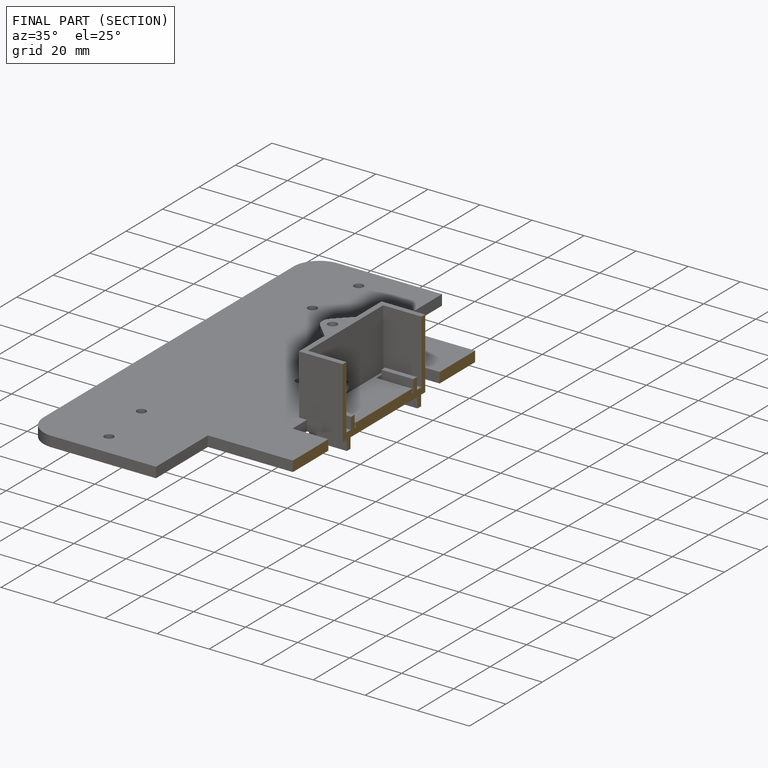
[diagram: finished part — half-section view (interior)]
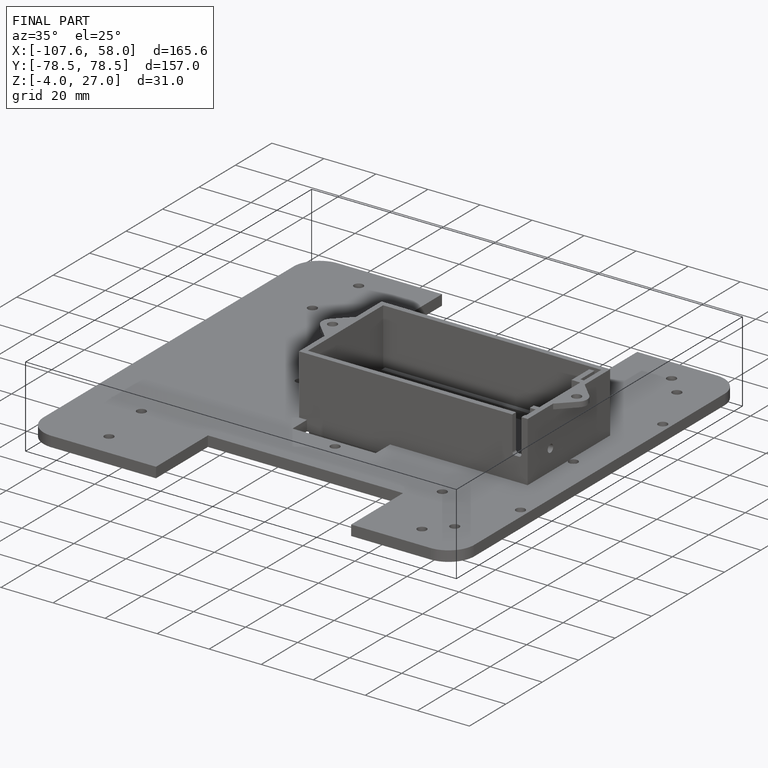
[diagram: finished part — iso view with bounding-box wireframe]
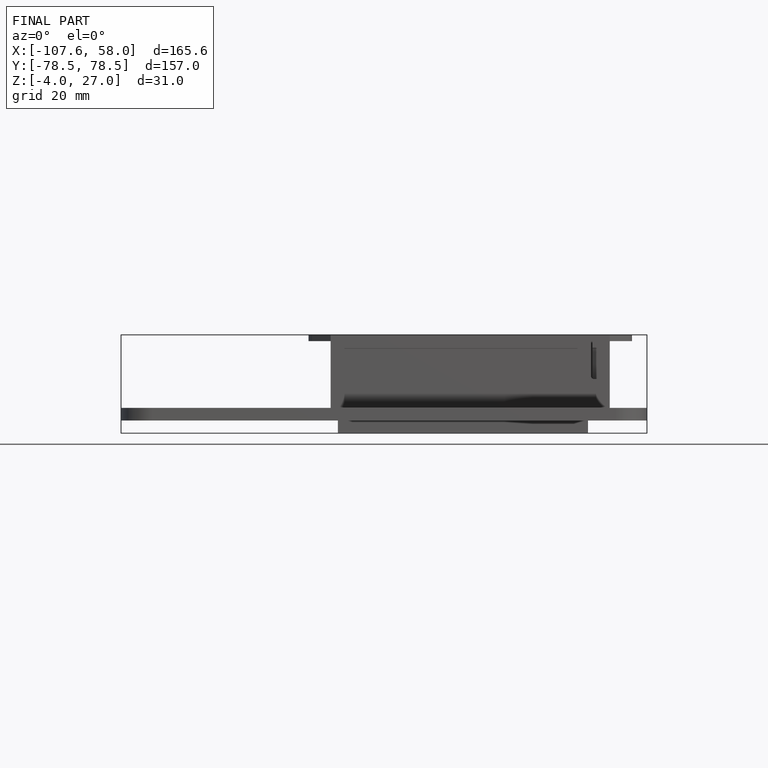
[diagram: finished part — front view with bounding-box wireframe]
